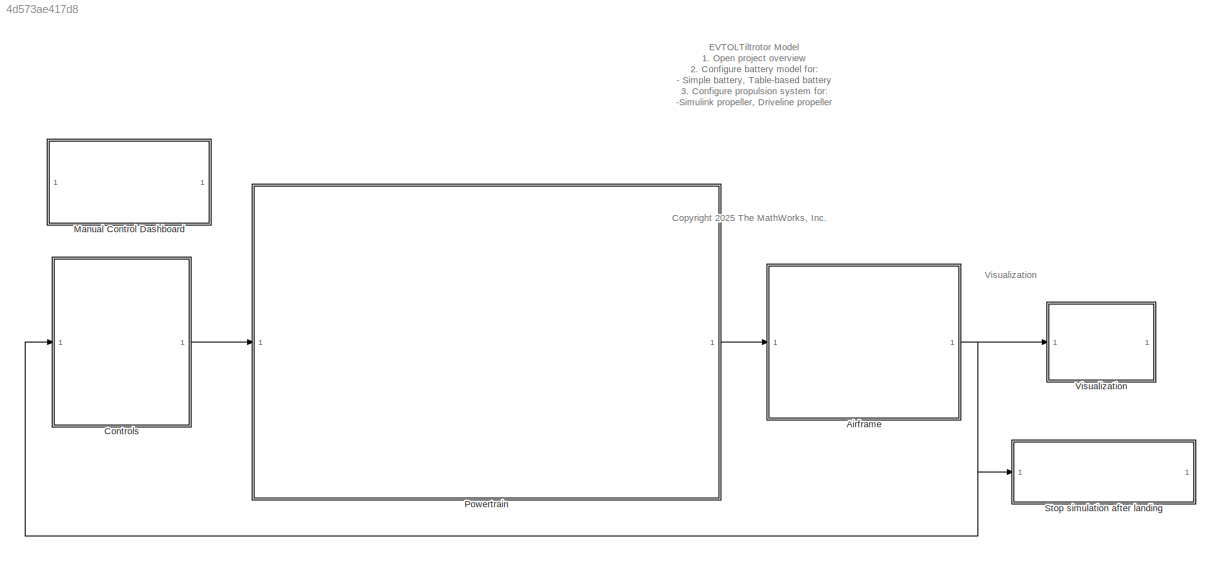
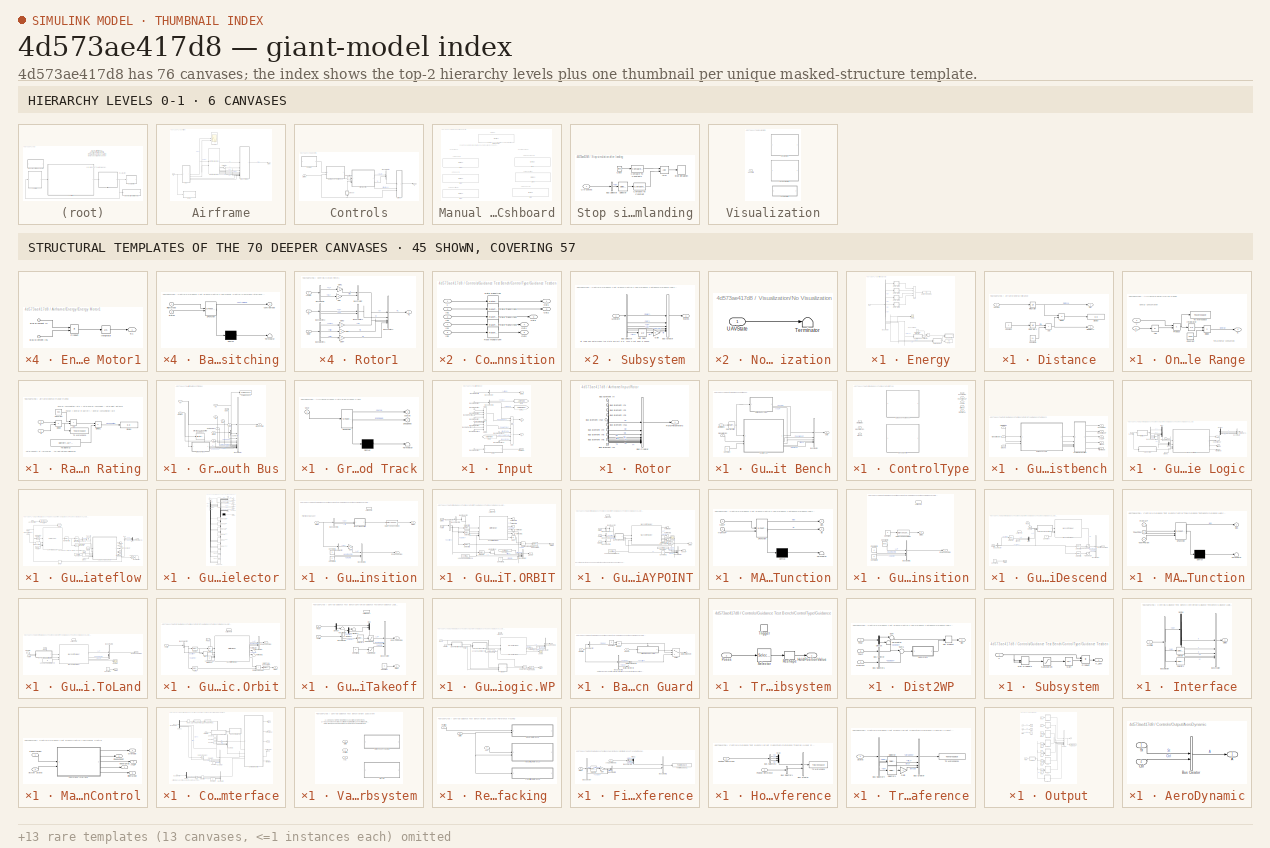
[diagram: thumbnail index - top-2 hierarchy levels (6 canvases) + 45 structural-template representatives of the remaining 70 canvases]
MODEL slx_4d573ae417d8
KIND model
CONFIG AbsTol = auto
CONFIG EnableMultiTasking = on
CONFIG FixedStep = 0.02
CONFIG MaxStep = auto
CONFIG MinStep = auto
CONFIG RelTol = 1e-3
CONFIG SampleTimeConstraint = Unconstrained
CONFIG SolverName = FixedStepAuto
CONFIG StartTime = 0.0
CONFIG StopTime = 200
BLOCK [SubSystem] Airframe
BLOCK [Reference] Airframe/6DOF (Euler Angles)  REF=shared6dof/6DOF (Euler Angles)
  LibrarySourceBlock = aerolib6dof2/6DOF (Euler Angles)
  SourceBlock = shared6dof/6DOF (Euler Angles)
  SourceType = 6DOF EoM (Body Axis)
BLOCK [SubSystem] Airframe/Energy
BLOCK [Sum] Airframe/Energy/Add
  IconShape = rectangular
  Inputs = ++++
BLOCK [Sum] Airframe/Energy/Add1
  IconShape = rectangular
BLOCK [BusSelector] Airframe/Energy/Bus Selector
  OutputSignals = R1.Info,R2.Info,R3.Info,R4.Info,A.AirData.airspeed,Batt.Current,Batt.Volt
BLOCK [SubSystem] Airframe/Energy/Distance
BLOCK [Sum] Airframe/Energy/Distance/Add
  IconShape = rectangular
BLOCK [Constant] Airframe/Energy/Distance/Constant
BLOCK [Constant] Airframe/Energy/Distance/Constant1
  Value = 0.1
BLOCK [Display] Airframe/Energy/Distance/Display
  Decimation = 1
BLOCK [Outport] Airframe/Energy/Distance/Dist
BLOCK [Product] Airframe/Energy/Distance/Divide
  Inputs = */
BLOCK [Integrator] Airframe/Energy/Distance/Integrator
BLOCK [Integrator] Airframe/Energy/Distance/Integrator1
BLOCK [Outport] Airframe/Energy/Distance/SimTime(s)
  Port = 2
BLOCK [Inport] Airframe/Energy/Distance/VehSpd
BLOCK [Display] Airframe/Energy/Energy
  Decimation = 1
BLOCK [Display] Airframe/Energy/Energy Consumed
  Decimation = 1
BLOCK [SubSystem] Airframe/Energy/Energy Motor1
BLOCK [Inport] Airframe/Energy/Energy Motor1/Bus Element In
BLOCK [Inport] Airframe/Energy/Energy Motor1/Bus Element In1
BLOCK [Outport] Airframe/Energy/Energy Motor1/E1
BLOCK [Integrator] Airframe/Energy/Energy Motor1/Integrator
BLOCK [Product] Airframe/Energy/Energy Motor1/Product
BLOCK [SubSystem] Airframe/Energy/Energy Motor2
BLOCK [Inport] Airframe/Energy/Energy Motor2/Bus Element In
BLOCK [Inport] Airframe/Energy/Energy Motor2/Bus Element In1
BLOCK [Outport] Airframe/Energy/Energy Motor2/E2
BLOCK [Integrator] Airframe/Energy/Energy Motor2/Integrator
BLOCK [Product] Airframe/Energy/Energy Motor2/Product
BLOCK [SubSystem] Airframe/Energy/Energy Motor3
BLOCK [Inport] Airframe/Energy/Energy Motor3/Bus Element In
BLOCK [Inport] Airframe/Energy/Energy Motor3/Bus Element In1
BLOCK [Outport] Airframe/Energy/Energy Motor3/E3
BLOCK [Integrator] Airframe/Energy/Energy Motor3/Integrator
BLOCK [Product] Airframe/Energy/Energy Motor3/Product
BLOCK [SubSystem] Airframe/Energy/Energy Motor4
BLOCK [Inport] Airframe/Energy/Energy Motor4/Bus Element In
BLOCK [Inport] Airframe/Energy/Energy Motor4/Bus Element In1
BLOCK [Outport] Airframe/Energy/Energy Motor4/E4
BLOCK [Integrator] Airframe/Energy/Energy Motor4/Integrator
BLOCK [Product] Airframe/Energy/Energy Motor4/Product
BLOCK [SubSystem] Airframe/Energy/Online Range
BLOCK [Abs] Airframe/Energy/Online Range/Abs
  SaturateOnIntegerOverflow = off
BLOCK [Constant] Airframe/Energy/Online Range/Constant
  Value = 3600
BLOCK [Product] Airframe/Energy/Online Range/Divide
  Inputs = */
BLOCK [Outport] Airframe/Energy/Online Range/E
BLOCK [Inport] Airframe/Energy/Online Range/I
BLOCK [Integrator] Airframe/Energy/Online Range/Integrator
BLOCK [Product] Airframe/Energy/Online Range/Product
BLOCK [ToWorkspace] Airframe/Energy/Online Range/To Workspace
  FixptAsFi = on
  MaxDataPoints = inf
  SampleTime = -1
  SaveFormat = Timeseries
  VariableName = elecPower
BLOCK [Inport] Airframe/Energy/Online Range/V
  Port = 2
BLOCK [SubSystem] Airframe/Energy/Range Rating
BLOCK [Sum] Airframe/Energy/Range Rating/Add
  IconShape = rectangular
BLOCK [Constant] Airframe/Energy/Range Rating/Constant
  Value = eps
BLOCK [Display] Airframe/Energy/Range Rating/Display
  Decimation = 1
BLOCK [Product] Airframe/Energy/Range Rating/Divide
  Inputs = */
BLOCK [Product] Airframe/Energy/Range Rating/Divide1
  Inputs = /*
BLOCK [Inport] Airframe/Energy/Range Rating/E
  Port = 2
BLOCK [ToWorkspace] Airframe/Energy/Range Rating/To Workspace
  FixptAsFi = on
  MaxDataPoints = inf
  SampleTime = -1
  SaveFormat = Timeseries
  VariableName = EnergyMileage
BLOCK [Constant] Airframe/Energy/Range Rating/TotalEnergy
  Value = battery.AH*battery.Np
BLOCK [Inport] Airframe/Energy/Range Rating/d
BLOCK [Scope] Airframe/Energy/Scope
  Floating = off
  NumInputPorts = 2
  ScopeSpecificationString = Simulink.scopes.TimeScopeBlockCfg('CurrentConfiguration', extmgr.ConfigurationSet(extmgr.Configuration('Core','General UI',true),extmgr.Configuration('Core','Source UI',true),extmgr.Configuration('Sources','WiredSimulink',true,'DataLoggingVariableName','ScopeData2'),extmgr.Configuration('Visuals','Time Domain',true,'SerializedDisplays',{struct('MinYLimReal','-388.82399','MaxYLimReal','1399.01759',...<+2279ch>
BLOCK [Terminator] Airframe/Energy/Terminator
BLOCK [Constant] Airframe/Energy/Zero division protection
  Value = 0.01
BLOCK [Inport] Airframe/Energy/s
BLOCK [SubSystem] Airframe/Ground Truth Bus
BLOCK [Inport] Airframe/Ground Truth Bus/Abb
  Port = 7
BLOCK [Inport] Airframe/Ground Truth Bus/Abe
  Port = 8
BLOCK [Inport] Airframe/Ground Truth Bus/AirData
  Port = 10
BLOCK [BusCreator] Airframe/Ground Truth Bus/Bus Creator
  DisplayOption = bar
  InheritFromInputs = on
  Inputs = 13
BLOCK [BusSelector] Airframe/Ground Truth Bus/Bus Selector
  OutputSignals = airspeed
BLOCK [Inport] Airframe/Ground Truth Bus/DCMbe
  Port = 4
BLOCK [Reference] Airframe/Ground Truth Bus/Direction Cosine Matrix to Quaternions  REF=sharedtransform/Direction Cosine Matrix 
to Quaternions
  LibrarySourceBlock = aerolibtransform2/Direction Cosine Matrix \nto Quaternions
  SourceBlock = sharedtransform/Direction Cosine Matrix \nto Quaternions
  SourceType = DCM2Quaternion
BLOCK [Inport] Airframe/Ground Truth Bus/Euler
  Port = 3
BLOCK [SubSystem] Airframe/Ground Truth Bus/Ground Track
  ErrorFcn = Stateflow.Translate.translate
  PermitHierarchicalResolution = ExplicitOnly
  SFBlockType = MATLAB Function
  TreatAsAtomicUnit = on
BLOCK [Demux] Airframe/Ground Truth Bus/Ground Track/ Demux 
  Outputs = 1
BLOCK [S-Function] Airframe/Ground Truth Bus/Ground Track/ SFunction 
  EnableBusSupport = on
  FunctionName = sf_sfun
  PortCounts = [1 3]
  SFcnIsStateOwnerBlock = off
  SFunctionDeploymentMode = off
  Tag = Stateflow S-Function 1
BLOCK [Terminator] Airframe/Ground Truth Bus/Ground Track/ Terminator 
BLOCK [Outport] Airframe/Ground Truth Bus/Ground Track/course
BLOCK [Outport] Airframe/Ground Truth Bus/Ground Track/gndSpeed
  Port = 2
BLOCK [Inport] Airframe/Ground Truth Bus/Ground Track/vxyz
BLOCK [Outport] Airframe/Ground Truth Bus/Ground Truth
BLOCK [Inport] Airframe/Ground Truth Bus/RotorParams
  Port = 9
BLOCK [ToWorkspace] Airframe/Ground Truth Bus/To Workspace
  FixptAsFi = on
  MaxDataPoints = inf
  SampleTime = -1
  SaveFormat = Timeseries
  VariableName = PositionPlotData
BLOCK [Inport] Airframe/Ground Truth Bus/Vb
  Port = 5
BLOCK [Inport] Airframe/Ground Truth Bus/Ve
BLOCK [Inport] Airframe/Ground Truth Bus/Xe
  Port = 2
BLOCK [Inport] Airframe/Ground Truth Bus/pqr
  Port = 6
BLOCK [SubSystem] Airframe/Input
BLOCK [Sum] Airframe/Input/Add
  IconShape = rectangular
  Inputs = ++++
BLOCK [Sum] Airframe/Input/Add1
  IconShape = rectangular
BLOCK [Sum] Airframe/Input/Add2
  IconShape = rectangular
  Inputs = ++++
BLOCK [Sum] Airframe/Input/Add3
  IconShape = rectangular
  Inputs = ++++
BLOCK [Outport] Airframe/Input/AirData
  Port = 4
BLOCK [Inport] Airframe/Input/Bus Element In
BLOCK [Inport] Airframe/Input/Bus Element In1
BLOCK [Inport] Airframe/Input/Bus Element In10
BLOCK [Inport] Airframe/Input/Bus Element In11
BLOCK [Inport] Airframe/Input/Bus Element In12
BLOCK [Inport] Airframe/Input/Bus Element In13
BLOCK [Inport] Airframe/Input/Bus Element In2
BLOCK [Inport] Airframe/Input/Bus Element In4
BLOCK [Inport] Airframe/Input/Bus Element In5
BLOCK [Inport] Airframe/Input/Bus Element In6
BLOCK [Inport] Airframe/Input/Bus Element In7
BLOCK [Inport] Airframe/Input/Bus Element In8
BLOCK [Inport] Airframe/Input/Bus Element In9
BLOCK [BusSelector] Airframe/Input/Bus Selector
  OutputSignals = AirData
BLOCK [BusSelector] Airframe/Input/Bus Selector1
  OutputSignals = Force,Moment
BLOCK [Outport] Airframe/Input/F
BLOCK [From] Airframe/Input/From
  GotoTag = AeroForce
BLOCK [Goto] Airframe/Input/Goto
  GotoTag = AeroForce
BLOCK [Goto] Airframe/Input/Goto1
  GotoTag = AeroMoment
BLOCK [Outport] Airframe/Input/M
  Port = 2
BLOCK [SubSystem] Airframe/Input/Rotor
BLOCK [BusCreator] Airframe/Input/Rotor/Bus Creator
  DisplayOption = bar
  InheritFromInputs = on
  Inputs = 10
BLOCK [Inport] Airframe/Input/Rotor/Bus Element In
BLOCK [Inport] Airframe/Input/Rotor/Bus Element In1
BLOCK [Inport] Airframe/Input/Rotor/Bus Element In10
BLOCK [Inport] Airframe/Input/Rotor/Bus Element In11
BLOCK [Inport] Airframe/Input/Rotor/Bus Element In2
BLOCK [Inport] Airframe/Input/Rotor/Bus Element In3
BLOCK [Inport] Airframe/Input/Rotor/Bus Element In4
BLOCK [Inport] Airframe/Input/Rotor/Bus Element In5
BLOCK [Inport] Airframe/Input/Rotor/Bus Element In6
BLOCK [Inport] Airframe/Input/Rotor/Bus Element In7
BLOCK [Outport] Airframe/Input/Rotor/RotorParameters
BLOCK [Outport] Airframe/Input/RotorPar
  Port = 3
BLOCK [Inport] Airframe/M
BLOCK [Scope] Airframe/Scope
  Floating = off
  NumInputPorts = 2
  ScopeSpecificationString = Simulink.scopes.TimeScopeBlockCfg('CurrentConfiguration', extmgr.ConfigurationSet(extmgr.Configuration('Core','General UI',true),extmgr.Configuration('Core','Source UI',true),extmgr.Configuration('Sources','WiredSimulink',true,'DataLoggingVariableName','ScopeData1'),extmgr.Configuration('Visuals','Time Domain',true,'SerializedDisplays',{struct('MinYLimReal','-93.58648','MaxYLimReal','195.62422','Y...<+2288ch>
BLOCK [Outport] Airframe/States
BLOCK [Terminator] Airframe/Terminator
BLOCK [SubSystem] Controls
BLOCK [BusCreator] Controls/Bus Creator
  DisplayOption = bar
  InheritFromInputs = on
  Inputs = 2
BLOCK [Constant] Controls/Constant1
BLOCK [SubSystem] Controls/Flight Control
  PortSchema = {"entries":[{"content":{"sides":[{"content":{"connectorIds":["In1","In3","In2"]},"type":"ConnectorPlacement.EquallySpacedRectSide","uuid":"16133643-a271-41ca-af0b-35692e75911e"},{"content":{"connectorIds":["Out1","Out3","Out2"],"side":"RIGHT"},"type":"ConnectorPlacement.EquallySpacedRectSide","uuid":"71f512ce-dc43-4a94-9ca9-7a68bb7e8691"},{"content":{"side":"TOP"},"type":"ConnectorPlacement.Equall...<+248ch>
  ReferencedSubsystem = FlightControl
BLOCK [SubSystem] Controls/Guidance Test Bench
BLOCK [Inport] Controls/Guidance Test Bench/Aircraft States
  Port = 2
BLOCK [BusCreator] Controls/Guidance Test Bench/Bus Creator
  DisplayOption = bar
  InheritFromInputs = on
  Inputs = 5
BLOCK [Outport] Controls/Guidance Test Bench/Cmd
BLOCK [Constant] Controls/Guidance Test Bench/Constant
  Value = 0
BLOCK [SubSystem] Controls/Guidance Test Bench/ControlType
  Variant = on
  VariantControl = Choice
BLOCK [Outport] Controls/Guidance Test Bench/ControlType/AACSP
  Port = 3
BLOCK [Inport] Controls/Guidance Test Bench/ControlType/Aircraft States
BLOCK [Outport] Controls/Guidance Test Bench/ControlType/FixedWingSP
  Port = 2
BLOCK [Outport] Controls/Guidance Test Bench/ControlType/FlightMode
  Port = 5
BLOCK [Inport] Controls/Guidance Test Bench/ControlType/Global Mission
  Port = 2
BLOCK [Inport] Controls/Guidance Test Bench/ControlType/Ground
  Port = 3
BLOCK [SubSystem] Controls/Guidance Test Bench/ControlType/Guidance Testbench
  TreatAsAtomicUnit = on
  VariantControl = TestMode==1
BLOCK [Outport] Controls/Guidance Test Bench/ControlType/Guidance Testbench/AACSP
  Port = 3
BLOCK [Inport] Controls/Guidance Test Bench/ControlType/Guidance Testbench/Aircraft States
  Port = 2
BLOCK [SubSystem] Controls/Guidance Test Bench/ControlType/Guidance Testbench/Control Rate Transition
BLOCK [Inport] Controls/Guidance Test Bench/ControlType/Guidance Testbench/Control Rate Transition/1 
BLOCK [Inport] Controls/Guidance Test Bench/ControlType/Guidance Testbench/Control Rate Transition/In2
  Port = 2
BLOCK [Inport] Controls/Guidance Test Bench/ControlType/Guidance Testbench/Control Rate Transition/In3
  Port = 3
BLOCK [Inport] Controls/Guidance Test Bench/ControlType/Guidance Testbench/Control Rate Transition/In4
  Port = 4
BLOCK [Inport] Controls/Guidance Test Bench/ControlType/Guidance Testbench/Control Rate Transition/In5
  Port = 5
BLOCK [Outport] Controls/Guidance Test Bench/ControlType/Guidance Testbench/Control Rate Transition/Out1
BLOCK [Outport] Controls/Guidance Test Bench/ControlType/Guidance Testbench/Control Rate Transition/Out2
  Port = 2
BLOCK [Outport] Controls/Guidance Test Bench/ControlType/Guidance Testbench/Control Rate Transition/Out3
  Port = 3
BLOCK [Outport] Controls/Guidance Test Bench/ControlType/Guidance Testbench/Control Rate Transition/Out4
  Port = 4
BLOCK [Outport] Controls/Guidance Test Bench/ControlType/Guidance Testbench/Control Rate Transition/Out5
  Port = 5
BLOCK [RateTransition] Controls/Guidance Test Bench/ControlType/Guidance Testbench/Control Rate Transition/Rate Transition
  OutPortSampleTime = ControlSampleTime
BLOCK [RateTransition] Controls/Guidance Test Bench/ControlType/Guidance Testbench/Control Rate Transition/Rate Transition1
  OutPortSampleTime = ControlSampleTime
BLOCK [RateTransition] Controls/Guidance Test Bench/ControlType/Guidance Testbench/Control Rate Transition/Rate Transition2
  OutPortSampleTime = ControlSampleTime
BLOCK [RateTransition] Controls/Guidance Test Bench/ControlType/Guidance Testbench/Control Rate Transition/Rate Transition3
  OutPortSampleTime = ControlSampleTime
BLOCK [RateTransition] Controls/Guidance Test Bench/ControlType/Guidance Testbench/Control Rate Transition/Rate Transition4
  InitialCondition = flightState.Hover
  OutPortSampleTime = ControlSampleTime
BLOCK [Outport] Controls/Guidance Test Bench/ControlType/Guidance Testbench/FixedWingSP
  Port = 2
BLOCK [Outport] Controls/Guidance Test Bench/ControlType/Guidance Testbench/FlightMode
  Port = 5
BLOCK [Inport] Controls/Guidance Test Bench/ControlType/Guidance Testbench/Global Mission
BLOCK [Inport] Controls/Guidance Test Bench/ControlType/Guidance Testbench/Ground
  Port = 3
BLOCK [SubSystem] Controls/Guidance Test Bench/ControlType/Guidance Testbench/Guidance Logic
  VariantControl = guidanceType==1
BLOCK [Outport] Controls/Guidance Test Bench/ControlType/Guidance Testbench/Guidance Logic/AACSP
  Port = 3
BLOCK [Trigonometry] Controls/Guidance Test Bench/ControlType/Guidance Testbench/Guidance Logic/Atan2
  Operator = atan2
BLOCK [BusCreator] Controls/Guidance Test Bench/ControlType/Guidance Testbench/Guidance Logic/Bus Creator
  DisplayOption = bar
  InheritFromInputs = on
  Inputs = 4
BLOCK [BusSelector] Controls/Guidance Test Bench/ControlType/Guidance Testbench/Guidance Logic/Bus Selector1
  NameLocation = top
  OutputSignals = x,y,z,vy,vx
BLOCK [Demux] Controls/Guidance Test Bench/ControlType/Guidance Testbench/Guidance Logic/Demux
BLOCK [Outport] Controls/Guidance Test Bench/ControlType/Guidance Testbench/Guidance Logic/FixedWingSP
  Port = 2
BLOCK [Outport] Controls/Guidance Test Bench/ControlType/Guidance Testbench/Guidance Logic/FlightMode
  Port = 5
BLOCK [Inport] Controls/Guidance Test Bench/ControlType/Guidance Testbench/Guidance Logic/GCSCommands
  Port = 2
BLOCK [Inport] Controls/Guidance Test Bench/ControlType/Guidance Testbench/Guidance Logic/Ground
  Port = 3
BLOCK [SubSystem] Controls/Guidance Test Bench/ControlType/Guidance Testbench/Guidance Logic/Guidance Stateflow
BLOCK [Outport] Controls/Guidance Test Bench/ControlType/Guidance Testbench/Guidance Logic/Guidance Stateflow/AACSP
  Port = 2
BLOCK [BusSelector] Controls/Guidance Test Bench/ControlType/Guidance Testbench/Guidance Logic/Guidance Stateflow/Bus 
  OutputSignals = LAP,YawCmd
BLOCK [BusSelector] Controls/Guidance Test Bench/ControlType/Guidance Testbench/Guidance Logic/Guidance Stateflow/Bus Selector
  OutputSignals = mode
BLOCK [Reference] Controls/Guidance Test Bench/ControlType/Guidance Testbench/Guidance Logic/Guidance Stateflow/Compare To Constant  REF=simulink/Logic and Bit
Operations/Compare
To Constant
  SourceBlock = simulink/Logic and Bit\nOperations/Compare\nTo Constant
  SourceType = Compare To Constant
BLOCK [Constant] Controls/Guidance Test Bench/ControlType/Guidance Testbench/Guidance Logic/Guidance Stateflow/Constant
  Value = FSState
BLOCK [Delay] Controls/Guidance Test Bench/ControlType/Guidance Testbench/Guidance Logic/Guidance Stateflow/Delay
  DelayLength = 1
  InitialCondition = 0
  InputPortMap = u0
BLOCK [Outport] Controls/Guidance Test Bench/ControlType/Guidance Testbench/Guidance Logic/Guidance Stateflow/FixedWingSP
  Port = 3
BLOCK [Outport] Controls/Guidance Test Bench/ControlType/Guidance Testbench/Guidance Logic/Guidance Stateflow/FlightMode
  Port = 5
BLOCK [From] Controls/Guidance Test Bench/ControlType/Guidance Testbench/Guidance Logic/Guidance Stateflow/From
  GotoTag = pose
BLOCK [Inport] Controls/Guidance Test Bench/ControlType/Guidance Testbench/Guidance Logic/Guidance Stateflow/GCSCommands
  Port = 2
BLOCK [Goto] Controls/Guidance Test Bench/ControlType/Guidance Testbench/Guidance Logic/Guidance Stateflow/Goto
  GotoTag = landingState
BLOCK [Goto] Controls/Guidance Test Bench/ControlType/Guidance Testbench/Guidance Logic/Guidance Stateflow/Goto5
  GotoTag = pose
BLOCK [Inport] Controls/Guidance Test Bench/ControlType/Guidance Testbench/Guidance Logic/Guidance Stateflow/Ground
  Port = 5
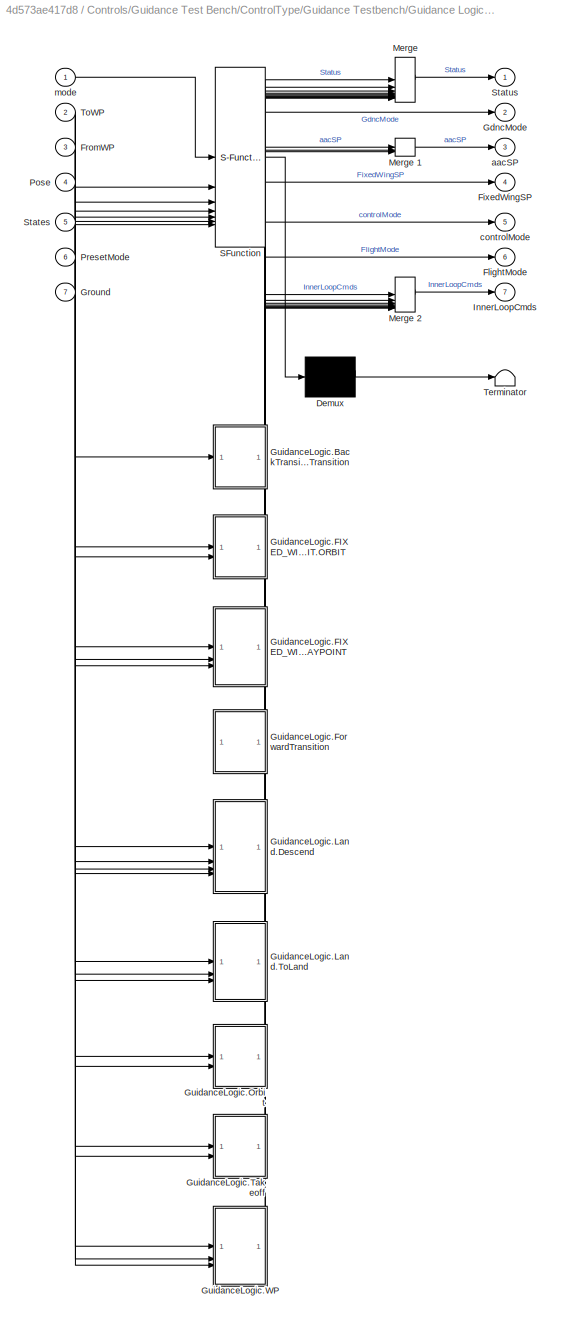
BLOCK [SubSystem] Controls/Guidance Test Bench/ControlType/Guidance Testbench/Guidance Logic/Guidance Stateflow/Guidance Mode Selector
  ErrorFcn = Stateflow.Translate.translate
  PermitHierarchicalResolution = ExplicitOnly
  PortSchema = {"entries":[{"content":{"sides":[{"content":{"connectorIds":["In1","In2","In3","In4","In5","In6","In7"]},"type":"ConnectorPlacement.EquallySpacedRectSide","uuid":"a9cfd0e2-196c-422d-b359-9161a47768c9"},{"content":{"connectorIds":["Out7","Out2","Out3","Out4","Out5","Out6","Out1"],"side":"RIGHT"},"type":"ConnectorPlacement.EquallySpacedRectSide","uuid":"4fed41ae-e7cf-4de3-8bdb-9e24e7d8b079"},{"conte...<+300ch>
  SFBlockType = Chart
  SystemSampleTime = 0.02
  TreatAsAtomicUnit = on
BLOCK [Demux] Controls/Guidance Test Bench/ControlType/Guidance Testbench/Guidance Logic/Guidance Stateflow/Guidance Mode Selector/ Demux 
  Outputs = 1
BLOCK [Merge] Controls/Guidance Test Bench/ControlType/Guidance Testbench/Guidance Logic/Guidance Stateflow/Guidance Mode Selector/ Merge 
  Inputs = 10
BLOCK [Merge] Controls/Guidance Test Bench/ControlType/Guidance Testbench/Guidance Logic/Guidance Stateflow/Guidance Mode Selector/ Merge 1
  Inputs = 3
BLOCK [Merge] Controls/Guidance Test Bench/ControlType/Guidance Testbench/Guidance Logic/Guidance Stateflow/Guidance Mode Selector/ Merge 2
  Inputs = 8
BLOCK [S-Function] Controls/Guidance Test Bench/ControlType/Guidance Testbench/Guidance Logic/Guidance Stateflow/Guidance Mode Selector/ SFunction 
  EnableBusSupport = on
  FunctionName = sf_sfun
  Parameters = Vt,zGround
  PortCounts = [7 8]
  SFcnIsStateOwnerBlock = off
  SFunctionDeploymentMode = off
  Tag = Stateflow S-Function 5
BLOCK [Terminator] Controls/Guidance Test Bench/ControlType/Guidance Testbench/Guidance Logic/Guidance Stateflow/Guidance Mode Selector/ Terminator 
BLOCK [Outport] Controls/Guidance Test Bench/ControlType/Guidance Testbench/Guidance Logic/Guidance Stateflow/Guidance Mode Selector/FixedWingSP
  Port = 4
BLOCK [Outport] Controls/Guidance Test Bench/ControlType/Guidance Testbench/Guidance Logic/Guidance Stateflow/Guidance Mode Selector/FlightMode
  Port = 6
BLOCK [Inport] Controls/Guidance Test Bench/ControlType/Guidance Testbench/Guidance Logic/Guidance Stateflow/Guidance Mode Selector/FromWP
  Port = 3
BLOCK [Outport] Controls/Guidance Test Bench/ControlType/Guidance Testbench/Guidance Logic/Guidance Stateflow/Guidance Mode Selector/GdncMode
  Port = 2
BLOCK [Inport] Controls/Guidance Test Bench/ControlType/Guidance Testbench/Guidance Logic/Guidance Stateflow/Guidance Mode Selector/Ground
  Port = 7
BLOCK [SubSystem] Controls/Guidance Test Bench/ControlType/Guidance Testbench/Guidance Logic/Guidance Stateflow/Guidance Mode Selector/GuidanceLogic.BackTransition.BackTransition
  PreDeleteFcn = Stateflow.SLINSF.SimulinkMan.removePreDeleteFcn
  UndoDeleteFcn = Stateflow.SLINSF.SimulinkMan.restorePreDeleteFcn
BLOCK [ActionPort] Controls/Guidance Test Bench/ControlType/Guidance Testbench/Guidance Logic/Guidance Stateflow/Guidance Mode Selector/GuidanceLogic.BackTransition.BackTransition/Action Port
  CopyFcn = Stateflow.SLINSF.SimulinkMan.removeBlockPreDeleteFcn
  PreDeleteFcn = Stateflow.SLINSF.SimulinkMan.unsafePredeleteFcn
BLOCK [BusCreator] Controls/Guidance Test Bench/ControlType/Guidance Testbench/Guidance Logic/Guidance Stateflow/Guidance Mode Selector/GuidanceLogic.BackTransition.BackTransition/Bus Creator1
  DisplayOption = bar
  InheritFromInputs = on
  Inputs = 3
  NonVirtualBus = on
  OutDataTypeStr = Bus: innerLoopCmdsBus
BLOCK [BusSelector] Controls/Guidance Test Bench/ControlType/Guidance Testbench/Guidance Logic/Guidance Stateflow/Guidance Mode Selector/GuidanceLogic.BackTransition.BackTransition/Bus Selector
  OutputSignals = Xe
BLOCK [BusSelector] Controls/Guidance Test Bench/ControlType/Guidance Testbench/Guidance Logic/Guidance Stateflow/Guidance Mode Selector/GuidanceLogic.BackTransition.BackTransition/Bus Selector1
  OutputSignals = Ve,Tilt
BLOCK [Constant] Controls/Guidance Test Bench/ControlType/Guidance Testbench/Guidance Logic/Guidance Stateflow/Guidance Mode Selector/GuidanceLogic.BackTransition.BackTransition/Constant1
  Value = 0
BLOCK [Constant] Controls/Guidance Test Bench/ControlType/Guidance Testbench/Guidance Logic/Guidance Stateflow/Guidance Mode Selector/GuidanceLogic.BackTransition.BackTransition/Constant2
  Value = 0
BLOCK [DataTypeConversion] Controls/Guidance Test Bench/ControlType/Guidance Testbench/Guidance Logic/Guidance Stateflow/Guidance Mode Selector/GuidanceLogic.BackTransition.BackTransition/Data Type Conversion
  OutDataTypeStr = uint8
  RndMeth = Floor
  SaturateOnIntegerOverflow = off
BLOCK [Gain] Controls/Guidance Test Bench/ControlType/Guidance Testbench/Guidance Logic/Guidance Stateflow/Guidance Mode Selector/GuidanceLogic.BackTransition.BackTransition/Gain
BLOCK [Outport] Controls/Guidance Test Bench/ControlType/Guidance Testbench/Guidance Logic/Guidance Stateflow/Guidance Mode Selector/GuidanceLogic.BackTransition.BackTransition/InnerLoopCmds
  OutDataTypeStr = Bus: innerLoopCmdsBus
  Port = 2
BLOCK [SubSystem] Controls/Guidance Test Bench/ControlType/Guidance Testbench/Guidance Logic/Guidance Stateflow/Guidance Mode Selector/GuidanceLogic.BackTransition.BackTransition/MATLAB Function
  ErrorFcn = Stateflow.Translate.translate
  LibrarySourceBlock = simulink/User-Defined\nFunctions/MATLAB Function
  PermitHierarchicalResolution = ExplicitOnly
  SFBlockType = MATLAB Function
  TreatAsAtomicUnit = on
BLOCK [Demux] Controls/Guidance Test Bench/ControlType/Guidance Testbench/Guidance Logic/Guidance Stateflow/Guidance Mode Selector/GuidanceLogic.BackTransition.BackTransition/MATLAB Function/ Demux 
  Outputs = 1
BLOCK [S-Function] Controls/Guidance Test Bench/ControlType/Guidance Testbench/Guidance Logic/Guidance Stateflow/Guidance Mode Selector/GuidanceLogic.BackTransition.BackTransition/MATLAB Function/ SFunction 
  EnableBusSupport = on
  FunctionName = sf_sfun
  PortCounts = [2 2]
  SFcnIsStateOwnerBlock = off
  SFunctionDeploymentMode = off
  Tag = Stateflow S-Function 7
BLOCK [Terminator] Controls/Guidance Test Bench/ControlType/Guidance Testbench/Guidance Logic/Guidance Stateflow/Guidance Mode Selector/GuidanceLogic.BackTransition.BackTransition/MATLAB Function/ Terminator 
BLOCK [Inport] Controls/Guidance Test Bench/ControlType/Guidance Testbench/Guidance Logic/Guidance Stateflow/Guidance Mode Selector/GuidanceLogic.BackTransition.BackTransition/MATLAB Function/Vb
BLOCK [Outport] Controls/Guidance Test Bench/ControlType/Guidance Testbench/Guidance Logic/Guidance Stateflow/Guidance Mode Selector/GuidanceLogic.BackTransition.BackTransition/MATLAB Function/flag
BLOCK [Inport] Controls/Guidance Test Bench/ControlType/Guidance Testbench/Guidance Logic/Guidance Stateflow/Guidance Mode Selector/GuidanceLogic.BackTransition.BackTransition/MATLAB Function/tilt
  Port = 2
BLOCK [Inport] Controls/Guidance Test Bench/ControlType/Guidance Testbench/Guidance Logic/Guidance Stateflow/Guidance Mode Selector/GuidanceLogic.BackTransition.BackTransition/States
BLOCK [Outport] Controls/Guidance Test Bench/ControlType/Guidance Testbench/Guidance Logic/Guidance Stateflow/Guidance Mode Selector/GuidanceLogic.BackTransition.BackTransition/Status
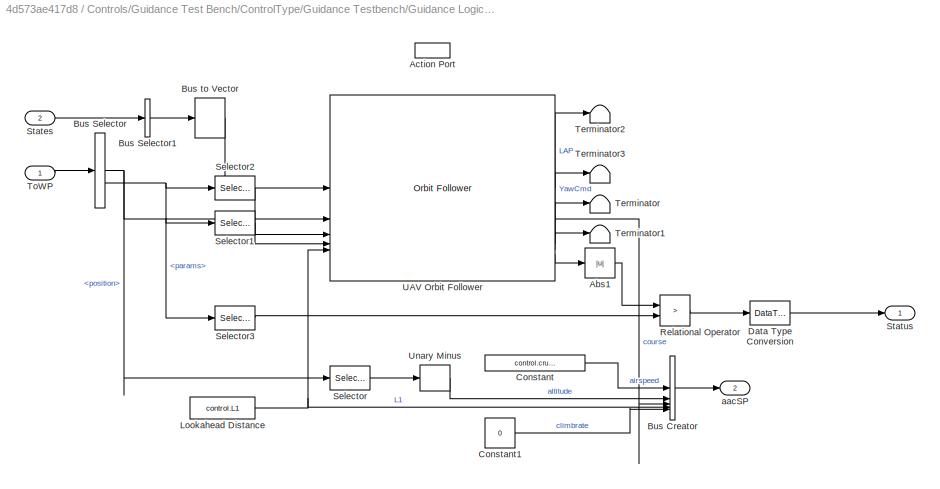
BLOCK [SubSystem] Controls/Guidance Test Bench/ControlType/Guidance Testbench/Guidance Logic/Guidance Stateflow/Guidance Mode Selector/GuidanceLogic.FIXED_WING_ORBIT.ORBIT
  PreDeleteFcn = Stateflow.SLINSF.SimulinkMan.removePreDeleteFcn
  UndoDeleteFcn = Stateflow.SLINSF.SimulinkMan.restorePreDeleteFcn
BLOCK [Abs] Controls/Guidance Test Bench/ControlType/Guidance Testbench/Guidance Logic/Guidance Stateflow/Guidance Mode Selector/GuidanceLogic.FIXED_WING_ORBIT.ORBIT/Abs1
  SaturateOnIntegerOverflow = off
BLOCK [ActionPort] Controls/Guidance Test Bench/ControlType/Guidance Testbench/Guidance Logic/Guidance Stateflow/Guidance Mode Selector/GuidanceLogic.FIXED_WING_ORBIT.ORBIT/Action Port
  CopyFcn = Stateflow.SLINSF.SimulinkMan.removeBlockPreDeleteFcn
  PreDeleteFcn = Stateflow.SLINSF.SimulinkMan.unsafePredeleteFcn
BLOCK [BusCreator] Controls/Guidance Test Bench/ControlType/Guidance Testbench/Guidance Logic/Guidance Stateflow/Guidance Mode Selector/GuidanceLogic.FIXED_WING_ORBIT.ORBIT/Bus Creator
  DisplayOption = bar
  InheritFromInputs = off
  Inputs = 5
  NonVirtualBus = on
  OutDataTypeStr = Bus: AAC
BLOCK [BusSelector] Controls/Guidance Test Bench/ControlType/Guidance Testbench/Guidance Logic/Guidance Stateflow/Guidance Mode Selector/GuidanceLogic.FIXED_WING_ORBIT.ORBIT/Bus Selector
  OutputSignals = position,params
BLOCK [BusSelector] Controls/Guidance Test Bench/ControlType/Guidance Testbench/Guidance Logic/Guidance Stateflow/Guidance Mode Selector/GuidanceLogic.FIXED_WING_ORBIT.ORBIT/Bus Selector1
  OutputAsBus = on
  OutputSignals = Xe,course
BLOCK [BusToVector] Controls/Guidance Test Bench/ControlType/Guidance Testbench/Guidance Logic/Guidance Stateflow/Guidance Mode Selector/GuidanceLogic.FIXED_WING_ORBIT.ORBIT/Bus to Vector
BLOCK [Constant] Controls/Guidance Test Bench/ControlType/Guidance Testbench/Guidance Logic/Guidance Stateflow/Guidance Mode Selector/GuidanceLogic.FIXED_WING_ORBIT.ORBIT/Constant
  Value = control.cruiseSpeed
BLOCK [Constant] Controls/Guidance Test Bench/ControlType/Guidance Testbench/Guidance Logic/Guidance Stateflow/Guidance Mode Selector/GuidanceLogic.FIXED_WING_ORBIT.ORBIT/Constant1
  Value = 0
BLOCK [DataTypeConversion] Controls/Guidance Test Bench/ControlType/Guidance Testbench/Guidance Logic/Guidance Stateflow/Guidance Mode Selector/GuidanceLogic.FIXED_WING_ORBIT.ORBIT/Data Type Conversion
  OutDataTypeStr = uint8
  RndMeth = Floor
  SaturateOnIntegerOverflow = off
BLOCK [Constant] Controls/Guidance Test Bench/ControlType/Guidance Testbench/Guidance Logic/Guidance Stateflow/Guidance Mode Selector/GuidanceLogic.FIXED_WING_ORBIT.ORBIT/Lookahead Distance
  OutDataTypeStr = double
  Value = control.L1
BLOCK [RelationalOperator] Controls/Guidance Test Bench/ControlType/Guidance Testbench/Guidance Logic/Guidance Stateflow/Guidance Mode Selector/GuidanceLogic.FIXED_WING_ORBIT.ORBIT/Relational Operator
  InputSameDT = off
  Operator = >
  OutDataTypeStr = boolean
  RndMeth = Simplest
BLOCK [Selector] Controls/Guidance Test Bench/ControlType/Guidance Testbench/Guidance Logic/Guidance Stateflow/Guidance Mode Selector/GuidanceLogic.FIXED_WING_ORBIT.ORBIT/Selector
  IndexOptions = Index vector (dialog)
  Indices = 3
  InputPortWidth = 3
  OutputSizes = 1
BLOCK [Selector] Controls/Guidance Test Bench/ControlType/Guidance Testbench/Guidance Logic/Guidance Stateflow/Guidance Mode Selector/GuidanceLogic.FIXED_WING_ORBIT.ORBIT/Selector1
  IndexOptions = Index vector (dialog)
  Indices = 2
  InputPortWidth = 4
  OutputSizes = 1
BLOCK [Selector] Controls/Guidance Test Bench/ControlType/Guidance Testbench/Guidance Logic/Guidance Stateflow/Guidance Mode Selector/GuidanceLogic.FIXED_WING_ORBIT.ORBIT/Selector2
  IndexOptions = Index vector (dialog)
  Indices = 1
  InputPortWidth = 4
  OutputSizes = 1
BLOCK [Selector] Controls/Guidance Test Bench/ControlType/Guidance Testbench/Guidance Logic/Guidance Stateflow/Guidance Mode Selector/GuidanceLogic.FIXED_WING_ORBIT.ORBIT/Selector3
  IndexOptions = Index vector (dialog)
  Indices = 3
  InputPortWidth = 4
  OutputSizes = 1
BLOCK [Inport] Controls/Guidance Test Bench/ControlType/Guidance Testbench/Guidance Logic/Guidance Stateflow/Guidance Mode Selector/GuidanceLogic.FIXED_WING_ORBIT.ORBIT/States
  Port = 2
BLOCK [Outport] Controls/Guidance Test Bench/ControlType/Guidance Testbench/Guidance Logic/Guidance Stateflow/Guidance Mode Selector/GuidanceLogic.FIXED_WING_ORBIT.ORBIT/Status
BLOCK [Terminator] Controls/Guidance Test Bench/ControlType/Guidance Testbench/Guidance Logic/Guidance Stateflow/Guidance Mode Selector/GuidanceLogic.FIXED_WING_ORBIT.ORBIT/Terminator
BLOCK [Terminator] Controls/Guidance Test Bench/ControlType/Guidance Testbench/Guidance Logic/Guidance Stateflow/Guidance Mode Selector/GuidanceLogic.FIXED_WING_ORBIT.ORBIT/Terminator1
BLOCK [Terminator] Controls/Guidance Test Bench/ControlType/Guidance Testbench/Guidance Logic/Guidance Stateflow/Guidance Mode Selector/GuidanceLogic.FIXED_WING_ORBIT.ORBIT/Terminator2
BLOCK [Terminator] Controls/Guidance Test Bench/ControlType/Guidance Testbench/Guidance Logic/Guidance Stateflow/Guidance Mode Selector/GuidanceLogic.FIXED_WING_ORBIT.ORBIT/Terminator3
BLOCK [Inport] Controls/Guidance Test Bench/ControlType/Guidance Testbench/Guidance Logic/Guidance Stateflow/Guidance Mode Selector/GuidanceLogic.FIXED_WING_ORBIT.ORBIT/ToWP
BLOCK [Reference] Controls/Guidance Test Bench/ControlType/Guidance Testbench/Guidance Logic/Guidance Stateflow/Guidance Mode Selector/GuidanceLogic.FIXED_WING_ORBIT.ORBIT/UAV Orbit Follower  REF=uavalgslib/Orbit Follower
  SourceBlock = uavalgslib/Orbit Follower
  SourceType = uav.sluav.internal.system.OrbitFollower
BLOCK [UnaryMinus] Controls/Guidance Test Bench/ControlType/Guidance Testbench/Guidance Logic/Guidance Stateflow/Guidance Mode Selector/GuidanceLogic.FIXED_WING_ORBIT.ORBIT/Unary Minus
BLOCK [Outport] Controls/Guidance Test Bench/ControlType/Guidance Testbench/Guidance Logic/Guidance Stateflow/Guidance Mode Selector/GuidanceLogic.FIXED_WING_ORBIT.ORBIT/aacSP
  Port = 2
BLOCK [SubSystem] Controls/Guidance Test Bench/ControlType/Guidance Testbench/Guidance Logic/Guidance Stateflow/Guidance Mode Selector/GuidanceLogic.FIXED_WING_WAYPOINT.WAYPOINT
  PreDeleteFcn = Stateflow.SLINSF.SimulinkMan.removePreDeleteFcn
  UndoDeleteFcn = Stateflow.SLINSF.SimulinkMan.restorePreDeleteFcn
BLOCK [ActionPort] Controls/Guidance Test Bench/ControlType/Guidance Testbench/Guidance Logic/Guidance Stateflow/Guidance Mode Selector/GuidanceLogic.FIXED_WING_WAYPOINT.WAYPOINT/Action Port
  CopyFcn = Stateflow.SLINSF.SimulinkMan.removeBlockPreDeleteFcn
  PreDeleteFcn = Stateflow.SLINSF.SimulinkMan.unsafePredeleteFcn
BLOCK [BusCreator] Controls/Guidance Test Bench/ControlType/Guidance Testbench/Guidance Logic/Guidance Stateflow/Guidance Mode Selector/GuidanceLogic.FIXED_WING_WAYPOINT.WAYPOINT/Bus Creator
  DisplayOption = bar
  InheritFromInputs = off
  Inputs = 5
  NonVirtualBus = on
  OutDataTypeStr = Bus: AAC
BLOCK [BusSelector] Controls/Guidance Test Bench/ControlType/Guidance Testbench/Guidance Logic/Guidance Stateflow/Guidance Mode Selector/GuidanceLogic.FIXED_WING_WAYPOINT.WAYPOINT/Bus Selector
  OutputAsBus = on
  OutputSignals = Xe,course
BLOCK [BusSelector] Controls/Guidance Test Bench/ControlType/Guidance Testbench/Guidance Logic/Guidance Stateflow/Guidance Mode Selector/GuidanceLogic.FIXED_WING_WAYPOINT.WAYPOINT/Bus Selector1
  OutputSignals = position
BLOCK [BusSelector] Controls/Guidance Test Bench/ControlType/Guidance Testbench/Guidance Logic/Guidance Stateflow/Guidance Mode Selector/GuidanceLogic.FIXED_WING_WAYPOINT.WAYPOINT/Bus Selector2
  OutputSignals = position
BLOCK [BusToVector] Controls/Guidance Test Bench/ControlType/Guidance Testbench/Guidance Logic/Guidance Stateflow/Guidance Mode Selector/GuidanceLogic.FIXED_WING_WAYPOINT.WAYPOINT/Bus to Vector
BLOCK [Constant] Controls/Guidance Test Bench/ControlType/Guidance Testbench/Guidance Logic/Guidance Stateflow/Guidance Mode Selector/GuidanceLogic.FIXED_WING_WAYPOINT.WAYPOINT/Constant
  Value = control.cruiseSpeed
BLOCK [Constant] Controls/Guidance Test Bench/ControlType/Guidance Testbench/Guidance Logic/Guidance Stateflow/Guidance Mode Selector/GuidanceLogic.FIXED_WING_WAYPOINT.WAYPOINT/Constant1
  Value = 0
BLOCK [DataTypeConversion] Controls/Guidance Test Bench/ControlType/Guidance Testbench/Guidance Logic/Guidance Stateflow/Guidance Mode Selector/GuidanceLogic.FIXED_WING_WAYPOINT.WAYPOINT/Data Type Conversion
  RndMeth = Floor
  SaturateOnIntegerOverflow = off
BLOCK [Inport] Controls/Guidance Test Bench/ControlType/Guidance Testbench/Guidance Logic/Guidance Stateflow/Guidance Mode Selector/GuidanceLogic.FIXED_WING_WAYPOINT.WAYPOINT/FromWP
  Port = 3
BLOCK [Constant] Controls/Guidance Test Bench/ControlType/Guidance Testbench/Guidance Logic/Guidance Stateflow/Guidance Mode Selector/GuidanceLogic.FIXED_WING_WAYPOINT.WAYPOINT/Lookahead Distance
  OutDataTypeStr = double
  Value = control.L1
BLOCK [SubSystem] Controls/Guidance Test Bench/ControlType/Guidance Testbench/Guidance Logic/Guidance Stateflow/Guidance Mode Selector/GuidanceLogic.FIXED_WING_WAYPOINT.WAYPOINT/MATLAB Function
  ErrorFcn = Stateflow.Translate.translate
  PermitHierarchicalResolution = ExplicitOnly
  SFBlockType = MATLAB Function
  TreatAsAtomicUnit = on
BLOCK [Demux] Controls/Guidance Test Bench/ControlType/Guidance Testbench/Guidance Logic/Guidance Stateflow/Guidance Mode Selector/GuidanceLogic.FIXED_WING_WAYPOINT.WAYPOINT/MATLAB Function/ Demux 
  Outputs = 1
BLOCK [S-Function] Controls/Guidance Test Bench/ControlType/Guidance Testbench/Guidance Logic/Guidance Stateflow/Guidance Mode Selector/GuidanceLogic.FIXED_WING_WAYPOINT.WAYPOINT/MATLAB Function/ SFunction 
  EnableBusSupport = on
  FunctionName = sf_sfun
  PortCounts = [2 3]
  SFcnIsStateOwnerBlock = off
  SFunctionDeploymentMode = off
  Tag = Stateflow S-Function 11
BLOCK [Terminator] Controls/Guidance Test Bench/ControlType/Guidance Testbench/Guidance Logic/Guidance Stateflow/Guidance Mode Selector/GuidanceLogic.FIXED_WING_WAYPOINT.WAYPOINT/MATLAB Function/ Terminator 
BLOCK [Outport] Controls/Guidance Test Bench/ControlType/Guidance Testbench/Guidance Logic/Guidance Stateflow/Guidance Mode Selector/GuidanceLogic.FIXED_WING_WAYPOINT.WAYPOINT/MATLAB Function/alt
  Port = 2
BLOCK [Inport] Controls/Guidance Test Bench/ControlType/Guidance Testbench/Guidance Logic/Guidance Stateflow/Guidance Mode Selector/GuidanceLogic.FIXED_WING_WAYPOINT.WAYPOINT/MATLAB Function/fromWP
  Port = 2
BLOCK [Inport] Controls/Guidance Test Bench/ControlType/Guidance Testbench/Guidance Logic/Guidance Stateflow/Guidance Mode Selector/GuidanceLogic.FIXED_WING_WAYPOINT.WAYPOINT/MATLAB Function/toWP
BLOCK [Outport] Controls/Guidance Test Bench/ControlType/Guidance Testbench/Guidance Logic/Guidance Stateflow/Guidance Mode Selector/GuidanceLogic.FIXED_WING_WAYPOINT.WAYPOINT/MATLAB Function/wps
BLOCK [Scope] Controls/Guidance Test Bench/ControlType/Guidance Testbench/Guidance Logic/Guidance Stateflow/Guidance Mode Selector/GuidanceLogic.FIXED_WING_WAYPOINT.WAYPOINT/Scope
  Floating = off
  NumInputPorts = 1
  ScopeSpecificationString = Simulink.scopes.TimeScopeBlockCfg('CurrentConfiguration', extmgr.ConfigurationSet(extmgr.Configuration('Core','General UI',true),extmgr.Configuration('Core','Source UI',true),extmgr.Configuration('Sources','WiredSimulink',true,'DataLoggingVariableName','ScopeData5'),extmgr.Configuration('Visuals','Time Domain',true,'SerializedDisplays',{struct('MinYLimReal','0.9','MaxYLimReal','1.1','YLabelReal','...<+1398ch>
BLOCK [Inport] Controls/Guidance Test Bench/ControlType/Guidance Testbench/Guidance Logic/Guidance Stateflow/Guidance Mode Selector/GuidanceLogic.FIXED_WING_WAYPOINT.WAYPOINT/States
BLOCK [Outport] Controls/Guidance Test Bench/ControlType/Guidance Testbench/Guidance Logic/Guidance Stateflow/Guidance Mode Selector/GuidanceLogic.FIXED_WING_WAYPOINT.WAYPOINT/Status
BLOCK [Terminator] Controls/Guidance Test Bench/ControlType/Guidance Testbench/Guidance Logic/Guidance Stateflow/Guidance Mode Selector/GuidanceLogic.FIXED_WING_WAYPOINT.WAYPOINT/Terminator
BLOCK [Terminator] Controls/Guidance Test Bench/ControlType/Guidance Testbench/Guidance Logic/Guidance Stateflow/Guidance Mode Selector/GuidanceLogic.FIXED_WING_WAYPOINT.WAYPOINT/Terminator1
BLOCK [Terminator] Controls/Guidance Test Bench/ControlType/Guidance Testbench/Guidance Logic/Guidance Stateflow/Guidance Mode Selector/GuidanceLogic.FIXED_WING_WAYPOINT.WAYPOINT/Terminator2
BLOCK [Inport] Controls/Guidance Test Bench/ControlType/Guidance Testbench/Guidance Logic/Guidance Stateflow/Guidance Mode Selector/GuidanceLogic.FIXED_WING_WAYPOINT.WAYPOINT/ToWP
  Port = 2
BLOCK [Reference] Controls/Guidance Test Bench/ControlType/Guidance Testbench/Guidance Logic/Guidance Stateflow/Guidance Mode Selector/GuidanceLogic.FIXED_WING_WAYPOINT.WAYPOINT/Waypoint Follower  REF=uavalgslib/Waypoint Follower
  SourceBlock = uavalgslib/Waypoint Follower
  SourceType = uav.sluav.internal.system.WaypointFollower
BLOCK [Outport] Controls/Guidance Test Bench/ControlType/Guidance Testbench/Guidance Logic/Guidance Stateflow/Guidance Mode Selector/GuidanceLogic.FIXED_WING_WAYPOINT.WAYPOINT/aacSP
  Port = 2
BLOCK [SubSystem] Controls/Guidance Test Bench/ControlType/Guidance Testbench/Guidance Logic/Guidance Stateflow/Guidance Mode Selector/GuidanceLogic.ForwardTransition
  PreDeleteFcn = Stateflow.SLINSF.SimulinkMan.removePreDeleteFcn
  UndoDeleteFcn = Stateflow.SLINSF.SimulinkMan.restorePreDeleteFcn
BLOCK [ActionPort] Controls/Guidance Test Bench/ControlType/Guidance Testbench/Guidance Logic/Guidance Stateflow/Guidance Mode Selector/GuidanceLogic.ForwardTransition/Action Port
  CopyFcn = Stateflow.SLINSF.SimulinkMan.removeBlockPreDeleteFcn
  PreDeleteFcn = Stateflow.SLINSF.SimulinkMan.unsafePredeleteFcn
BLOCK [BusCreator] Controls/Guidance Test Bench/ControlType/Guidance Testbench/Guidance Logic/Guidance Stateflow/Guidance Mode Selector/GuidanceLogic.ForwardTransition/Bus Creator1
  DisplayOption = bar
  InheritFromInputs = on
  Inputs = 3
  NonVirtualBus = on
  OutDataTypeStr = Bus: innerLoopCmdsBus
BLOCK [Constant] Controls/Guidance Test Bench/ControlType/Guidance Testbench/Guidance Logic/Guidance Stateflow/Guidance Mode Selector/GuidanceLogic.ForwardTransition/Constant
  Value = 0
BLOCK [Constant] Controls/Guidance Test Bench/ControlType/Guidance Testbench/Guidance Logic/Guidance Stateflow/Guidance Mode Selector/GuidanceLogic.ForwardTransition/Constant1
  Value = 0
BLOCK [Constant] Controls/Guidance Test Bench/ControlType/Guidance Testbench/Guidance Logic/Guidance Stateflow/Guidance Mode Selector/GuidanceLogic.ForwardTransition/Constant2
  Value = 0
BLOCK [Constant] Controls/Guidance Test Bench/ControlType/Guidance Testbench/Guidance Logic/Guidance Stateflow/Guidance Mode Selector/GuidanceLogic.ForwardTransition/Constant3
  Value = [0 0 0]
BLOCK [DataTypeConversion] Controls/Guidance Test Bench/ControlType/Guidance Testbench/Guidance Logic/Guidance Stateflow/Guidance Mode Selector/GuidanceLogic.ForwardTransition/Data Type Conversion
  OutDataTypeStr = uint8
  RndMeth = Floor
  SaturateOnIntegerOverflow = off
BLOCK [Outport] Controls/Guidance Test Bench/ControlType/Guidance Testbench/Guidance Logic/Guidance Stateflow/Guidance Mode Selector/GuidanceLogic.ForwardTransition/InnerLoopCmds
  OutDataTypeStr = Bus: innerLoopCmdsBus
  Port = 2
BLOCK [Outport] Controls/Guidance Test Bench/ControlType/Guidance Testbench/Guidance Logic/Guidance Stateflow/Guidance Mode Selector/GuidanceLogic.ForwardTransition/Status
BLOCK [SubSystem] Controls/Guidance Test Bench/ControlType/Guidance Testbench/Guidance Logic/Guidance Stateflow/Guidance Mode Selector/GuidanceLogic.Land.Descend
  PreDeleteFcn = Stateflow.SLINSF.SimulinkMan.removePreDeleteFcn
  UndoDeleteFcn = Stateflow.SLINSF.SimulinkMan.restorePreDeleteFcn
BLOCK [ActionPort] Controls/Guidance Test Bench/ControlType/Guidance Testbench/Guidance Logic/Guidance Stateflow/Guidance Mode Selector/GuidanceLogic.Land.Descend/Action Port
  CopyFcn = Stateflow.SLINSF.SimulinkMan.removeBlockPreDeleteFcn
  PreDeleteFcn = Stateflow.SLINSF.SimulinkMan.unsafePredeleteFcn
BLOCK [BusCreator] Controls/Guidance Test Bench/ControlType/Guidance Testbench/Guidance Logic/Guidance Stateflow/Guidance Mode Selector/GuidanceLogic.Land.Descend/Bus Creator
  DisplayOption = bar
  InheritFromInputs = off
  Inputs = 3
  NonVirtualBus = on
  OutDataTypeStr = Bus: innerLoopCmdsBus
BLOCK [BusSelector] Controls/Guidance Test Bench/ControlType/Guidance Testbench/Guidance Logic/Guidance Stateflow/Guidance Mode Selector/GuidanceLogic.Land.Descend/Bus Selector
  OutputSignals = position,params
BLOCK [Constant] Controls/Guidance Test Bench/ControlType/Guidance Testbench/Guidance Logic/Guidance Stateflow/Guidance Mode Selector/GuidanceLogic.Land.Descend/Constant
  Value = 3
BLOCK [Constant] Controls/Guidance Test Bench/ControlType/Guidance Testbench/Guidance Logic/Guidance Stateflow/Guidance Mode Selector/GuidanceLogic.Land.Descend/Constant3
  OutDataTypeStr = uint8
  Value = 0
BLOCK [Inport] Controls/Guidance Test Bench/ControlType/Guidance Testbench/Guidance Logic/Guidance Stateflow/Guidance Mode Selector/GuidanceLogic.Land.Descend/FromWP
  Port = 4
BLOCK [Inport] Controls/Guidance Test Bench/ControlType/Guidance Testbench/Guidance Logic/Guidance Stateflow/Guidance Mode Selector/GuidanceLogic.Land.Descend/Ground
  Port = 2
BLOCK [Saturate] Controls/Guidance Test Bench/ControlType/Guidance Testbench/Guidance Logic/Guidance Stateflow/Guidance Mode Selector/GuidanceLogic.Land.Descend/Hdg Cmd Sat
  AttributesFormatString = [%<UpperLimit> %<LowerLimit>]
  LowerLimit = -pi
  UpperLimit = pi
BLOCK [Outport] Controls/Guidance Test Bench/ControlType/Guidance Testbench/Guidance Logic/Guidance Stateflow/Guidance Mode Selector/GuidanceLogic.Land.Descend/InnerLoopCmds
  OutDataTypeStr = Bus: innerLoopCmdsBus
BLOCK [SubSystem] Controls/Guidance Test Bench/ControlType/Guidance Testbench/Guidance Logic/Guidance Stateflow/Guidance Mode Selector/GuidanceLogic.Land.Descend/MATLAB Function
  ErrorFcn = Stateflow.Translate.translate
  PermitHierarchicalResolution = ExplicitOnly
  SFBlockType = MATLAB Function
  TreatAsAtomicUnit = on
BLOCK [Demux] Controls/Guidance Test Bench/ControlType/Guidance Testbench/Guidance Logic/Guidance Stateflow/Guidance Mode Selector/GuidanceLogic.Land.Descend/MATLAB Function/ Demux 
  Outputs = 1
BLOCK [S-Function] Controls/Guidance Test Bench/ControlType/Guidance Testbench/Guidance Logic/Guidance Stateflow/Guidance Mode Selector/GuidanceLogic.Land.Descend/MATLAB Function/ SFunction 
  EnableBusSupport = on
  FunctionName = sf_sfun
  PortCounts = [3 2]
  SFcnIsStateOwnerBlock = off
  SFunctionDeploymentMode = off
  Tag = Stateflow S-Function 12
BLOCK [Terminator] Controls/Guidance Test Bench/ControlType/Guidance Testbench/Guidance Logic/Guidance Stateflow/Guidance Mode Selector/GuidanceLogic.Land.Descend/MATLAB Function/ Terminator 
BLOCK [Inport] Controls/Guidance Test Bench/ControlType/Guidance Testbench/Guidance Logic/Guidance Stateflow/Guidance Mode Selector/GuidanceLogic.Land.Descend/MATLAB Function/FromWP
BLOCK [Inport] Controls/Guidance Test Bench/ControlType/Guidance Testbench/Guidance Logic/Guidance Stateflow/Guidance Mode Selector/GuidanceLogic.Land.Descend/MATLAB Function/ToWPParam
  Port = 3
BLOCK [Inport] Controls/Guidance Test Bench/ControlType/Guidance Testbench/Guidance Logic/Guidance Stateflow/Guidance Mode Selector/GuidanceLogic.Land.Descend/MATLAB Function/ToWPPos
  Port = 2
BLOCK [Outport] Controls/Guidance Test Bench/ControlType/Guidance Testbench/Guidance Logic/Guidance Stateflow/Guidance Mode Selector/GuidanceLogic.Land.Descend/MATLAB Function/wps
BLOCK [Mux] Controls/Guidance Test Bench/ControlType/Guidance Testbench/Guidance Logic/Guidance Stateflow/Guidance Mode Selector/GuidanceLogic.Land.Descend/Mux
  DisplayOption = bar
  Inputs = 2
BLOCK [Inport] Controls/Guidance Test Bench/ControlType/Guidance Testbench/Guidance Logic/Guidance Stateflow/Guidance Mode Selector/GuidanceLogic.Land.Descend/Pose
  Port = 3
BLOCK [Selector] Controls/Guidance Test Bench/ControlType/Guidance Testbench/Guidance Logic/Guidance Stateflow/Guidance Mode Selector/GuidanceLogic.Land.Descend/Selector
  IndexOptions = Index vector (dialog)
  Indices = [1 2]
  InputPortWidth = 3
  OutputSizes = 1
BLOCK [Selector] Controls/Guidance Test Bench/ControlType/Guidance Testbench/Guidance Logic/Guidance Stateflow/Guidance Mode Selector/GuidanceLogic.Land.Descend/Selector1
  IndexOptions = Index vector (dialog)
  Indices = 4
  InputPortWidth = 4
  OutputSizes = 1
BLOCK [Selector] Controls/Guidance Test Bench/ControlType/Guidance Testbench/Guidance Logic/Guidance Stateflow/Guidance Mode Selector/GuidanceLogic.Land.Descend/Selector3
  IndexOptions = Index vector (dialog)
  Indices = 4
  InputPortWidth = 4
  OutputSizes = 1
BLOCK [Outport] Controls/Guidance Test Bench/ControlType/Guidance Testbench/Guidance Logic/Guidance Stateflow/Guidance Mode Selector/GuidanceLogic.Land.Descend/Status
  Port = 2
BLOCK [Inport] Controls/Guidance Test Bench/ControlType/Guidance Testbench/Guidance Logic/Guidance Stateflow/Guidance Mode Selector/GuidanceLogic.Land.Descend/ToWP
BLOCK [Reference] Controls/Guidance Test Bench/ControlType/Guidance Testbench/Guidance Logic/Guidance Stateflow/Guidance Mode Selector/GuidanceLogic.Land.Descend/Waypoint Follower  REF=uavalgslib/Waypoint Follower
  SourceBlock = uavalgslib/Waypoint Follower
  SourceType = uav.sluav.internal.system.WaypointFollower
BLOCK [Saturate] Controls/Guidance Test Bench/ControlType/Guidance Testbench/Guidance Logic/Guidance Stateflow/Guidance Mode Selector/GuidanceLogic.Land.Descend/Yaw Cmd Sat
  AttributesFormatString = [%<UpperLimit> %<LowerLimit>]
  LowerLimit = -pi
  UpperLimit = pi
BLOCK [SubSystem] Controls/Guidance Test Bench/ControlType/Guidance Testbench/Guidance Logic/Guidance Stateflow/Guidance Mode Selector/GuidanceLogic.Land.ToLand
  PreDeleteFcn = Stateflow.SLINSF.SimulinkMan.removePreDeleteFcn
  UndoDeleteFcn = Stateflow.SLINSF.SimulinkMan.restorePreDeleteFcn
BLOCK [ActionPort] Controls/Guidance Test Bench/ControlType/Guidance Testbench/Guidance Logic/Guidance Stateflow/Guidance Mode Selector/GuidanceLogic.Land.ToLand/Action Port
  CopyFcn = Stateflow.SLINSF.SimulinkMan.removeBlockPreDeleteFcn
  PreDeleteFcn = Stateflow.SLINSF.SimulinkMan.unsafePredeleteFcn
BLOCK [BusCreator] Controls/Guidance Test Bench/ControlType/Guidance Testbench/Guidance Logic/Guidance Stateflow/Guidance Mode Selector/GuidanceLogic.Land.ToLand/Bus Creator1
  DisplayOption = bar
  InheritFromInputs = on
  Inputs = 3
  NonVirtualBus = on
  OutDataTypeStr = Bus: innerLoopCmdsBus
BLOCK [Constant] Controls/Guidance Test Bench/ControlType/Guidance Testbench/Guidance Logic/Guidance Stateflow/Guidance Mode Selector/GuidanceLogic.Land.ToLand/Constant
  OutDataTypeStr = uint8
  Value = 0
BLOCK [Inport] Controls/Guidance Test Bench/ControlType/Guidance Testbench/Guidance Logic/Guidance Stateflow/Guidance Mode Selector/GuidanceLogic.Land.ToLand/FromWP
  Port = 3
BLOCK [Outport] Controls/Guidance Test Bench/ControlType/Guidance Testbench/Guidance Logic/Guidance Stateflow/Guidance Mode Selector/GuidanceLogic.Land.ToLand/InnerLoopCmds
  OutDataTypeStr = Bus: innerLoopCmdsBus
  Port = 2
BLOCK [Constant] Controls/Guidance Test Bench/ControlType/Guidance Testbench/Guidance Logic/Guidance Stateflow/Guidance Mode Selector/GuidanceLogic.Land.ToLand/Lookahead Distance
  OutDataTypeStr = double
  Value = 3
BLOCK [SubSystem] Controls/Guidance Test Bench/ControlType/Guidance Testbench/Guidance Logic/Guidance Stateflow/Guidance Mode Selector/GuidanceLogic.Land.ToLand/MATLAB Function
  ErrorFcn = Stateflow.Translate.translate
  PermitHierarchicalResolution = ExplicitOnly
  SFBlockType = MATLAB Function
  TreatAsAtomicUnit = on
BLOCK [Demux] Controls/Guidance Test Bench/ControlType/Guidance Testbench/Guidance Logic/Guidance Stateflow/Guidance Mode Selector/GuidanceLogic.Land.ToLand/MATLAB Function/ Demux 
  Outputs = 1
BLOCK [S-Function] Controls/Guidance Test Bench/ControlType/Guidance Testbench/Guidance Logic/Guidance Stateflow/Guidance Mode Selector/GuidanceLogic.Land.ToLand/MATLAB Function/ SFunction 
  EnableBusSupport = on
  FunctionName = sf_sfun
  PortCounts = [2 2]
  SFcnIsStateOwnerBlock = off
  SFunctionDeploymentMode = off
  Tag = Stateflow S-Function 14
BLOCK [Terminator] Controls/Guidance Test Bench/ControlType/Guidance Testbench/Guidance Logic/Guidance Stateflow/Guidance Mode Selector/GuidanceLogic.Land.ToLand/MATLAB Function/ Terminator 
BLOCK [Inport] Controls/Guidance Test Bench/ControlType/Guidance Testbench/Guidance Logic/Guidance Stateflow/Guidance Mode Selector/GuidanceLogic.Land.ToLand/MATLAB Function/FromWP
BLOCK [Inport] Controls/Guidance Test Bench/ControlType/Guidance Testbench/Guidance Logic/Guidance Stateflow/Guidance Mode Selector/GuidanceLogic.Land.ToLand/MATLAB Function/ToWP
  Port = 2
BLOCK [Outport] Controls/Guidance Test Bench/ControlType/Guidance Testbench/Guidance Logic/Guidance Stateflow/Guidance Mode Selector/GuidanceLogic.Land.ToLand/MATLAB Function/wps
BLOCK [Inport] Controls/Guidance Test Bench/ControlType/Guidance Testbench/Guidance Logic/Guidance Stateflow/Guidance Mode Selector/GuidanceLogic.Land.ToLand/Pose
BLOCK [Scope] Controls/Guidance Test Bench/ControlType/Guidance Testbench/Guidance Logic/Guidance Stateflow/Guidance Mode Selector/GuidanceLogic.Land.ToLand/Scope
  Floating = off
  NumInputPorts = 1
  ScopeSpecificationString = Simulink.scopes.TimeScopeBlockCfg('CurrentConfiguration', extmgr.ConfigurationSet(extmgr.Configuration('Core','General UI',true),extmgr.Configuration('Core','Source UI',true),extmgr.Configuration('Sources','WiredSimulink',true,'DataLoggingVariableName','ScopeData1'),extmgr.Configuration('Visuals','Time Domain',true,'SerializedDisplays',{struct('MinYLimReal','1.38558','MaxYLimReal','12.44428','YLab...<+1479ch>
BLOCK [Outport] Controls/Guidance Test Bench/ControlType/Guidance Testbench/Guidance Logic/Guidance Stateflow/Guidance Mode Selector/GuidanceLogic.Land.ToLand/Status
BLOCK [Inport] Controls/Guidance Test Bench/ControlType/Guidance Testbench/Guidance Logic/Guidance Stateflow/Guidance Mode Selector/GuidanceLogic.Land.ToLand/ToWP
  Port = 2
BLOCK [Reference] Controls/Guidance Test Bench/ControlType/Guidance Testbench/Guidance Logic/Guidance Stateflow/Guidance Mode Selector/GuidanceLogic.Land.ToLand/Waypoint Follower  REF=uavalgslib/Waypoint Follower
  SourceBlock = uavalgslib/Waypoint Follower
  SourceType = uav.sluav.internal.system.WaypointFollower
BLOCK [SubSystem] Controls/Guidance Test Bench/ControlType/Guidance Testbench/Guidance Logic/Guidance Stateflow/Guidance Mode Selector/GuidanceLogic.Orbit
  PreDeleteFcn = Stateflow.SLINSF.SimulinkMan.removePreDeleteFcn
  UndoDeleteFcn = Stateflow.SLINSF.SimulinkMan.restorePreDeleteFcn
BLOCK [Abs] Controls/Guidance Test Bench/ControlType/Guidance Testbench/Guidance Logic/Guidance Stateflow/Guidance Mode Selector/GuidanceLogic.Orbit/Abs
  SaturateOnIntegerOverflow = off
BLOCK [ActionPort] Controls/Guidance Test Bench/ControlType/Guidance Testbench/Guidance Logic/Guidance Stateflow/Guidance Mode Selector/GuidanceLogic.Orbit/Action Port
  CopyFcn = Stateflow.SLINSF.SimulinkMan.removeBlockPreDeleteFcn
  PreDeleteFcn = Stateflow.SLINSF.SimulinkMan.unsafePredeleteFcn
BLOCK [BusCreator] Controls/Guidance Test Bench/ControlType/Guidance Testbench/Guidance Logic/Guidance Stateflow/Guidance Mode Selector/GuidanceLogic.Orbit/Bus Creator
  DisplayOption = bar
  InheritFromInputs = on
  Inputs = 3
  NonVirtualBus = on
  OutDataTypeStr = Bus: innerLoopCmdsBus
BLOCK [BusSelector] Controls/Guidance Test Bench/ControlType/Guidance Testbench/Guidance Logic/Guidance Stateflow/Guidance Mode Selector/GuidanceLogic.Orbit/Bus Selector
  OutputSignals = position,params
BLOCK [DataTypeConversion] Controls/Guidance Test Bench/ControlType/Guidance Testbench/Guidance Logic/Guidance Stateflow/Guidance Mode Selector/GuidanceLogic.Orbit/Data Type Conversion
  OutDataTypeStr = uint8
  RndMeth = Floor
  SaturateOnIntegerOverflow = off
BLOCK [Outport] Controls/Guidance Test Bench/ControlType/Guidance Testbench/Guidance Logic/Guidance Stateflow/Guidance Mode Selector/GuidanceLogic.Orbit/InnerLoopCmds
  OutDataTypeStr = Bus: innerLoopCmdsBus
BLOCK [Constant] Controls/Guidance Test Bench/ControlType/Guidance Testbench/Guidance Logic/Guidance Stateflow/Guidance Mode Selector/GuidanceLogic.Orbit/Lookahead Distance
  OutDataTypeStr = double
  Value = 5
BLOCK [Inport] Controls/Guidance Test Bench/ControlType/Guidance Testbench/Guidance Logic/Guidance Stateflow/Guidance Mode Selector/GuidanceLogic.Orbit/Pose
  Port = 2
BLOCK [Selector] Controls/Guidance Test Bench/ControlType/Guidance Testbench/Guidance Logic/Guidance Stateflow/Guidance Mode Selector/GuidanceLogic.Orbit/Radius
  IndexOptions = Index vector (dialog)
  Indices = [3]
  InputPortWidth = 4
  OutputSizes = 1
BLOCK [RelationalOperator] Controls/Guidance Test Bench/ControlType/Guidance Testbench/Guidance Logic/Guidance Stateflow/Guidance Mode Selector/GuidanceLogic.Orbit/Relational Operator
  InputSameDT = off
  Operator = >
  OutDataTypeStr = boolean
  RndMeth = Simplest
BLOCK [Signum] Controls/Guidance Test Bench/ControlType/Guidance Testbench/Guidance Logic/Guidance Stateflow/Guidance Mode Selector/GuidanceLogic.Orbit/Sign
  ZeroCross = off
BLOCK [Outport] Controls/Guidance Test Bench/ControlType/Guidance Testbench/Guidance Logic/Guidance Stateflow/Guidance Mode Selector/GuidanceLogic.Orbit/Status
  Port = 2
BLOCK [Terminator] Controls/Guidance Test Bench/ControlType/Guidance Testbench/Guidance Logic/Guidance Stateflow/Guidance Mode Selector/GuidanceLogic.Orbit/Terminator
BLOCK [Terminator] Controls/Guidance Test Bench/ControlType/Guidance Testbench/Guidance Logic/Guidance Stateflow/Guidance Mode Selector/GuidanceLogic.Orbit/Terminator1
BLOCK [Inport] Controls/Guidance Test Bench/ControlType/Guidance Testbench/Guidance Logic/Guidance Stateflow/Guidance Mode Selector/GuidanceLogic.Orbit/ToWP
BLOCK [Selector] Controls/Guidance Test Bench/ControlType/Guidance Testbench/Guidance Logic/Guidance Stateflow/Guidance Mode Selector/GuidanceLogic.Orbit/Turns
  IndexOptions = Index vector (dialog)
  Indices = [1]
  InputPortWidth = 4
  OutputSizes = 1
BLOCK [Reference] Controls/Guidance Test Bench/ControlType/Guidance Testbench/Guidance Logic/Guidance Stateflow/Guidance Mode Selector/GuidanceLogic.Orbit/UAV Orbit Follower  REF=uavalgslib/Orbit Follower
  SourceBlock = uavalgslib/Orbit Follower
  SourceType = uav.sluav.internal.system.OrbitFollower
BLOCK [SubSystem] Controls/Guidance Test Bench/ControlType/Guidance Testbench/Guidance Logic/Guidance Stateflow/Guidance Mode Selector/GuidanceLogic.Takeoff
  PreDeleteFcn = Stateflow.SLINSF.SimulinkMan.removePreDeleteFcn
  UndoDeleteFcn = Stateflow.SLINSF.SimulinkMan.restorePreDeleteFcn
BLOCK [ActionPort] Controls/Guidance Test Bench/ControlType/Guidance Testbench/Guidance Logic/Guidance Stateflow/Guidance Mode Selector/GuidanceLogic.Takeoff/Action Port
  CopyFcn = Stateflow.SLINSF.SimulinkMan.removeBlockPreDeleteFcn
  PreDeleteFcn = Stateflow.SLINSF.SimulinkMan.unsafePredeleteFcn
BLOCK [BusCreator] Controls/Guidance Test Bench/ControlType/Guidance Testbench/Guidance Logic/Guidance Stateflow/Guidance Mode Selector/GuidanceLogic.Takeoff/Bus Creator
  DisplayOption = bar
  InheritFromInputs = off
  Inputs = 3
  NonVirtualBus = on
  OutDataTypeStr = Bus: innerLoopCmdsBus
BLOCK [BusSelector] Controls/Guidance Test Bench/ControlType/Guidance Testbench/Guidance Logic/Guidance Stateflow/Guidance Mode Selector/GuidanceLogic.Takeoff/Bus Selector
  OutputSignals = position,params
BLOCK [Constant] Controls/Guidance Test Bench/ControlType/Guidance Testbench/Guidance Logic/Guidance Stateflow/Guidance Mode Selector/GuidanceLogic.Takeoff/Constant
  OutDataTypeStr = uint8
  Value = 0
BLOCK [Constant] Controls/Guidance Test Bench/ControlType/Guidance Testbench/Guidance Logic/Guidance Stateflow/Guidance Mode Selector/GuidanceLogic.Takeoff/Constant1
  Value = 0
BLOCK [Demux] Controls/Guidance Test Bench/ControlType/Guidance Testbench/Guidance Logic/Guidance Stateflow/Guidance Mode Selector/GuidanceLogic.Takeoff/Demux
  Outputs = [2 2]
BLOCK [Demux] Controls/Guidance Test Bench/ControlType/Guidance Testbench/Guidance Logic/Guidance Stateflow/Guidance Mode Selector/GuidanceLogic.Takeoff/Demux1
  Outputs = [2 1]
BLOCK [Saturate] Controls/Guidance Test Bench/ControlType/Guidance Testbench/Guidance Logic/Guidance Stateflow/Guidance Mode Selector/GuidanceLogic.Takeoff/Hdg. Cmd Sat
  AttributesFormatString = [%<UpperLimit> %<LowerLimit>]
  LowerLimit = -pi
  UpperLimit = pi
BLOCK [Outport] Controls/Guidance Test Bench/ControlType/Guidance Testbench/Guidance Logic/Guidance Stateflow/Guidance Mode Selector/GuidanceLogic.Takeoff/InnerLoopCmds
  OutDataTypeStr = Bus: innerLoopCmdsBus
BLOCK [Mux] Controls/Guidance Test Bench/ControlType/Guidance Testbench/Guidance Logic/Guidance Stateflow/Guidance Mode Selector/GuidanceLogic.Takeoff/Mux
  DisplayOption = bar
  Inputs = 2
BLOCK [Inport] Controls/Guidance Test Bench/ControlType/Guidance Testbench/Guidance Logic/Guidance Stateflow/Guidance Mode Selector/GuidanceLogic.Takeoff/Pose
  Port = 2
BLOCK [Selector] Controls/Guidance Test Bench/ControlType/Guidance Testbench/Guidance Logic/Guidance Stateflow/Guidance Mode Selector/GuidanceLogic.Takeoff/Selector3
  IndexOptions = Index vector (dialog)
  Indices = 4
  InputPortWidth = 4
  OutputSizes = 1
BLOCK [Outport] Controls/Guidance Test Bench/ControlType/Guidance Testbench/Guidance Logic/Guidance Stateflow/Guidance Mode Selector/GuidanceLogic.Takeoff/Status
  Port = 2
BLOCK [Terminator] Controls/Guidance Test Bench/ControlType/Guidance Testbench/Guidance Logic/Guidance Stateflow/Guidance Mode Selector/GuidanceLogic.Takeoff/Terminator
BLOCK [Terminator] Controls/Guidance Test Bench/ControlType/Guidance Testbench/Guidance Logic/Guidance Stateflow/Guidance Mode Selector/GuidanceLogic.Takeoff/Terminator1
BLOCK [Inport] Controls/Guidance Test Bench/ControlType/Guidance Testbench/Guidance Logic/Guidance Stateflow/Guidance Mode Selector/GuidanceLogic.Takeoff/ToWP
BLOCK [Saturate] Controls/Guidance Test Bench/ControlType/Guidance Testbench/Guidance Logic/Guidance Stateflow/Guidance Mode Selector/GuidanceLogic.Takeoff/Yaw Cmd Sat
  AttributesFormatString = [%<UpperLimit> %<LowerLimit>]
  LowerLimit = -pi
  UpperLimit = pi
BLOCK [SubSystem] Controls/Guidance Test Bench/ControlType/Guidance Testbench/Guidance Logic/Guidance Stateflow/Guidance Mode Selector/GuidanceLogic.WP
  PreDeleteFcn = Stateflow.SLINSF.SimulinkMan.removePreDeleteFcn
  UndoDeleteFcn = Stateflow.SLINSF.SimulinkMan.restorePreDeleteFcn
BLOCK [ActionPort] Controls/Guidance Test Bench/ControlType/Guidance Testbench/Guidance Logic/Guidance Stateflow/Guidance Mode Selector/GuidanceLogic.WP/Action Port
  CopyFcn = Stateflow.SLINSF.SimulinkMan.removeBlockPreDeleteFcn
  PreDeleteFcn = Stateflow.SLINSF.SimulinkMan.unsafePredeleteFcn
BLOCK [SubSystem] Controls/Guidance Test Bench/ControlType/Guidance Testbench/Guidance Logic/Guidance Stateflow/Guidance Mode Selector/GuidanceLogic.WP/Back Transition Guard
BLOCK [BusSelector] Controls/Guidance Test Bench/ControlType/Guidance Testbench/Guidance Logic/Guidance Stateflow/Guidance Mode Selector/GuidanceLogic.WP/Back Transition Guard/Bus Selector
  OutputSignals = mode
BLOCK [BusSelector] Controls/Guidance Test Bench/ControlType/Guidance Testbench/Guidance Logic/Guidance Stateflow/Guidance Mode Selector/GuidanceLogic.WP/Back Transition Guard/Bus Selector1
  OutputSignals = position,params,mode
BLOCK [Constant] Controls/Guidance Test Bench/ControlType/Guidance Testbench/Guidance Logic/Guidance Stateflow/Guidance Mode Selector/GuidanceLogic.WP/Back Transition Guard/Constant
  Value = 6
BLOCK [RelationalOperator] Controls/Guidance Test Bench/ControlType/Guidance Testbench/Guidance Logic/Guidance Stateflow/Guidance Mode Selector/GuidanceLogic.WP/Back Transition Guard/Equal
  InputSameDT = off
  Operator = ==
  OutDataTypeStr = boolean
  RndMeth = Simplest
BLOCK [Inport] Controls/Guidance Test Bench/ControlType/Guidance Testbench/Guidance Logic/Guidance Stateflow/Guidance Mode Selector/GuidanceLogic.WP/Back Transition Guard/FromWP
  Port = 2
BLOCK [Outport] Controls/Guidance Test Bench/ControlType/Guidance Testbench/Guidance Logic/Guidance Stateflow/Guidance Mode Selector/GuidanceLogic.WP/Back Transition Guard/Out Bus Element
BLOCK [Outport] Controls/Guidance Test Bench/ControlType/Guidance Testbench/Guidance Logic/Guidance Stateflow/Guidance Mode Selector/GuidanceLogic.WP/Back Transition Guard/Out Bus Element1
BLOCK [Outport] Controls/Guidance Test Bench/ControlType/Guidance Testbench/Guidance Logic/Guidance Stateflow/Guidance Mode Selector/GuidanceLogic.WP/Back Transition Guard/Out Bus Element2
BLOCK [Inport] Controls/Guidance Test Bench/ControlType/Guidance Testbench/Guidance Logic/Guidance Stateflow/Guidance Mode Selector/GuidanceLogic.WP/Back Transition Guard/Poses
BLOCK [Switch] Controls/Guidance Test Bench/ControlType/Guidance Testbench/Guidance Logic/Guidance Stateflow/Guidance Mode Selector/GuidanceLogic.WP/Back Transition Guard/Switch
  Criteria = u2 > Threshold
  InputSameDT = off
  SaturateOnIntegerOverflow = off
BLOCK [SubSystem] Controls/Guidance Test Bench/ControlType/Guidance Testbench/Guidance Logic/Guidance Stateflow/Guidance Mode Selector/GuidanceLogic.WP/Back Transition Guard/Triggered Subsystem
  TreatAsAtomicUnit = on
BLOCK [Outport] Controls/Guidance Test Bench/ControlType/Guidance Testbench/Guidance Logic/Guidance Stateflow/Guidance Mode Selector/GuidanceLogic.WP/Back Transition Guard/Triggered Subsystem/HoldPositionValue
BLOCK [Inport] Controls/Guidance Test Bench/ControlType/Guidance Testbench/Guidance Logic/Guidance Stateflow/Guidance Mode Selector/GuidanceLogic.WP/Back Transition Guard/Triggered Subsystem/Poses
BLOCK [Reshape] Controls/Guidance Test Bench/ControlType/Guidance Testbench/Guidance Logic/Guidance Stateflow/Guidance Mode Selector/GuidanceLogic.WP/Back Transition Guard/Triggered Subsystem/Reshape
  OutputDimensionality = Customize
  OutputDimensions = [3,1]
BLOCK [Selector] Controls/Guidance Test Bench/ControlType/Guidance Testbench/Guidance Logic/Guidance Stateflow/Guidance Mode Selector/GuidanceLogic.WP/Back Transition Guard/Triggered Subsystem/Selector
  IndexOptions = Index vector (dialog)
  Indices = [1 2 3]
  InputPortWidth = 4
  OutputSizes = 1
BLOCK [TriggerPort] Controls/Guidance Test Bench/ControlType/Guidance Testbench/Guidance Logic/Guidance Stateflow/Guidance Mode Selector/GuidanceLogic.WP/Back Transition Guard/Triggered Subsystem/Trigger
  StatesWhenEnabling = held
  VariantControl = (inherit)
BLOCK [BusCreator] Controls/Guidance Test Bench/ControlType/Guidance Testbench/Guidance Logic/Guidance Stateflow/Guidance Mode Selector/GuidanceLogic.WP/Bus Creator
  DisplayOption = bar
  InheritFromInputs = on
  Inputs = 3
  NonVirtualBus = on
  OutDataTypeStr = Bus: innerLoopCmdsBus
BLOCK [Constant] Controls/Guidance Test Bench/ControlType/Guidance Testbench/Guidance Logic/Guidance Stateflow/Guidance Mode Selector/GuidanceLogic.WP/Constant
  Value = 0
BLOCK [DataTypeConversion] Controls/Guidance Test Bench/ControlType/Guidance Testbench/Guidance Logic/Guidance Stateflow/Guidance Mode Selector/GuidanceLogic.WP/Data Type Conversion
  OutDataTypeStr = uint8
  RndMeth = Floor
  SaturateOnIntegerOverflow = off
BLOCK [SubSystem] Controls/Guidance Test Bench/ControlType/Guidance Testbench/Guidance Logic/Guidance Stateflow/Guidance Mode Selector/GuidanceLogic.WP/Dist2WP
BLOCK [BusSelector] Controls/Guidance Test Bench/ControlType/Guidance Testbench/Guidance Logic/Guidance Stateflow/Guidance Mode Selector/GuidanceLogic.WP/Dist2WP/Bus Selector
  OutputSignals = position
BLOCK [BusSelector] Controls/Guidance Test Bench/ControlType/Guidance Testbench/Guidance Logic/Guidance Stateflow/Guidance Mode Selector/GuidanceLogic.WP/Dist2WP/Bus Selector1
  OutputSignals = position
BLOCK [Demux] Controls/Guidance Test Bench/ControlType/Guidance Testbench/Guidance Logic/Guidance Stateflow/Guidance Mode Selector/GuidanceLogic.WP/Dist2WP/Demux
  Outputs = [3 1]
BLOCK [Outport] Controls/Guidance Test Bench/ControlType/Guidance Testbench/Guidance Logic/Guidance Stateflow/Guidance Mode Selector/GuidanceLogic.WP/Dist2WP/Dist
BLOCK [DotProduct] Controls/Guidance Test Bench/ControlType/Guidance Testbench/Guidance Logic/Guidance Stateflow/Guidance Mode Selector/GuidanceLogic.WP/Dist2WP/Dot Product
  OutDataTypeStr = Inherit: Inherit via internal rule
BLOCK [Inport] Controls/Guidance Test Bench/ControlType/Guidance Testbench/Guidance Logic/Guidance Stateflow/Guidance Mode Selector/GuidanceLogic.WP/Dist2WP/FromWP
  Port = 2
BLOCK [Inport] Controls/Guidance Test Bench/ControlType/Guidance Testbench/Guidance Logic/Guidance Stateflow/Guidance Mode Selector/GuidanceLogic.WP/Dist2WP/Pose
BLOCK [SubSystem] Controls/Guidance Test Bench/ControlType/Guidance Testbench/Guidance Logic/Guidance Stateflow/Guidance Mode Selector/GuidanceLogic.WP/Dist2WP/Subsystem
BLOCK [DotProduct] Controls/Guidance Test Bench/ControlType/Guidance Testbench/Guidance Logic/Guidance Stateflow/Guidance Mode Selector/GuidanceLogic.WP/Dist2WP/Subsystem/Dot Product1
  OutDataTypeStr = Inherit: Inherit via internal rule
BLOCK [Product] Controls/Guidance Test Bench/ControlType/Guidance Testbench/Guidance Logic/Guidance Stateflow/Guidance Mode Selector/GuidanceLogic.WP/Dist2WP/Subsystem/Product
  Inputs = */
BLOCK [Saturate] Controls/Guidance Test Bench/ControlType/Guidance Testbench/Guidance Logic/Guidance Stateflow/Guidance Mode Selector/GuidanceLogic.WP/Dist2WP/Subsystem/Saturation
  LowerLimit = 0.00001
  UpperLimit = inf
BLOCK [Sqrt] Controls/Guidance Test Bench/ControlType/Guidance Testbench/Guidance Logic/Guidance Stateflow/Guidance Mode Selector/GuidanceLogic.WP/Dist2WP/Subsystem/Sqrt
BLOCK [Inport] Controls/Guidance Test Bench/ControlType/Guidance Testbench/Guidance Logic/Guidance Stateflow/Guidance Mode Selector/GuidanceLogic.WP/Dist2WP/Subsystem/V
BLOCK [Outport] Controls/Guidance Test Bench/ControlType/Guidance Testbench/Guidance Logic/Guidance Stateflow/Guidance Mode Selector/GuidanceLogic.WP/Dist2WP/Subsystem/V_unit
BLOCK [Sum] Controls/Guidance Test Bench/ControlType/Guidance Testbench/Guidance Logic/Guidance Stateflow/Guidance Mode Selector/GuidanceLogic.WP/Dist2WP/Sum
  Inputs = |-+
BLOCK [Sum] Controls/Guidance Test Bench/ControlType/Guidance Testbench/Guidance Logic/Guidance Stateflow/Guidance Mode Selector/GuidanceLogic.WP/Dist2WP/Sum1
  Inputs = |+-
BLOCK [Terminator] Controls/Guidance Test Bench/ControlType/Guidance Testbench/Guidance Logic/Guidance Stateflow/Guidance Mode Selector/GuidanceLogic.WP/Dist2WP/Terminator
BLOCK [Inport] Controls/Guidance Test Bench/ControlType/Guidance Testbench/Guidance Logic/Guidance Stateflow/Guidance Mode Selector/GuidanceLogic.WP/Dist2WP/ToWP
  Port = 3
BLOCK [Inport] Controls/Guidance Test Bench/ControlType/Guidance Testbench/Guidance Logic/Guidance Stateflow/Guidance Mode Selector/GuidanceLogic.WP/FromWP
BLOCK [Outport] Controls/Guidance Test Bench/ControlType/Guidance Testbench/Guidance Logic/Guidance Stateflow/Guidance Mode Selector/GuidanceLogic.WP/InnerLoopCmds
  OutDataTypeStr = Bus: innerLoopCmdsBus
BLOCK [Constant] Controls/Guidance Test Bench/ControlType/Guidance Testbench/Guidance Logic/Guidance Stateflow/Guidance Mode Selector/GuidanceLogic.WP/Lookahead Distance
  OutDataTypeStr = double
  Value = R_LOOKAHEAD
BLOCK [SubSystem] Controls/Guidance Test Bench/ControlType/Guidance Testbench/Guidance Logic/Guidance Stateflow/Guidance Mode Selector/GuidanceLogic.WP/MATLAB Function
  ErrorFcn = Stateflow.Translate.translate
  PermitHierarchicalResolution = ExplicitOnly
  SFBlockType = MATLAB Function
  TreatAsAtomicUnit = on
BLOCK [Demux] Controls/Guidance Test Bench/ControlType/Guidance Testbench/Guidance Logic/Guidance Stateflow/Guidance Mode Selector/GuidanceLogic.WP/MATLAB Function/ Demux 
  Outputs = 1
BLOCK [S-Function] Controls/Guidance Test Bench/ControlType/Guidance Testbench/Guidance Logic/Guidance Stateflow/Guidance Mode Selector/GuidanceLogic.WP/MATLAB Function/ SFunction 
  EnableBusSupport = on
  FunctionName = sf_sfun
  PortCounts = [2 2]
  SFcnIsStateOwnerBlock = off
  SFunctionDeploymentMode = off
  Tag = Stateflow S-Function 15
BLOCK [Terminator] Controls/Guidance Test Bench/ControlType/Guidance Testbench/Guidance Logic/Guidance Stateflow/Guidance Mode Selector/GuidanceLogic.WP/MATLAB Function/ Terminator 
BLOCK [Inport] Controls/Guidance Test Bench/ControlType/Guidance Testbench/Guidance Logic/Guidance Stateflow/Guidance Mode Selector/GuidanceLogic.WP/MATLAB Function/FromWP
BLOCK [Inport] Controls/Guidance Test Bench/ControlType/Guidance Testbench/Guidance Logic/Guidance Stateflow/Guidance Mode Selector/GuidanceLogic.WP/MATLAB Function/ToWP
  Port = 2
BLOCK [Outport] Controls/Guidance Test Bench/ControlType/Guidance Testbench/Guidance Logic/Guidance Stateflow/Guidance Mode Selector/GuidanceLogic.WP/MATLAB Function/wps
BLOCK [Inport] Controls/Guidance Test Bench/ControlType/Guidance Testbench/Guidance Logic/Guidance Stateflow/Guidance Mode Selector/GuidanceLogic.WP/Pose
  Port = 2
BLOCK [RelationalOperator] Controls/Guidance Test Bench/ControlType/Guidance Testbench/Guidance Logic/Guidance Stateflow/Guidance Mode Selector/GuidanceLogic.WP/Relational Operator
  InputSameDT = off
  OutDataTypeStr = boolean
  RndMeth = Simplest
BLOCK [Scope] Controls/Guidance Test Bench/ControlType/Guidance Testbench/Guidance Logic/Guidance Stateflow/Guidance Mode Selector/GuidanceLogic.WP/Scope
  Floating = off
  NumInputPorts = 1
  ScopeSpecificationString = Simulink.scopes.TimeScopeBlockCfg('CurrentConfiguration', extmgr.ConfigurationSet(extmgr.Configuration('Core','General UI',true),extmgr.Configuration('Core','Source UI',true),extmgr.Configuration('Sources','WiredSimulink',true,'DataLoggingVariableName','ScopeData1'),extmgr.Configuration('Visuals','Time Domain',true,'SerializedDisplays',{struct('MinYLimReal','-1.00000','MaxYLimReal','1.00000','YLab...<+1477ch>
BLOCK [Outport] Controls/Guidance Test Bench/ControlType/Guidance Testbench/Guidance Logic/Guidance Stateflow/Guidance Mode Selector/GuidanceLogic.WP/Status
  Port = 2
BLOCK [Terminator] Controls/Guidance Test Bench/ControlType/Guidance Testbench/Guidance Logic/Guidance Stateflow/Guidance Mode Selector/GuidanceLogic.WP/Terminator
BLOCK [Inport] Controls/Guidance Test Bench/ControlType/Guidance Testbench/Guidance Logic/Guidance Stateflow/Guidance Mode Selector/GuidanceLogic.WP/ToWP
  Port = 3
BLOCK [Reference] Controls/Guidance Test Bench/ControlType/Guidance Testbench/Guidance Logic/Guidance Stateflow/Guidance Mode Selector/GuidanceLogic.WP/Waypoint Follower  REF=uavalgslib/Waypoint Follower
  SourceBlock = uavalgslib/Waypoint Follower
  SourceType = uav.sluav.internal.system.WaypointFollower
BLOCK [Outport] Controls/Guidance Test Bench/ControlType/Guidance Testbench/Guidance Logic/Guidance Stateflow/Guidance Mode Selector/InnerLoopCmds
  Port = 7
BLOCK [Inport] Controls/Guidance Test Bench/ControlType/Guidance Testbench/Guidance Logic/Guidance Stateflow/Guidance Mode Selector/Pose
  Port = 4
BLOCK [Inport] Controls/Guidance Test Bench/ControlType/Guidance Testbench/Guidance Logic/Guidance Stateflow/Guidance Mode Selector/PresetMode
  Port = 6
BLOCK [Inport] Controls/Guidance Test Bench/ControlType/Guidance Testbench/Guidance Logic/Guidance Stateflow/Guidance Mode Selector/States
  Port = 5
BLOCK [Outport] Controls/Guidance Test Bench/ControlType/Guidance Testbench/Guidance Logic/Guidance Stateflow/Guidance Mode Selector/Status
BLOCK [Inport] Controls/Guidance Test Bench/ControlType/Guidance Testbench/Guidance Logic/Guidance Stateflow/Guidance Mode Selector/ToWP
  Port = 2
BLOCK [Outport] Controls/Guidance Test Bench/ControlType/Guidance Testbench/Guidance Logic/Guidance Stateflow/Guidance Mode Selector/aacSP
  Port = 3
BLOCK [Outport] Controls/Guidance Test Bench/ControlType/Guidance Testbench/Guidance Logic/Guidance Stateflow/Guidance Mode Selector/controlMode
  Port = 5
BLOCK [Inport] Controls/Guidance Test Bench/ControlType/Guidance Testbench/Guidance Logic/Guidance Stateflow/Guidance Mode Selector/mode
BLOCK [Constant] Controls/Guidance Test Bench/ControlType/Guidance Testbench/Guidance Logic/Guidance Stateflow/Home
  OutDataTypeStr = double
  Value = [0 0 0]
BLOCK [Outport] Controls/Guidance Test Bench/ControlType/Guidance Testbench/Guidance Logic/Guidance Stateflow/HoverCommands
BLOCK [Reference] Controls/Guidance Test Bench/ControlType/Guidance Testbench/Guidance Logic/Guidance Stateflow/Landed?  REF=simulink/Logic and Bit
Operations/Compare
To Constant
  SourceBlock = simulink/Logic and Bit\nOperations/Compare\nTo Constant
  SourceType = Compare To Constant
BLOCK [Inport] Controls/Guidance Test Bench/ControlType/Guidance Testbench/Guidance Logic/Guidance Stateflow/LandingStates
  Port = 3
BLOCK [Constant] Controls/Guidance Test Bench/ControlType/Guidance Testbench/Guidance Logic/Guidance Stateflow/MissionAction
  OutDataTypeStr = uint8
  Value = 0
BLOCK [Mux] Controls/Guidance Test Bench/ControlType/Guidance Testbench/Guidance Logic/Guidance Stateflow/Mux
  DisplayOption = bar
  Inputs = 2
BLOCK [Inport] Controls/Guidance Test Bench/ControlType/Guidance Testbench/Guidance Logic/Guidance Stateflow/Pose
BLOCK [RateTransition] Controls/Guidance Test Bench/ControlType/Guidance Testbench/Guidance Logic/Guidance Stateflow/Rate Transition
BLOCK [Selector] Controls/Guidance Test Bench/ControlType/Guidance Testbench/Guidance Logic/Guidance Stateflow/Select "From" Waypoint
  IndexOptions = Index vector (dialog)
  Indices = 2
  InputPortWidth = 2
  OutputSizes = 1
BLOCK [Selector] Controls/Guidance Test Bench/ControlType/Guidance Testbench/Guidance Logic/Guidance Stateflow/Select "To" Waypoint
  IndexOptions = Index vector (dialog)
  Indices = 1
  InputPortWidth = 2
  OutputSizes = 1
BLOCK [Inport] Controls/Guidance Test Bench/ControlType/Guidance Testbench/Guidance Logic/Guidance Stateflow/States
  Port = 4
BLOCK [Stop] Controls/Guidance Test Bench/ControlType/Guidance Testbench/Guidance Logic/Guidance Stateflow/Stop Simulation
BLOCK [InitialCondition] Controls/Guidance Test Bench/ControlType/Guidance Testbench/Guidance Logic/Guidance Stateflow/Takeoff IC
BLOCK [Terminator] Controls/Guidance Test Bench/ControlType/Guidance Testbench/Guidance Logic/Guidance Stateflow/Terminator
  NameLocation = right
BLOCK [Reference] Controls/Guidance Test Bench/ControlType/Guidance Testbench/Guidance Logic/Guidance Stateflow/UAV Path Manager  REF=uavalgslib/Path Manager
  SourceBlock = uavalgslib/Path Manager
  SourceType = Path Manager
BLOCK [Outport] Controls/Guidance Test Bench/ControlType/Guidance Testbench/Guidance Logic/Guidance Stateflow/ctrlMode
  Port = 4
BLOCK [Outport] Controls/Guidance Test Bench/ControlType/Guidance Testbench/Guidance Logic/HoverGuidance
BLOCK [SubSystem] Controls/Guidance Test Bench/ControlType/Guidance Testbench/Guidance Logic/Interface
BLOCK [BusCreator] Controls/Guidance Test Bench/ControlType/Guidance Testbench/Guidance Logic/Interface/Bus Creator
  DisplayOption = bar
  InheritFromInputs = on
  Inputs = 5
BLOCK [BusSelector] Controls/Guidance Test Bench/ControlType/Guidance Testbench/Guidance Logic/Interface/Bus Selector
  OutputSignals = Xe,Ve
BLOCK [Demux] Controls/Guidance Test Bench/ControlType/Guidance Testbench/Guidance Logic/Interface/Demux
  Outputs = 3
BLOCK [Selector] Controls/Guidance Test Bench/ControlType/Guidance Testbench/Guidance Logic/Interface/Selector
  IndexOptions = Index vector (dialog)
  Indices = [1]
  InputPortWidth = 3
  OutputSizes = 1
BLOCK [Selector] Controls/Guidance Test Bench/ControlType/Guidance Testbench/Guidance Logic/Interface/Selector1
  IndexOptions = Index vector (dialog)
  Indices = [2]
  InputPortWidth = 3
  OutputSizes = 1
BLOCK [Outport] Controls/Guidance Test Bench/ControlType/Guidance Testbench/Guidance Logic/Interface/States
BLOCK [Inport] Controls/Guidance Test Bench/ControlType/Guidance Testbench/Guidance Logic/Interface/UAVState
BLOCK [Mux] Controls/Guidance Test Bench/ControlType/Guidance Testbench/Guidance Logic/Mux
  DisplayOption = bar
BLOCK [Mux] Controls/Guidance Test Bench/ControlType/Guidance Testbench/Guidance Logic/Mux2
  DisplayOption = bar
  Inputs = 2
BLOCK [SubSystem] Controls/Guidance Test Bench/ControlType/Guidance Testbench/Guidance Logic/Subsystem
BLOCK [BusCreator] Controls/Guidance Test Bench/ControlType/Guidance Testbench/Guidance Logic/Subsystem/Bus Creator
  DisplayOption = bar
  InheritFromInputs = on
  Inputs = 6
  OutDataTypeStr = Bus: GuidanceStates
BLOCK [BusSelector] Controls/Guidance Test Bench/ControlType/Guidance Testbench/Guidance Logic/Subsystem/Bus Selector
  OutputSignals = Euler,pqr,Ve,Xe,course,RotorParameters.Tilt1
BLOCK [Gain] Controls/Guidance Test Bench/ControlType/Guidance Testbench/Guidance Logic/Subsystem/Gain
BLOCK [Outport] Controls/Guidance Test Bench/ControlType/Guidance Testbench/Guidance Logic/Subsystem/States
BLOCK [Inport] Controls/Guidance Test Bench/ControlType/Guidance Testbench/Guidance Logic/Subsystem/UAVState
BLOCK [UnitDelay] Controls/Guidance Test Bench/ControlType/Guidance Testbench/Guidance Logic/Subsystem/Unit Delay
  HasFrameUpgradeWarning = on
  InitialCondition = tiltIni
  SampleTime = -1
BLOCK [Inport] Controls/Guidance Test Bench/ControlType/Guidance Testbench/Guidance Logic/UAVState
BLOCK [Outport] Controls/Guidance Test Bench/ControlType/Guidance Testbench/Guidance Logic/ctrlMode
  Port = 4
BLOCK [Outport] Controls/Guidance Test Bench/ControlType/Guidance Testbench/HoverCmds
BLOCK [Outport] Controls/Guidance Test Bench/ControlType/Guidance Testbench/ctrlMode
  Port = 4
BLOCK [Outport] Controls/Guidance Test Bench/ControlType/HoverCmds
BLOCK [SubSystem] Controls/Guidance Test Bench/ControlType/Manual Control
  TreatAsAtomicUnit = on
  VariantControl = TestMode==0
BLOCK [Outport] Controls/Guidance Test Bench/ControlType/Manual Control/AACSP
  Port = 3
BLOCK [Inport] Controls/Guidance Test Bench/ControlType/Manual Control/Aircraft States
  Port = 2
BLOCK [SubSystem] Controls/Guidance Test Bench/ControlType/Manual Control/Command Interface
BLOCK [Outport] Controls/Guidance Test Bench/ControlType/Manual Control/Command Interface/AACSP
  Port = 3
BLOCK [Inport] Controls/Guidance Test Bench/ControlType/Manual Control/Command Interface/Aircraft States
  Port = 2
BLOCK [SubSystem] Controls/Guidance Test Bench/ControlType/Manual Control/Command Interface/Basic Control  Switching
  ErrorFcn = Stateflow.Translate.translate
  PermitHierarchicalResolution = ExplicitOnly
  SFBlockType = Chart
  TreatAsAtomicUnit = on
BLOCK [Demux] Controls/Guidance Test Bench/ControlType/Manual Control/Command Interface/Basic Control  Switching/ Demux 
  Outputs = 1
BLOCK [S-Function] Controls/Guidance Test Bench/ControlType/Manual Control/Command Interface/Basic Control  Switching/ SFunction 
  EnableBusSupport = on
  FunctionName = sf_sfun
  Parameters = Vt
  PortCounts = [2 2]
  SFcnIsStateOwnerBlock = off
  SFunctionDeploymentMode = off
  Tag = Stateflow S-Function 22
BLOCK [Terminator] Controls/Guidance Test Bench/ControlType/Manual Control/Command Interface/Basic Control  Switching/ Terminator 
BLOCK [Inport] Controls/Guidance Test Bench/ControlType/Manual Control/Command Interface/Basic Control  Switching/FlightMode
BLOCK [Inport] Controls/Guidance Test Bench/ControlType/Manual Control/Command Interface/Basic Control  Switching/States
  Port = 2
BLOCK [Outport] Controls/Guidance Test Bench/ControlType/Manual Control/Command Interface/Basic Control  Switching/controlMode
BLOCK [BusCreator] Controls/Guidance Test Bench/ControlType/Manual Control/Command Interface/Bus Creator
  DisplayOption = bar
  InheritFromInputs = on
  Inputs = 5
  OutDataTypeStr = Bus: AAC
BLOCK [BusCreator] Controls/Guidance Test Bench/ControlType/Manual Control/Command Interface/Bus Creator1
  DisplayOption = bar
  InheritFromInputs = on
  Inputs = 4
  OutDataTypeStr = Bus: FixedWingCommandBus
BLOCK [BusCreator] Controls/Guidance Test Bench/ControlType/Manual Control/Command Interface/Bus Creator2
  DisplayOption = bar
  InheritFromInputs = on
  Inputs = 4
BLOCK [Inport] Controls/Guidance Test Bench/ControlType/Manual Control/Command Interface/BusElementIn
BLOCK [Inport] Controls/Guidance Test Bench/ControlType/Manual Control/Command Interface/BusElementIn1
BLOCK [Constant] Controls/Guidance Test Bench/ControlType/Manual Control/Command Interface/Constant
  Value = 0
BLOCK [Constant] Controls/Guidance Test Bench/ControlType/Manual Control/Command Interface/Constant1
  Value = 0
BLOCK [Constant] Controls/Guidance Test Bench/ControlType/Manual Control/Command Interface/Constant2
  Value = 0
BLOCK [Constant] Controls/Guidance Test Bench/ControlType/Manual Control/Command Interface/Constant4
  Value = 25
BLOCK [Constant] Controls/Guidance Test Bench/ControlType/Manual Control/Command Interface/Constant5
  Value = 0
BLOCK [Constant] Controls/Guidance Test Bench/ControlType/Manual Control/Command Interface/Constant6
  Value = 0
BLOCK [SubSystem] Controls/Guidance Test Bench/ControlType/Manual Control/Command Interface/Control Rate Transition
BLOCK [Outport] Controls/Guidance Test Bench/ControlType/Manual Control/Command Interface/Control Rate Transition/AACSP
  Port = 3
BLOCK [Inport] Controls/Guidance Test Bench/ControlType/Manual Control/Command Interface/Control Rate Transition/AACSetpoint
  Port = 4
BLOCK [Inport] Controls/Guidance Test Bench/ControlType/Manual Control/Command Interface/Control Rate Transition/ControlMode 
  Port = 2
BLOCK [Inport] Controls/Guidance Test Bench/ControlType/Manual Control/Command Interface/Control Rate Transition/FM
BLOCK [Outport] Controls/Guidance Test Bench/ControlType/Manual Control/Command Interface/Control Rate Transition/FixedWingSP
  Port = 2
BLOCK [Inport] Controls/Guidance Test Bench/ControlType/Manual Control/Command Interface/Control Rate Transition/FixedWingSetpoint
  Port = 3
BLOCK [Outport] Controls/Guidance Test Bench/ControlType/Manual Control/Command Interface/Control Rate Transition/FlightMode
  Port = 5
BLOCK [Inport] Controls/Guidance Test Bench/ControlType/Manual Control/Command Interface/Control Rate Transition/Position
  Port = 5
BLOCK [Outport] Controls/Guidance Test Bench/ControlType/Manual Control/Command Interface/Control Rate Transition/PositionCmds
  Port = 4
BLOCK [RateTransition] Controls/Guidance Test Bench/ControlType/Manual Control/Command Interface/Control Rate Transition/Rate Transition
  OutPortSampleTime = ControlSampleTime
BLOCK [RateTransition] Controls/Guidance Test Bench/ControlType/Manual Control/Command Interface/Control Rate Transition/Rate Transition1
  OutPortSampleTime = ControlSampleTime
BLOCK [RateTransition] Controls/Guidance Test Bench/ControlType/Manual Control/Command Interface/Control Rate Transition/Rate Transition2
  OutPortSampleTime = ControlSampleTime
BLOCK [RateTransition] Controls/Guidance Test Bench/ControlType/Manual Control/Command Interface/Control Rate Transition/Rate Transition3
  OutPortSampleTime = ControlSampleTime
BLOCK [RateTransition] Controls/Guidance Test Bench/ControlType/Manual Control/Command Interface/Control Rate Transition/Rate Transition4
  InitialCondition = flightState.Hover
  OutPortSampleTime = ControlSampleTime
BLOCK [Outport] Controls/Guidance Test Bench/ControlType/Manual Control/Command Interface/Control Rate Transition/ctrlMode
BLOCK [DataTypeConversion] Controls/Guidance Test Bench/ControlType/Manual Control/Command Interface/Data Type Conversion
  OutDataTypeStr = Enum: flightState
  RndMeth = Floor
  SaturateOnIntegerOverflow = off
BLOCK [DataTypeConversion] Controls/Guidance Test Bench/ControlType/Manual Control/Command Interface/Data Type Conversion1
  OutDataTypeStr = uint8
  RndMeth = Floor
  SaturateOnIntegerOverflow = off
BLOCK [Reference] Controls/Guidance Test Bench/ControlType/Manual Control/Command Interface/Degrees to Radians  REF=simulink_extras/Transformations/Degrees to
Radians
  SourceBlock = simulink_extras/Transformations/Degrees to\nRadians
  SourceType = DegreesToRadians
BLOCK [Demux] Controls/Guidance Test Bench/ControlType/Manual Control/Command Interface/Demux
  Outputs = 3
BLOCK [Demux] Controls/Guidance Test Bench/ControlType/Manual Control/Command Interface/Demux1
BLOCK [Outport] Controls/Guidance Test Bench/ControlType/Manual Control/Command Interface/FixedWingSP
  Port = 2
BLOCK [Outport] Controls/Guidance Test Bench/ControlType/Manual Control/Command Interface/FlightMode
  Port = 5
BLOCK [Gain] Controls/Guidance Test Bench/ControlType/Manual Control/Command Interface/Gain
  Gain = -1
BLOCK [Outport] Controls/Guidance Test Bench/ControlType/Manual Control/Command Interface/PositionCmds
  Port = 4
BLOCK [RateLimiter] Controls/Guidance Test Bench/ControlType/Manual Control/Command Interface/Rate Limiter
  FallingSlewLimit = -3
  RisingSlewLimit = 3
  SampleTimeMode = inherited
BLOCK [Rounding] Controls/Guidance Test Bench/ControlType/Manual Control/Command Interface/Round
  Operator = round
BLOCK [SubSystem] Controls/Guidance Test Bench/ControlType/Manual Control/Command Interface/Subsystem
BLOCK [BusCreator] Controls/Guidance Test Bench/ControlType/Manual Control/Command Interface/Subsystem/Bus Creator
  DisplayOption = bar
  InheritFromInputs = on
  Inputs = 6
  OutDataTypeStr = Bus: GuidanceStates
BLOCK [BusSelector] Controls/Guidance Test Bench/ControlType/Manual Control/Command Interface/Subsystem/Bus Selector
  OutputSignals = Euler,pqr,Ve,Xe,course,RotorParameters.Tilt1
BLOCK [Gain] Controls/Guidance Test Bench/ControlType/Manual Control/Command Interface/Subsystem/Gain
BLOCK [Outport] Controls/Guidance Test Bench/ControlType/Manual Control/Command Interface/Subsystem/States
BLOCK [Inport] Controls/Guidance Test Bench/ControlType/Manual Control/Command Interface/Subsystem/UAVState
BLOCK [UnitDelay] Controls/Guidance Test Bench/ControlType/Manual Control/Command Interface/Subsystem/Unit Delay
  HasFrameUpgradeWarning = on
  InitialCondition = tiltIni
  SampleTime = -1
BLOCK [Outport] Controls/Guidance Test Bench/ControlType/Manual Control/Command Interface/ctrlMode
BLOCK [Outport] Controls/Guidance Test Bench/ControlType/Manual Control/FixedWingSP
  Port = 2
BLOCK [Outport] Controls/Guidance Test Bench/ControlType/Manual Control/FlightMode
  Port = 5
BLOCK [Inport] Controls/Guidance Test Bench/ControlType/Manual Control/Global Mission
BLOCK [Outport] Controls/Guidance Test Bench/ControlType/Manual Control/HoverCmds
  NameLocation = left
BLOCK [Outport] Controls/Guidance Test Bench/ControlType/Manual Control/ctrlMode
  Port = 4
BLOCK [Outport] Controls/Guidance Test Bench/ControlType/ctrlMode
  Port = 4
BLOCK [Inport] Controls/Guidance Test Bench/Global Mission
BLOCK [RateTransition] Controls/Guidance Test Bench/Rate Transition
  OutPortSampleTime = 0.005
BLOCK [SubSystem] Controls/Guidance Test Bench/Variant Subsystem
  PortSchema = {"entries":[{"content":{"sides":[{"content":{"connectorIds":["In1"]},"type":"ConnectorPlacement.EquallySpacedRectSide","uuid":"9fdb7eb7-bc98-4ae8-8dfe-5c3a3cbe5bd4"},{"content":{"connectorIds":["In2","In3"],"side":"RIGHT"},"type":"ConnectorPlacement.EquallySpacedRectSide","uuid":"6c20d813-5cc1-435b-898c-bc09e61a7ed0"},{"content":{"side":"TOP"},"type":"ConnectorPlacement.EquallySpacedRectSide","uui...<+227ch>
  Variant = on
BLOCK [Inport] Controls/Guidance Test Bench/Variant Subsystem/AAC
  Port = 3
BLOCK [SubSystem] Controls/Guidance Test Bench/Variant Subsystem/No-op
  VariantControl = Deployment == true
BLOCK [Inport] Controls/Guidance Test Bench/Variant Subsystem/No-op/State
BLOCK [Terminator] Controls/Guidance Test Bench/Variant Subsystem/No-op/Terminator
BLOCK [Inport] Controls/Guidance Test Bench/Variant Subsystem/Position
  Port = 2
BLOCK [SubSystem] Controls/Guidance Test Bench/Variant Subsystem/Reference Tracking 
  VariantControl = Deployment == false
BLOCK [Inport] Controls/Guidance Test Bench/Variant Subsystem/Reference Tracking /AAC
  Port = 3
BLOCK [SubSystem] Controls/Guidance Test Bench/Variant Subsystem/Reference Tracking /Fixed Wing Reference
BLOCK [Inport] Controls/Guidance Test Bench/Variant Subsystem/Reference Tracking /Fixed Wing Reference/AAC Commands
BLOCK [BusCreator] Controls/Guidance Test Bench/Variant Subsystem/Reference Tracking /Fixed Wing Reference/Bus Creator1
  DisplayOption = bar
  InheritFromInputs = on
  Inputs = 2
BLOCK [BusCreator] Controls/Guidance Test Bench/Variant Subsystem/Reference Tracking /Fixed Wing Reference/Bus Creator2
  DisplayOption = bar
  InheritFromInputs = on
  Inputs = 3
BLOCK [BusSelector] Controls/Guidance Test Bench/Variant Subsystem/Reference Tracking /Fixed Wing Reference/Bus Selector
  OutputSignals = airspeed,Xe,course
BLOCK [BusSelector] Controls/Guidance Test Bench/Variant Subsystem/Reference Tracking /Fixed Wing Reference/Bus Selector3
  OutputSignals = airspeed,altitude,course
BLOCK [Gain] Controls/Guidance Test Bench/Variant Subsystem/Reference Tracking /Fixed Wing Reference/Gain
  Gain = -1
BLOCK [Mux] Controls/Guidance Test Bench/Variant Subsystem/Reference Tracking /Fixed Wing Reference/Mux1
  DisplayOption = bar
  Inputs = 3
BLOCK [Selector] Controls/Guidance Test Bench/Variant Subsystem/Reference Tracking /Fixed Wing Reference/Selector
  IndexOptions = Index vector (dialog)
  Indices = 3
  InputPortWidth = 3
  OutputSizes = 1
BLOCK [Inport] Controls/Guidance Test Bench/Variant Subsystem/Reference Tracking /Fixed Wing Reference/States
  Port = 2
BLOCK [ToWorkspace] Controls/Guidance Test Bench/Variant Subsystem/Reference Tracking /Fixed Wing Reference/To Workspace1
  FixptAsFi = on
  MaxDataPoints = inf
  SampleTime = -1
  SaveFormat = Structure With Time
  VariableName = FixedWingCmdFdbk
BLOCK [SubSystem] Controls/Guidance Test Bench/Variant Subsystem/Reference Tracking /Hover Reference
BLOCK [BusCreator] Controls/Guidance Test Bench/Variant Subsystem/Reference Tracking /Hover Reference/Bus Creator
  DisplayOption = bar
  InheritFromInputs = on
  Inputs = 2
BLOCK [BusSelector] Controls/Guidance Test Bench/Variant Subsystem/Reference Tracking /Hover Reference/Bus Selector1
  OutputAsBus = on
  OutputSignals = Xe
BLOCK [BusSelector] Controls/Guidance Test Bench/Variant Subsystem/Reference Tracking /Hover Reference/Bus Selector2
  OutputSignals = X,Y,Z
BLOCK [Mux] Controls/Guidance Test Bench/Variant Subsystem/Reference Tracking /Hover Reference/Mux
  DisplayOption = bar
  Inputs = 3
BLOCK [Inport] Controls/Guidance Test Bench/Variant Subsystem/Reference Tracking /Hover Reference/Position Command
BLOCK [Inport] Controls/Guidance Test Bench/Variant Subsystem/Reference Tracking /Hover Reference/Position Reference
  Port = 2
BLOCK [ToWorkspace] Controls/Guidance Test Bench/Variant Subsystem/Reference Tracking /Hover Reference/To Workspace
  FixptAsFi = on
  MaxDataPoints = inf
  SampleTime = -1
  SaveFormat = Structure With Time
  VariableName = PositionCmdFdbk
BLOCK [Inport] Controls/Guidance Test Bench/Variant Subsystem/Reference Tracking /Position
  Port = 2
BLOCK [Inport] Controls/Guidance Test Bench/Variant Subsystem/Reference Tracking /State
BLOCK [SubSystem] Controls/Guidance Test Bench/Variant Subsystem/Reference Tracking /Transition Reference
BLOCK [BusCreator] Controls/Guidance Test Bench/Variant Subsystem/Reference Tracking /Transition Reference/Bus Creator
  DisplayOption = bar
  InheritFromInputs = on
  Inputs = 4
BLOCK [BusSelector] Controls/Guidance Test Bench/Variant Subsystem/Reference Tracking /Transition Reference/Bus Selector4
  OutputSignals = airspeed,RotorParameters.Tilt1,Euler,Xe
BLOCK [Gain] Controls/Guidance Test Bench/Variant Subsystem/Reference Tracking /Transition Reference/Gain
  Gain = -1
BLOCK [Selector] Controls/Guidance Test Bench/Variant Subsystem/Reference Tracking /Transition Reference/Selector
  IndexOptions = Index vector (dialog)
  Indices = [2]
  InputPortWidth = 3
  OutputSizes = 1
BLOCK [Selector] Controls/Guidance Test Bench/Variant Subsystem/Reference Tracking /Transition Reference/Selector1
  IndexOptions = Index vector (dialog)
  Indices = [3]
  InputPortWidth = 3
  OutputSizes = 1
BLOCK [Inport] Controls/Guidance Test Bench/Variant Subsystem/Reference Tracking /Transition Reference/States
BLOCK [ToWorkspace] Controls/Guidance Test Bench/Variant Subsystem/Reference Tracking /Transition Reference/To Workspace1
  FixptAsFi = on
  MaxDataPoints = inf
  SampleTime = -1
  SaveFormat = Structure With Time
  VariableName = TransitionFeedback
BLOCK [Inport] Controls/Guidance Test Bench/Variant Subsystem/State
BLOCK [SubSystem] Controls/Output
BLOCK [Inport] Controls/Output/Act
BLOCK [SubSystem] Controls/Output/AeroDynamic
BLOCK [Outport] Controls/Output/AeroDynamic/A
BLOCK [BusCreator] Controls/Output/AeroDynamic/Bus Creator
  DisplayOption = bar
  InheritFromInputs = on
  Inputs = 2
BLOCK [Inport] Controls/Output/AeroDynamic/Ctrl
  Port = 2
BLOCK [Inport] Controls/Output/AeroDynamic/St
BLOCK [BusCreator] Controls/Output/Bus Creator
  DisplayOption = bar
  InheritFromInputs = on
  Inputs = 8
BLOCK [Inport] Controls/Output/Ctrl
  Port = 2
BLOCK [From] Controls/Output/From
  GotoTag = Act
BLOCK [From] Controls/Output/From1
  GotoTag = Act
BLOCK [From] Controls/Output/From10
  GotoTag = Ctrl
BLOCK [From] Controls/Output/From11
  GotoTag = St
BLOCK [From] Controls/Output/From12
  GotoTag = St
BLOCK [From] Controls/Output/From2
  GotoTag = St
BLOCK [From] Controls/Output/From3
  GotoTag = Act
BLOCK [From] Controls/Output/From4
  GotoTag = St
BLOCK [From] Controls/Output/From5
  GotoTag = Act
BLOCK [From] Controls/Output/From6
  GotoTag = St
BLOCK [From] Controls/Output/From7
  GotoTag = Act
BLOCK [From] Controls/Output/From8
  GotoTag = St
BLOCK [From] Controls/Output/From9
  GotoTag = St
BLOCK [Goto] Controls/Output/Goto
  GotoTag = Act
BLOCK [Goto] Controls/Output/Goto1
  GotoTag = Ctrl
BLOCK [Goto] Controls/Output/Goto2
  GotoTag = St
BLOCK [SubSystem] Controls/Output/Gravity
BLOCK [BusCreator] Controls/Output/Gravity/Bus Creator
  DisplayOption = bar
  InheritFromInputs = on
  Inputs = 1
BLOCK [BusSelector] Controls/Output/Gravity/Bus Selector
  OutputSignals = DCMbe
BLOCK [Outport] Controls/Output/Gravity/G
BLOCK [Inport] Controls/Output/Gravity/St
BLOCK [SubSystem] Controls/Output/Ground
BLOCK [Outport] Controls/Output/Ground/AD
BLOCK [BusCreator] Controls/Output/Ground/Bus Creator
  DisplayOption = bar
  InheritFromInputs = on
  Inputs = 3
BLOCK [BusSelector] Controls/Output/Ground/Bus Selector
  OutputSignals = DCMbe,Ve,Xe
BLOCK [Inport] Controls/Output/Ground/St
BLOCK [SubSystem] Controls/Output/Rotor Tilt
BLOCK [Inport] Controls/Output/Rotor Tilt/Bus Element In1
BLOCK [Inport] Controls/Output/Rotor Tilt/Bus Element In2
BLOCK [Outport] Controls/Output/Rotor Tilt/Bus Element Out
BLOCK [Outport] Controls/Output/Rotor Tilt/Bus Element Out1
BLOCK [Outport] Controls/Output/Rotor Tilt/Bus Element Out10
BLOCK [Outport] Controls/Output/Rotor Tilt/Bus Element Out11
BLOCK [Outport] Controls/Output/Rotor Tilt/Bus Element Out2
BLOCK [Outport] Controls/Output/Rotor Tilt/Bus Element Out3
BLOCK [Outport] Controls/Output/Rotor Tilt/Bus Element Out4
BLOCK [Outport] Controls/Output/Rotor Tilt/Bus Element Out5
BLOCK [Outport] Controls/Output/Rotor Tilt/Bus Element Out6
BLOCK [Outport] Controls/Output/Rotor Tilt/Bus Element Out7
BLOCK [Outport] Controls/Output/Rotor Tilt/Bus Element Out8
BLOCK [Outport] Controls/Output/Rotor Tilt/Bus Element Out9
BLOCK [Constant] Controls/Output/Rotor Tilt/Constant
  Value = 0
BLOCK [Constant] Controls/Output/Rotor Tilt/Constant1
  Value = 0
BLOCK [Constant] Controls/Output/Rotor Tilt/Constant11
  Value = [0 0 -1]
BLOCK [Constant] Controls/Output/Rotor Tilt/Constant2
  Value = 0
BLOCK [Constant] Controls/Output/Rotor Tilt/Constant3
  Value = 0
BLOCK [Constant] Controls/Output/Rotor Tilt/Constant4
  Value = [ 0; 0; 1]
BLOCK [Constant] Controls/Output/Rotor Tilt/Constant5
  Value = [ 0; 0; -1]
BLOCK [Constant] Controls/Output/Rotor Tilt/Constant6
  Value = [ 0; 0; 1]
BLOCK [Constant] Controls/Output/Rotor Tilt/Constant8
  Value = [ 0; 0; -1]
BLOCK [Constant] Controls/Output/Rotor Tilt/Constant9
  Value = [ 0; 0; -1]
BLOCK [Trigonometry] Controls/Output/Rotor Tilt/Cos1
  Operator = cos
BLOCK [Trigonometry] Controls/Output/Rotor Tilt/Cos2
  Operator = cos
BLOCK [Gain] Controls/Output/Rotor Tilt/Gain
  Gain = -1
BLOCK [Gain] Controls/Output/Rotor Tilt/Gain1
  Gain = -1
BLOCK [Mux] Controls/Output/Rotor Tilt/Mux
  DisplayOption = bar
  Inputs = 3
BLOCK [Mux] Controls/Output/Rotor Tilt/Mux1
  DisplayOption = bar
  Inputs = 3
BLOCK [Trigonometry] Controls/Output/Rotor Tilt/Sin1
BLOCK [Trigonometry] Controls/Output/Rotor Tilt/Sin2
BLOCK [SubSystem] Controls/Output/Rotor Tilt/Tilt Servo Dynamics
BLOCK [Gain] Controls/Output/Rotor Tilt/Tilt Servo Dynamics/Gain2
  Gain = pi/2
BLOCK [Gain] Controls/Output/Rotor Tilt/Tilt Servo Dynamics/Gain3
  Gain = pi/2
BLOCK [InitialCondition] Controls/Output/Rotor Tilt/Tilt Servo Dynamics/IC
  Value = tiltIni
BLOCK [InitialCondition] Controls/Output/Rotor Tilt/Tilt Servo Dynamics/IC1
  Value = tiltIni
BLOCK [Inport] Controls/Output/Rotor Tilt/Tilt Servo Dynamics/Rotor
BLOCK [TransferFcn] Controls/Output/Rotor Tilt/Tilt Servo Dynamics/Servo Dynamics
  Denominator = [0.1 1]
BLOCK [TransferFcn] Controls/Output/Rotor Tilt/Tilt Servo Dynamics/Servo Dynamics1
  Denominator = [0.1 1]
BLOCK [Outport] Controls/Output/Rotor Tilt/Tilt Servo Dynamics/Tilt1
BLOCK [Outport] Controls/Output/Rotor Tilt/Tilt Servo Dynamics/Tilt2
  Port = 2
BLOCK [Inport] Controls/Output/Rotor Tilt/Tilt Servo Dynamics/TiltB
  Port = 2
BLOCK [SubSystem] Controls/Output/Rotor1
BLOCK [Inport] Controls/Output/Rotor1/Actuator
  Port = 2
BLOCK [BusCreator] Controls/Output/Rotor1/Bus Creator
  DisplayOption = bar
  InheritFromInputs = on
  Inputs = 2
BLOCK [BusCreator] Controls/Output/Rotor1/Bus Creator1
  DisplayOption = bar
  InheritFromInputs = on
  Inputs = 2
BLOCK [BusCreator] Controls/Output/Rotor1/Bus Creator2
  DisplayOption = bar
  InheritFromInputs = on
  Inputs = 5
BLOCK [BusSelector] Controls/Output/Rotor1/Bus Selector
  OutputSignals = Tq.T1,Actuator.w1
BLOCK [BusSelector] Controls/Output/Rotor1/Bus Selector1
  OutputSignals = Turn1,Tilt1,Dir1
BLOCK [BusSelector] Controls/Output/Rotor1/Bus Selector2
  OutputSignals = Vb,pqr
BLOCK [Gain] Controls/Output/Rotor1/Gain
BLOCK [Gain] Controls/Output/Rotor1/Gain1
BLOCK [Gain] Controls/Output/Rotor1/Gain2
BLOCK [Gain] Controls/Output/Rotor1/Gain3
BLOCK [Gain] Controls/Output/Rotor1/Gain4
BLOCK [Outport] Controls/Output/Rotor1/R1
BLOCK [Inport] Controls/Output/Rotor1/Rotor
BLOCK [Inport] Controls/Output/Rotor1/St
  Port = 3
BLOCK [SubSystem] Controls/Output/Rotor2
BLOCK [Inport] Controls/Output/Rotor2/Actuator
  Port = 2
BLOCK [BusCreator] Controls/Output/Rotor2/Bus Creator
  DisplayOption = bar
  InheritFromInputs = on
  Inputs = 2
BLOCK [BusCreator] Controls/Output/Rotor2/Bus Creator1
  DisplayOption = bar
  InheritFromInputs = on
  Inputs = 2
BLOCK [BusCreator] Controls/Output/Rotor2/Bus Creator2
  DisplayOption = bar
  InheritFromInputs = on
  Inputs = 5
BLOCK [BusSelector] Controls/Output/Rotor2/Bus Selector
  OutputSignals = Actuator.w2,Tq.T2
BLOCK [BusSelector] Controls/Output/Rotor2/Bus Selector1
  OutputSignals = Turn2,Tilt2,Dir2
BLOCK [BusSelector] Controls/Output/Rotor2/Bus Selector2
  OutputSignals = Vb,pqr
BLOCK [Gain] Controls/Output/Rotor2/Gain
BLOCK [Gain] Controls/Output/Rotor2/Gain1
BLOCK [Gain] Controls/Output/Rotor2/Gain2
BLOCK [Gain] Controls/Output/Rotor2/Gain3
BLOCK [Gain] Controls/Output/Rotor2/Gain4
BLOCK [Outport] Controls/Output/Rotor2/R2
BLOCK [Inport] Controls/Output/Rotor2/Rotor
BLOCK [Inport] Controls/Output/Rotor2/St
  Port = 3
BLOCK [SubSystem] Controls/Output/Rotor3
BLOCK [Inport] Controls/Output/Rotor3/Actuator
  Port = 2
BLOCK [BusCreator] Controls/Output/Rotor3/Bus Creator
  DisplayOption = bar
  InheritFromInputs = on
  Inputs = 2
BLOCK [BusCreator] Controls/Output/Rotor3/Bus Creator1
  DisplayOption = bar
  InheritFromInputs = on
  Inputs = 2
BLOCK [BusCreator] Controls/Output/Rotor3/Bus Creator2
  DisplayOption = bar
  InheritFromInputs = on
  Inputs = 5
BLOCK [BusSelector] Controls/Output/Rotor3/Bus Selector
  OutputSignals = Actuator.w3,Tq.T3
BLOCK [BusSelector] Controls/Output/Rotor3/Bus Selector1
  OutputSignals = Turn3,Tilt3,Dir3
BLOCK [BusSelector] Controls/Output/Rotor3/Bus Selector2
  OutputSignals = Vb,pqr
BLOCK [Gain] Controls/Output/Rotor3/Gain
BLOCK [Gain] Controls/Output/Rotor3/Gain1
BLOCK [Gain] Controls/Output/Rotor3/Gain2
BLOCK [Gain] Controls/Output/Rotor3/Gain3
BLOCK [Gain] Controls/Output/Rotor3/Gain4
BLOCK [Outport] Controls/Output/Rotor3/R3
BLOCK [Inport] Controls/Output/Rotor3/Rotor
BLOCK [Inport] Controls/Output/Rotor3/St
  Port = 3
BLOCK [SubSystem] Controls/Output/Rotor4
BLOCK [Inport] Controls/Output/Rotor4/Actuator
  Port = 2
BLOCK [BusCreator] Controls/Output/Rotor4/Bus Creator
  DisplayOption = bar
  InheritFromInputs = on
  Inputs = 2
BLOCK [BusCreator] Controls/Output/Rotor4/Bus Creator1
  DisplayOption = bar
  InheritFromInputs = on
  Inputs = 2
BLOCK [BusCreator] Controls/Output/Rotor4/Bus Creator2
  DisplayOption = bar
  InheritFromInputs = on
  Inputs = 5
BLOCK [BusSelector] Controls/Output/Rotor4/Bus Selector
  OutputSignals = Actuator.w4,Tq.T4
BLOCK [BusSelector] Controls/Output/Rotor4/Bus Selector1
  OutputSignals = Turn4,Tilt4,Dir4
BLOCK [BusSelector] Controls/Output/Rotor4/Bus Selector2
  OutputSignals = Vb,pqr
BLOCK [Gain] Controls/Output/Rotor4/Gain
BLOCK [Gain] Controls/Output/Rotor4/Gain1
BLOCK [Gain] Controls/Output/Rotor4/Gain2
BLOCK [Gain] Controls/Output/Rotor4/Gain3
BLOCK [Gain] Controls/Output/Rotor4/Gain4
BLOCK [Outport] Controls/Output/Rotor4/R4
BLOCK [Inport] Controls/Output/Rotor4/Rotor
BLOCK [Inport] Controls/Output/Rotor4/St
  Port = 3
BLOCK [Outport] Controls/Output/S
BLOCK [Inport] Controls/Output/States
  Port = 3
BLOCK [SubSystem] Controls/Output/Tilt
BLOCK [BusCreator] Controls/Output/Tilt/Bus Creator2
  DisplayOption = bar
  InheritFromInputs = on
  Inputs = 2
BLOCK [BusSelector] Controls/Output/Tilt/Bus Selector1
  OutputSignals = Tilt1,Tilt2
BLOCK [Inport] Controls/Output/Tilt/Rotor
BLOCK [Outport] Controls/Output/Tilt/T
BLOCK [ToWorkspace] Controls/Output/To Workspace
  FixptAsFi = on
  MaxDataPoints = inf
  SampleTime = -1
  SaveFormat = Timeseries
  VariableName = ControlSignal
BLOCK [Outport] Controls/S
BLOCK [SubSystem] Controls/Sensor
  NameLocation = left
BLOCK [Outport] Controls/Sensor/ 
BLOCK [Inport] Controls/Sensor/  
BLOCK [SubSystem] Controls/Sensor/No Sensors Dynamics
  VariantControl = SensorType==0
BLOCK [BusCreator] Controls/Sensor/No Sensors Dynamics/Bus Creator
  DisplayOption = bar
  InheritFromInputs = on
  Inputs = 14
BLOCK [Inport] Controls/Sensor/No Sensors Dynamics/Bus Element In
BLOCK [Inport] Controls/Sensor/No Sensors Dynamics/Bus Element In1
BLOCK [Inport] Controls/Sensor/No Sensors Dynamics/Bus Element In10
BLOCK [Inport] Controls/Sensor/No Sensors Dynamics/Bus Element In11
BLOCK [Inport] Controls/Sensor/No Sensors Dynamics/Bus Element In12
BLOCK [Inport] Controls/Sensor/No Sensors Dynamics/Bus Element In2
BLOCK [Inport] Controls/Sensor/No Sensors Dynamics/Bus Element In3
BLOCK [Inport] Controls/Sensor/No Sensors Dynamics/Bus Element In4
BLOCK [Inport] Controls/Sensor/No Sensors Dynamics/Bus Element In5
BLOCK [Inport] Controls/Sensor/No Sensors Dynamics/Bus Element In6
BLOCK [Inport] Controls/Sensor/No Sensors Dynamics/Bus Element In7
BLOCK [Inport] Controls/Sensor/No Sensors Dynamics/Bus Element In8
BLOCK [Inport] Controls/Sensor/No Sensors Dynamics/Bus Element In9
BLOCK [Reference] Controls/Sensor/No Sensors Dynamics/Direction Cosine Matrix to Quaternions1  REF=sharedtransform/Direction Cosine Matrix 
to Quaternions
  LibrarySourceBlock = aerolibtransform2/Direction Cosine Matrix \nto Quaternions
  SourceBlock = sharedtransform/Direction Cosine Matrix \nto Quaternions
  SourceType = DCM2Quaternion
BLOCK [SubSystem] Controls/Sensor/No Sensors Dynamics/MATLAB Function
  ErrorFcn = Stateflow.Translate.translate
  LibrarySourceBlock = simulink/User-Defined\nFunctions/MATLAB Function
  PermitHierarchicalResolution = ExplicitOnly
  SFBlockType = MATLAB Function
  TreatAsAtomicUnit = on
BLOCK [Demux] Controls/Sensor/No Sensors Dynamics/MATLAB Function/ Demux 
  Outputs = 1
BLOCK [S-Function] Controls/Sensor/No Sensors Dynamics/MATLAB Function/ SFunction 
  EnableBusSupport = on
  FunctionName = sf_sfun
  PortCounts = [1 2]
  SFcnIsStateOwnerBlock = off
  SFunctionDeploymentMode = off
  Tag = Stateflow S-Function 4
BLOCK [Terminator] Controls/Sensor/No Sensors Dynamics/MATLAB Function/ Terminator 
BLOCK [Inport] Controls/Sensor/No Sensors Dynamics/MATLAB Function/euler
BLOCK [Outport] Controls/Sensor/No Sensors Dynamics/MATLAB Function/ypr
BLOCK [Outport] Controls/Sensor/No Sensors Dynamics/SensorData
BLOCK [RateTransition] Controls/Sensor/Rate Transition
  NameLocation = top
  OutPortSampleTime = 0.005
BLOCK [Inport] Controls/States
BLOCK [SubSystem] Controls/noQGC
  SystemSampleTime = UAVSampleTime*4
  TreatAsAtomicUnit = on
  VariantControl = useQGC==0
BLOCK [Constant] Controls/noQGC/Airspeed
  Value = 19.97681010048957
BLOCK [Constant] Controls/noQGC/Altitude
  Value = 0
BLOCK [BusAssignment] Controls/noQGC/Bus Assignment
  AssignedSignals = position,params
BLOCK [Constant] Controls/noQGC/Course
  Value = 0
BLOCK [Constant] Controls/noQGC/Flight Mode
  Value = 0
BLOCK [Outport] Controls/noQGC/Mission
BLOCK [Mux] Controls/noQGC/Mux
  DisplayOption = bar
  Inputs = 3
BLOCK [Mux] Controls/noQGC/Mux1
  DisplayOption = bar
BLOCK [Constant] Controls/noQGC/No Mission
  OutDataTypeStr = Bus: doubleUavPathManager
  Value = struct('mode',0,'position',[0 0 0]','params',[0;0;0;0]);
BLOCK [VariantSource] Controls/noQGC/Variant Source
BLOCK [Constant] Controls/noQGC/Waypoints
  OutDataTypeStr = Bus: doubleUavPathManager
  SampleTime = -1
  Value = FixedWingMission
BLOCK [Constant] Controls/noQGC/Waypoints1
  OutDataTypeStr = Bus: doubleUavPathManager
  SampleTime = -1
  Value = HoverMission
BLOCK [Constant] Controls/noQGC/Waypoints2
  OutDataTypeStr = Bus: doubleUavPathManager
  SampleTime = -1
  Value = TransitionMission
BLOCK [Constant] Controls/noQGC/Waypoints3
  OutDataTypeStr = Bus: doubleUavPathManager
  SampleTime = -1
  Value = CityMission
BLOCK [Constant] Controls/noQGC/X
  Value = 0
BLOCK [Constant] Controls/noQGC/Y
  Value = 100
BLOCK [Constant] Controls/noQGC/Z
  Value = 5
BLOCK [SubSystem] Manual Control Dashboard
BLOCK [SliderBlock] Manual Control Dashboard/FlightModeSlider
  LabelPosition = Hide
  ScaleMax = 3
  TickInterval = 1
BLOCK [SliderBlock] Manual Control Dashboard/Slider1
  LabelPosition = Hide
  ScaleMax = 50
  TickInterval = 5
BLOCK [SliderBlock] Manual Control Dashboard/Slider2
  LabelPosition = Hide
  ScaleMax = 30
  ScaleMin = -30
  TickInterval = 5
BLOCK [SliderBlock] Manual Control Dashboard/Slider3
  LabelPosition = Hide
  ScaleMax = 30
  ScaleMin = -30
  TickInterval = 5
BLOCK [SliderBlock] Manual Control Dashboard/Slider5
  LabelPosition = Hide
  ScaleMax = 30
  ScaleMin = -30
  TickInterval = 5
BLOCK [SliderBlock] Manual Control Dashboard/Slider6
  LabelPosition = Hide
  ScaleMin = -100
  TickInterval = 10
BLOCK [SliderBlock] Manual Control Dashboard/Slider7
  LabelPosition = Hide
  ScaleMax = 30
  ScaleMin = 10
  TickInterval = 5
BLOCK [SubSystem] Powertrain
  ReferencedSubsystem = AirframePowertrainMotorSDL
BLOCK [SubSystem] Stop simulation after landing
BLOCK [Logic] Stop simulation after landing/AND
  AllPortsSameDT = off
  IconShape = distinctive
  OutDataTypeStr = boolean
BLOCK [BusSelector] Stop simulation after landing/Bus Selector
  OutputSignals = Xe
BLOCK [Clock] Stop simulation after landing/Clock
BLOCK [Reference] Stop simulation after landing/Compare To Constant  REF=simulink/Logic and Bit
Operations/Compare
To Constant
  SourceBlock = simulink/Logic and Bit\nOperations/Compare\nTo Constant
  SourceType = Compare To Constant
BLOCK [Reference] Stop simulation after landing/Compare To Constant1  REF=simulink/Logic and Bit
Operations/Compare
To Constant
  SourceBlock = simulink/Logic and Bit\nOperations/Compare\nTo Constant
  SourceType = Compare To Constant
BLOCK [Selector] Stop simulation after landing/Selector
  IndexOptions = Index vector (dialog)
  Indices = 3
  InputPortWidth = 3
  OutputSizes = 1
BLOCK [Stop] Stop simulation after landing/Stop Simulation
BLOCK [Inport] Stop simulation after landing/UAV States
BLOCK [SubSystem] Visualization
  Variant = on
  VariantControl = Visualization
BLOCK [SubSystem] Visualization/No Visualization
  VariantControl = Visualization==0
BLOCK [Terminator] Visualization/No Visualization/Terminator
BLOCK [Inport] Visualization/No Visualization/UAVState
BLOCK [SubSystem] Visualization/Photorealistic
  VariantControl = Visualization==2
BLOCK [BusCreator] Visualization/Photorealistic/Bus Creator
  DisplayOption = bar
  InheritFromInputs = on
  Inputs = 6
BLOCK [BusSelector] Visualization/Photorealistic/Bus Selector
  OutputSignals = Euler,Xe
BLOCK [Demux] Visualization/Photorealistic/Demux
  Outputs = 3
BLOCK [Demux] Visualization/Photorealistic/Demux1
  Outputs = 3
BLOCK [SubSystem] Visualization/Photorealistic/Prepare UAV Data
BLOCK [BusSelector] Visualization/Photorealistic/Prepare UAV Data/Bus Selector1
  NameLocation = top
  OutputSignals = x,y,z,yaw,pitch,roll
BLOCK [Gain] Visualization/Photorealistic/Prepare UAV Data/Gain
  Gain = -1
BLOCK [Gain] Visualization/Photorealistic/Prepare UAV Data/Gain1
  Gain = -1
BLOCK [Gain] Visualization/Photorealistic/Prepare UAV Data/Gain2
  Gain = -1
BLOCK [Gain] Visualization/Photorealistic/Prepare UAV Data/Gain3
  Gain = -1
BLOCK [Mux] Visualization/Photorealistic/Prepare UAV Data/Mux
  DisplayOption = bar
  Inputs = 3
BLOCK [Mux] Visualization/Photorealistic/Prepare UAV Data/Mux1
  DisplayOption = bar
  Inputs = 3
BLOCK [Outport] Visualization/Photorealistic/Prepare UAV Data/Rotation
  Port = 2
BLOCK [Outport] Visualization/Photorealistic/Prepare UAV Data/Translation
BLOCK [Inport] Visualization/Photorealistic/Prepare UAV Data/UAVState
BLOCK [Reference] Visualization/Photorealistic/Simulation 3D Scene Configuration  REF=sim3dlib/Simulation 3D Scene Configuration
  LibrarySourceBlock = uavsim3dlib/Simulation 3D Scene Configuration
  Priority = 0
  SourceBlock = sim3dlib/Simulation 3D Scene Configuration
  SourceType = Simulation 3D Scene Configuration
BLOCK [Reference] Visualization/Photorealistic/Simulation 3D UAV Vehicle  REF=uavsim3dlib/Simulation 3D UAV Vehicle
  Priority = -1
  SourceBlock = uavsim3dlib/Simulation 3D UAV Vehicle
  SourceType = Simulation 3D UAV Vehicle
BLOCK [Inport] Visualization/Photorealistic/UAVState
BLOCK [Inport] Visualization/UAVState
BLOCK [SubSystem] Visualization/Visualization
  VariantControl = Visualization==1
BLOCK [BusSelector] Visualization/Visualization/Bus Selector
  OutputSignals = Xe,q,RotorParameters.Tilt1,RotorParameters.Tilt2
BLOCK [Gain] Visualization/Visualization/Gain
  Gain = 0
  NameLocation = left
BLOCK [SubSystem] Visualization/Visualization/Subsystem
BLOCK [Inport] Visualization/Visualization/Subsystem/<Xe>
BLOCK [Inport] Visualization/Visualization/Subsystem/<q>
  Port = 2
BLOCK [Constant] Visualization/Visualization/Subsystem/Constant
  Value = 0
BLOCK [Constant] Visualization/Visualization/Subsystem/Constant1
  Value = 0
BLOCK [Gain] Visualization/Visualization/Subsystem/Gain
  Gain = 0
BLOCK [Gain] Visualization/Visualization/Subsystem/Gain1
  Gain = -1
BLOCK [Gain] Visualization/Visualization/Subsystem/Gain2
  Gain = -1
BLOCK [MATLABSystem] Visualization/Visualization/Subsystem/MATLAB System
  MaskDisplay = disp('exampleHelperTiltRotorAnimator');\nport_label('input',1,'position');\nport_label('input',2,'orientation');\nport_label('input',3,'rotorAngles');
  MaskType = exampleHelperTiltRotorAnimator
  SampleTime = 0.05
  System = exampleHelperTiltRotorAnimator
BLOCK [Mux] Visualization/Visualization/Subsystem/Mux
  DisplayOption = bar
BLOCK [Reshape] Visualization/Visualization/Subsystem/Reshape
  OutputDimensionality = Customize
  OutputDimensions = [1,4]
BLOCK [Reshape] Visualization/Visualization/Subsystem/Reshape1
  OutputDimensionality = Customize
  OutputDimensions = [1,4]
BLOCK [Reshape] Visualization/Visualization/Subsystem/Reshape2
  OutputDimensionality = Customize
  OutputDimensions = [1,3]
BLOCK [Inport] Visualization/Visualization/Subsystem/RotorA
  Port = 3
BLOCK [Inport] Visualization/Visualization/Subsystem/RotorB
  Port = 4
BLOCK [Reference] Visualization/Visualization/Trajectory  REF=uavutilslib/UAV Animation
  SourceBlock = uavutilslib/UAV Animation
  SourceType = uav.sluav.internal.system.UAVAnimation
BLOCK [Inport] Visualization/Visualization/UAVState
ANNOTATION (root): <copyright redacted>
ANNOTATION (root): EVTOLTiltrotor Model 1. Open project overview 2. Configure battery model for: - Simple battery , Table-based battery 3. Configure propulsion system for: - Simulink propeller , Driveline propeller 4. Manual mode : Engage , Disengage 5. Visualisation mode: On , Off 6. Setup flight modes: - Hover mode - Fixed wing mode
ANNOTATION (root): Visualization
ANNOTATION Airframe/Energy: Range Estimator
ANNOTATION Airframe/Energy/Online Range: Energy Consumption
ANNOTATION Airframe/Energy/Online Range: Total energy consumed
ANNOTATION Airframe/Energy/Range Rating: Energy consumption rate = Total energy consumed / Total flight distance Range = Energy in battery / Energy consumption rate
ANNOTATION Airframe/Energy/Range Rating: Total capacity at full charge , Ahr*BatVoltage*CellinSeries
ANNOTATION Controls/Guidance Test Bench/ControlType/Guidance Testbench/Guidance Logic/Guidance Stateflow: Can be replaced with a signal from the GCS to "Start Mission"
ANNOTATION Controls/Guidance Test Bench/ControlType/Guidance Testbench/Guidance Logic/Guidance Stateflow/Guidance Mode Selector/GuidanceLogic.BackTransition.BackTransition: Flight Mode Manager
ANNOTATION Controls/Guidance Test Bench/ControlType/Guidance Testbench/Guidance Logic/Guidance Stateflow/Guidance Mode Selector/GuidanceLogic.FIXED_WING_WAYPOINT.WAYPOINT: This subsystem selects a lookahead point on the path and provides a desired course. Desired course is later converted to desired lateral acceleration (and roll setpoint)
ANNOTATION Controls/Guidance Test Bench/ControlType/Guidance Testbench/Guidance Logic/Guidance Stateflow/Guidance Mode Selector/GuidanceLogic.WP/Back Transition Guard: Set previous waypoint to current location if the UAV has just exited back transition
ANNOTATION Controls/Guidance Test Bench/ControlType/Guidance Testbench/Guidance Logic/Subsystem: Tilt Angle also determines the state aircraft is in. Thus a unit delay is added
ANNOTATION Controls/Guidance Test Bench/ControlType/Manual Control/Command Interface: Limit rate for Manual control to keep Flight in operational envelope
ANNOTATION Controls/Guidance Test Bench/ControlType/Manual Control/Command Interface/Subsystem: Tilt Angle also determines the state aircraft is in. Thus a unit delay is added
ANNOTATION Controls/Guidance Test Bench/Variant Subsystem: 1) Add Subsystem or Model blocks as valid variant choices. 2) You cannot connect blocks at this level. At simulation, connectivity is automatically determined, based on the active variant and port name matching.
ANNOTATION Controls/noQGC: uavPathManagerBus type
ANNOTATION Manual Control Dashboard: Back Transition
ANNOTATION Manual Control Dashboard: Commanded Altitude
ANNOTATION Manual Control Dashboard: Commanded Airspeed (m)
ANNOTATION Manual Control Dashboard: Commanded Altitude (m)
ANNOTATION Manual Control Dashboard: Commanded Course
ANNOTATION Manual Control Dashboard: Commanded X (m)
ANNOTATION Manual Control Dashboard: Commanded Y (m)
ANNOTATION Manual Control Dashboard: Fixed Wing
ANNOTATION Manual Control Dashboard: Flight Mode
ANNOTATION Manual Control Dashboard: Hover
ANNOTATION Manual Control Dashboard: Transition
ANNOTATION Manual Control Dashboard: Change these parameters during simulation when using manual testbench mode. To engage manual testbench mode set variable TestMode=0
ANNOTATION Manual Control Dashboard: Fixed Wing Commands
ANNOTATION Manual Control Dashboard: Hover Commands
LINE Airframe/6DOF (Euler Angles):1 -> Airframe/Ground Truth Bus:1
LINE Airframe/6DOF (Euler Angles):2 -> Airframe/Ground Truth Bus:2
LINE Airframe/6DOF (Euler Angles):3 -> Airframe/Ground Truth Bus:3
LINE Airframe/6DOF (Euler Angles):4 -> Airframe/Ground Truth Bus:4
LINE Airframe/6DOF (Euler Angles):5 -> Airframe/Ground Truth Bus:5
LINE Airframe/6DOF (Euler Angles):6 -> Airframe/Ground Truth Bus:6
LINE Airframe/6DOF (Euler Angles):7 -> Airframe/Terminator:1
LINE Airframe/6DOF (Euler Angles):8 -> Airframe/Ground Truth Bus:7
LINE Airframe/6DOF (Euler Angles):9 -> Airframe/Ground Truth Bus:8
LINE Airframe/Energy/Add1:1 -> Airframe/Energy/Range Rating:1
LINE Airframe/Energy/Add:1 -> Airframe/Energy/Energy Consumed:1
LINE Airframe/Energy/Bus Selector:1 -> Airframe/Energy/Energy Motor1:1
LINE Airframe/Energy/Bus Selector:2 -> Airframe/Energy/Energy Motor2:1
LINE Airframe/Energy/Bus Selector:3 -> Airframe/Energy/Energy Motor3:1
LINE Airframe/Energy/Bus Selector:4 -> Airframe/Energy/Energy Motor4:1
LINE Airframe/Energy/Bus Selector:5 -> Airframe/Energy/Distance:1
NET Airframe/Energy/Bus Selector:6 -> Airframe/Energy/Online Range:1, Airframe/Energy/Scope:1
NET Airframe/Energy/Bus Selector:7 -> Airframe/Energy/Online Range:2, Airframe/Energy/Scope:2
NET Airframe/Energy/Distance/Add:1 -> Airframe/Energy/Distance/Divide:2, Airframe/Energy/Distance/SimTime(s):1
LINE Airframe/Energy/Distance/Constant1:1 -> Airframe/Energy/Distance/Add:2
LINE Airframe/Energy/Distance/Constant:1 -> Airframe/Energy/Distance/Integrator1:1
LINE Airframe/Energy/Distance/Divide:1 -> Airframe/Energy/Distance/Display:1
LINE Airframe/Energy/Distance/Integrator1:1 -> Airframe/Energy/Distance/Add:1
NET Airframe/Energy/Distance/Integrator:1 -> Airframe/Energy/Distance/Dist:1, Airframe/Energy/Distance/Divide:1
LINE Airframe/Energy/Distance/VehSpd:1 -> Airframe/Energy/Distance/Integrator:1
LINE Airframe/Energy/Distance:1 -> Airframe/Energy/Add1:2
LINE Airframe/Energy/Distance:2 -> Airframe/Energy/Terminator:1
LINE Airframe/Energy/Energy Motor1/Bus Element In1:1 -> Airframe/Energy/Energy Motor1/Product:2
LINE Airframe/Energy/Energy Motor1/Bus Element In:1 -> Airframe/Energy/Energy Motor1/Product:1
LINE Airframe/Energy/Energy Motor1/Integrator:1 -> Airframe/Energy/Energy Motor1/E1:1
LINE Airframe/Energy/Energy Motor1/Product:1 -> Airframe/Energy/Energy Motor1/Integrator:1
LINE Airframe/Energy/Energy Motor1:1 -> Airframe/Energy/Add:1
LINE Airframe/Energy/Energy Motor2/Bus Element In1:1 -> Airframe/Energy/Energy Motor2/Product:2
LINE Airframe/Energy/Energy Motor2/Bus Element In:1 -> Airframe/Energy/Energy Motor2/Product:1
LINE Airframe/Energy/Energy Motor2/Integrator:1 -> Airframe/Energy/Energy Motor2/E2:1
LINE Airframe/Energy/Energy Motor2/Product:1 -> Airframe/Energy/Energy Motor2/Integrator:1
LINE Airframe/Energy/Energy Motor2:1 -> Airframe/Energy/Add:2
LINE Airframe/Energy/Energy Motor3/Bus Element In1:1 -> Airframe/Energy/Energy Motor3/Product:2
LINE Airframe/Energy/Energy Motor3/Bus Element In:1 -> Airframe/Energy/Energy Motor3/Product:1
LINE Airframe/Energy/Energy Motor3/Integrator:1 -> Airframe/Energy/Energy Motor3/E3:1
LINE Airframe/Energy/Energy Motor3/Product:1 -> Airframe/Energy/Energy Motor3/Integrator:1
LINE Airframe/Energy/Energy Motor3:1 -> Airframe/Energy/Add:3
LINE Airframe/Energy/Energy Motor4/Bus Element In1:1 -> Airframe/Energy/Energy Motor4/Product:2
LINE Airframe/Energy/Energy Motor4/Bus Element In:1 -> Airframe/Energy/Energy Motor4/Product:1
LINE Airframe/Energy/Energy Motor4/Integrator:1 -> Airframe/Energy/Energy Motor4/E4:1
LINE Airframe/Energy/Energy Motor4/Product:1 -> Airframe/Energy/Energy Motor4/Integrator:1
LINE Airframe/Energy/Energy Motor4:1 -> Airframe/Energy/Add:4
LINE Airframe/Energy/Online Range/Abs:1 -> Airframe/Energy/Online Range/Product:2
LINE Airframe/Energy/Online Range/Constant:1 -> Airframe/Energy/Online Range/Divide:2
LINE Airframe/Energy/Online Range/Divide:1 -> Airframe/Energy/Online Range/E:1
LINE Airframe/Energy/Online Range/I:1 -> Airframe/Energy/Online Range/Abs:1
LINE Airframe/Energy/Online Range/Integrator:1 -> Airframe/Energy/Online Range/Divide:1
NET Airframe/Energy/Online Range/Product:1 -> Airframe/Energy/Online Range/Integrator:1, Airframe/Energy/Online Range/To Workspace:1
LINE Airframe/Energy/Online Range/V:1 -> Airframe/Energy/Online Range/Product:1
NET Airframe/Energy/Online Range:1 -> Airframe/Energy/Energy:1, Airframe/Energy/Range Rating:2
LINE Airframe/Energy/Range Rating/Add:1 -> Airframe/Energy/Range Rating/Divide1:1
LINE Airframe/Energy/Range Rating/Constant:1 -> Airframe/Energy/Range Rating/Add:1
LINE Airframe/Energy/Range Rating/Divide1:1 -> Airframe/Energy/Range Rating/Display:1
NET Airframe/Energy/Range Rating/Divide:1 -> Airframe/Energy/Range Rating/Add:2, Airframe/Energy/Range Rating/To Workspace:1
LINE Airframe/Energy/Range Rating/E:1 -> Airframe/Energy/Range Rating/Divide:1
LINE Airframe/Energy/Range Rating/TotalEnergy:1 -> Airframe/Energy/Range Rating/Divide1:2
LINE Airframe/Energy/Range Rating/d:1 -> Airframe/Energy/Range Rating/Divide:2
LINE Airframe/Energy/Zero division protection:1 -> Airframe/Energy/Add1:1
LINE Airframe/Energy/s:1 -> Airframe/Energy/Bus Selector:1
LINE Airframe/Ground Truth Bus/Abb:1 -> Airframe/Ground Truth Bus/Bus Creator:7
LINE Airframe/Ground Truth Bus/Abe:1 -> Airframe/Ground Truth Bus/Bus Creator:11
LINE Airframe/Ground Truth Bus/AirData:1 -> Airframe/Ground Truth Bus/Bus Selector:1
LINE Airframe/Ground Truth Bus/Bus Creator:1 -> Airframe/Ground Truth Bus/Ground Truth:1
LINE Airframe/Ground Truth Bus/Bus Selector:1 -> Airframe/Ground Truth Bus/Bus Creator:9
NET Airframe/Ground Truth Bus/DCMbe:1 -> Airframe/Ground Truth Bus/Bus Creator:4, Airframe/Ground Truth Bus/Direction Cosine Matrix to Quaternions:1
LINE Airframe/Ground Truth Bus/Direction Cosine Matrix to Quaternions:1 -> Airframe/Ground Truth Bus/Bus Creator:10
LINE Airframe/Ground Truth Bus/Euler:1 -> Airframe/Ground Truth Bus/Bus Creator:3
LINE Airframe/Ground Truth Bus/Ground Track:1 -> Airframe/Ground Truth Bus/Bus Creator:12
LINE Airframe/Ground Truth Bus/Ground Track:2 -> Airframe/Ground Truth Bus/Bus Creator:13
LINE Airframe/Ground Truth Bus/RotorParams:1 -> Airframe/Ground Truth Bus/Bus Creator:8
LINE Airframe/Ground Truth Bus/Vb:1 -> Airframe/Ground Truth Bus/Bus Creator:5
NET Airframe/Ground Truth Bus/Ve:1 -> Airframe/Ground Truth Bus/Bus Creator:1, Airframe/Ground Truth Bus/Ground Track:1
NET Airframe/Ground Truth Bus/Xe:1 -> Airframe/Ground Truth Bus/Bus Creator:2, Airframe/Ground Truth Bus/To Workspace:1
LINE Airframe/Ground Truth Bus/pqr:1 -> Airframe/Ground Truth Bus/Bus Creator:6
LINE Airframe/Ground Truth Bus:1 -> Airframe/States:1
LINE Airframe/Input/Add1:1 -> Airframe/Input/M:1
LINE Airframe/Input/Add2:1 -> Airframe/Input/Add1:2
LINE Airframe/Input/Add3:1 -> Airframe/Input/Add:1
LINE Airframe/Input/Add:1 -> Airframe/Input/F:1
LINE Airframe/Input/Bus Element In10:1 -> Airframe/Input/Add3:3
LINE Airframe/Input/Bus Element In11:1 -> Airframe/Input/Add3:4
LINE Airframe/Input/Bus Element In12:1 -> Airframe/Input/Add:2
LINE Airframe/Input/Bus Element In13:1 -> Airframe/Input/Add:4
LINE Airframe/Input/Bus Element In1:1 -> Airframe/Input/Bus Selector1:1
LINE Airframe/Input/Bus Element In2:1 -> Airframe/Input/Rotor:1
LINE Airframe/Input/Bus Element In4:1 -> Airframe/Input/Add2:1
LINE Airframe/Input/Bus Element In5:1 -> Airframe/Input/Add2:2
LINE Airframe/Input/Bus Element In6:1 -> Airframe/Input/Add2:3
LINE Airframe/Input/Bus Element In7:1 -> Airframe/Input/Add2:4
LINE Airframe/Input/Bus Element In8:1 -> Airframe/Input/Add3:1
LINE Airframe/Input/Bus Element In9:1 -> Airframe/Input/Add3:2
LINE Airframe/Input/Bus Element In:1 -> Airframe/Input/Bus Selector:1
LINE Airframe/Input/Bus Selector1:1 -> Airframe/Input/Goto:1
NET Airframe/Input/Bus Selector1:2 -> Airframe/Input/Add1:1, Airframe/Input/Goto1:1
LINE Airframe/Input/Bus Selector:1 -> Airframe/Input/AirData:1
LINE Airframe/Input/From:1 -> Airframe/Input/Add:3
LINE Airframe/Input/Rotor/Bus Creator:1 -> Airframe/Input/Rotor/RotorParameters:1
LINE Airframe/Input/Rotor/Bus Element In10:1 -> Airframe/Input/Rotor/Bus Creator:5
LINE Airframe/Input/Rotor/Bus Element In11:1 -> Airframe/Input/Rotor/Bus Creator:6
LINE Airframe/Input/Rotor/Bus Element In1:1 -> Airframe/Input/Rotor/Bus Creator:2
LINE Airframe/Input/Rotor/Bus Element In2:1 -> Airframe/Input/Rotor/Bus Creator:3
LINE Airframe/Input/Rotor/Bus Element In3:1 -> Airframe/Input/Rotor/Bus Creator:4
LINE Airframe/Input/Rotor/Bus Element In4:1 -> Airframe/Input/Rotor/Bus Creator:7
LINE Airframe/Input/Rotor/Bus Element In5:1 -> Airframe/Input/Rotor/Bus Creator:8
LINE Airframe/Input/Rotor/Bus Element In6:1 -> Airframe/Input/Rotor/Bus Creator:9
LINE Airframe/Input/Rotor/Bus Element In7:1 -> Airframe/Input/Rotor/Bus Creator:10
LINE Airframe/Input/Rotor/Bus Element In:1 -> Airframe/Input/Rotor/Bus Creator:1
LINE Airframe/Input/Rotor:1 -> Airframe/Input/RotorPar:1
NET Airframe/Input:1 -> Airframe/6DOF (Euler Angles):1, Airframe/Scope:1
NET Airframe/Input:2 -> Airframe/6DOF (Euler Angles):2, Airframe/Scope:2
LINE Airframe/Input:3 -> Airframe/Ground Truth Bus:9
LINE Airframe/Input:4 -> Airframe/Ground Truth Bus:10
NET Airframe/M:1 -> Airframe/Energy:1, Airframe/Input:1
NET Airframe:1 -> Controls:1, Stop simulation after landing:1, Visualization:1
LINE Controls/Bus Creator:1 -> Controls/Output:1
LINE Controls/Constant1:1 -> Controls/Flight Control:3
LINE Controls/Flight Control:1 -> Controls/Bus Creator:1
LINE Controls/Flight Control:2 -> Controls/Output:2
LINE Controls/Flight Control:3 -> Controls/Bus Creator:2
LINE Controls/Guidance Test Bench/Aircraft States:1 -> Controls/Guidance Test Bench/Rate Transition:1
LINE Controls/Guidance Test Bench/Bus Creator:1 -> Controls/Guidance Test Bench/Cmd:1
LINE Controls/Guidance Test Bench/Constant:1 -> Controls/Guidance Test Bench/ControlType:3
LINE Controls/Guidance Test Bench/ControlType/Guidance Testbench/Aircraft States:1 -> Controls/Guidance Test Bench/ControlType/Guidance Testbench/Guidance Logic:1
LINE Controls/Guidance Test Bench/ControlType/Guidance Testbench/Control Rate Transition/1 :1 -> Controls/Guidance Test Bench/ControlType/Guidance Testbench/Control Rate Transition/Rate Transition:1
LINE Controls/Guidance Test Bench/ControlType/Guidance Testbench/Control Rate Transition/In2:1 -> Controls/Guidance Test Bench/ControlType/Guidance Testbench/Control Rate Transition/Rate Transition1:1
LINE Controls/Guidance Test Bench/ControlType/Guidance Testbench/Control Rate Transition/In3:1 -> Controls/Guidance Test Bench/ControlType/Guidance Testbench/Control Rate Transition/Rate Transition2:1
LINE Controls/Guidance Test Bench/ControlType/Guidance Testbench/Control Rate Transition/In4:1 -> Controls/Guidance Test Bench/ControlType/Guidance Testbench/Control Rate Transition/Rate Transition3:1
LINE Controls/Guidance Test Bench/ControlType/Guidance Testbench/Control Rate Transition/In5:1 -> Controls/Guidance Test Bench/ControlType/Guidance Testbench/Control Rate Transition/Rate Transition4:1
LINE Controls/Guidance Test Bench/ControlType/Guidance Testbench/Control Rate Transition/Rate Transition1:1 -> Controls/Guidance Test Bench/ControlType/Guidance Testbench/Control Rate Transition/Out2:1
LINE Controls/Guidance Test Bench/ControlType/Guidance Testbench/Control Rate Transition/Rate Transition2:1 -> Controls/Guidance Test Bench/ControlType/Guidance Testbench/Control Rate Transition/Out3:1
LINE Controls/Guidance Test Bench/ControlType/Guidance Testbench/Control Rate Transition/Rate Transition3:1 -> Controls/Guidance Test Bench/ControlType/Guidance Testbench/Control Rate Transition/Out4:1
LINE Controls/Guidance Test Bench/ControlType/Guidance Testbench/Control Rate Transition/Rate Transition4:1 -> Controls/Guidance Test Bench/ControlType/Guidance Testbench/Control Rate Transition/Out5:1
LINE Controls/Guidance Test Bench/ControlType/Guidance Testbench/Control Rate Transition/Rate Transition:1 -> Controls/Guidance Test Bench/ControlType/Guidance Testbench/Control Rate Transition/Out1:1
LINE Controls/Guidance Test Bench/ControlType/Guidance Testbench/Control Rate Transition:1 -> Controls/Guidance Test Bench/ControlType/Guidance Testbench/HoverCmds:1
LINE Controls/Guidance Test Bench/ControlType/Guidance Testbench/Control Rate Transition:2 -> Controls/Guidance Test Bench/ControlType/Guidance Testbench/FixedWingSP:1
LINE Controls/Guidance Test Bench/ControlType/Guidance Testbench/Control Rate Transition:3 -> Controls/Guidance Test Bench/ControlType/Guidance Testbench/AACSP:1
LINE Controls/Guidance Test Bench/ControlType/Guidance Testbench/Control Rate Transition:4 -> Controls/Guidance Test Bench/ControlType/Guidance Testbench/ctrlMode:1
LINE Controls/Guidance Test Bench/ControlType/Guidance Testbench/Control Rate Transition:5 -> Controls/Guidance Test Bench/ControlType/Guidance Testbench/FlightMode:1
LINE Controls/Guidance Test Bench/ControlType/Guidance Testbench/Global Mission:1 -> Controls/Guidance Test Bench/ControlType/Guidance Testbench/Guidance Logic:2
LINE Controls/Guidance Test Bench/ControlType/Guidance Testbench/Ground:1 -> Controls/Guidance Test Bench/ControlType/Guidance Testbench/Guidance Logic:3
NET Controls/Guidance Test Bench/ControlType/Guidance Testbench/Guidance Logic/Atan2:1 -> Controls/Guidance Test Bench/ControlType/Guidance Testbench/Guidance Logic/Mux2:1, Controls/Guidance Test Bench/ControlType/Guidance Testbench/Guidance Logic/Mux:4
LINE Controls/Guidance Test Bench/ControlType/Guidance Testbench/Guidance Logic/Bus Creator:1 -> Controls/Guidance Test Bench/ControlType/Guidance Testbench/Guidance Logic/HoverGuidance:1
LINE Controls/Guidance Test Bench/ControlType/Guidance Testbench/Guidance Logic/Bus Selector1:1 -> Controls/Guidance Test Bench/ControlType/Guidance Testbench/Guidance Logic/Mux:1
LINE Controls/Guidance Test Bench/ControlType/Guidance Testbench/Guidance Logic/Bus Selector1:2 -> Controls/Guidance Test Bench/ControlType/Guidance Testbench/Guidance Logic/Mux:2
NET Controls/Guidance Test Bench/ControlType/Guidance Testbench/Guidance Logic/Bus Selector1:3 -> Controls/Guidance Test Bench/ControlType/Guidance Testbench/Guidance Logic/Mux2:2, Controls/Guidance Test Bench/ControlType/Guidance Testbench/Guidance Logic/Mux:3
LINE Controls/Guidance Test Bench/ControlType/Guidance Testbench/Guidance Logic/Bus Selector1:4 -> Controls/Guidance Test Bench/ControlType/Guidance Testbench/Guidance Logic/Atan2:1
LINE Controls/Guidance Test Bench/ControlType/Guidance Testbench/Guidance Logic/Bus Selector1:5 -> Controls/Guidance Test Bench/ControlType/Guidance Testbench/Guidance Logic/Atan2:2
LINE Controls/Guidance Test Bench/ControlType/Guidance Testbench/Guidance Logic/Demux:1 -> Controls/Guidance Test Bench/ControlType/Guidance Testbench/Guidance Logic/Bus Creator:1
LINE Controls/Guidance Test Bench/ControlType/Guidance Testbench/Guidance Logic/Demux:2 -> Controls/Guidance Test Bench/ControlType/Guidance Testbench/Guidance Logic/Bus Creator:2
LINE Controls/Guidance Test Bench/ControlType/Guidance Testbench/Guidance Logic/Demux:3 -> Controls/Guidance Test Bench/ControlType/Guidance Testbench/Guidance Logic/Bus Creator:3
LINE Controls/Guidance Test Bench/ControlType/Guidance Testbench/Guidance Logic/Demux:4 -> Controls/Guidance Test Bench/ControlType/Guidance Testbench/Guidance Logic/Bus Creator:4
LINE Controls/Guidance Test Bench/ControlType/Guidance Testbench/Guidance Logic/GCSCommands:1 -> Controls/Guidance Test Bench/ControlType/Guidance Testbench/Guidance Logic/Guidance Stateflow:2
LINE Controls/Guidance Test Bench/ControlType/Guidance Testbench/Guidance Logic/Ground:1 -> Controls/Guidance Test Bench/ControlType/Guidance Testbench/Guidance Logic/Guidance Stateflow:5
LINE Controls/Guidance Test Bench/ControlType/Guidance Testbench/Guidance Logic/Guidance Stateflow/Bus :1 -> Controls/Guidance Test Bench/ControlType/Guidance Testbench/Guidance Logic/Guidance Stateflow/Mux:1
LINE Controls/Guidance Test Bench/ControlType/Guidance Testbench/Guidance Logic/Guidance Stateflow/Bus :2 -> Controls/Guidance Test Bench/ControlType/Guidance Testbench/Guidance Logic/Guidance Stateflow/Mux:2
LINE Controls/Guidance Test Bench/ControlType/Guidance Testbench/Guidance Logic/Guidance Stateflow/Bus Selector:1 -> Controls/Guidance Test Bench/ControlType/Guidance Testbench/Guidance Logic/Guidance Stateflow/Takeoff IC:1
LINE Controls/Guidance Test Bench/ControlType/Guidance Testbench/Guidance Logic/Guidance Stateflow/Compare To Constant:1 -> Controls/Guidance Test Bench/ControlType/Guidance Testbench/Guidance Logic/Guidance Stateflow/UAV Path Manager:3
LINE Controls/Guidance Test Bench/ControlType/Guidance Testbench/Guidance Logic/Guidance Stateflow/Constant:1 -> Controls/Guidance Test Bench/ControlType/Guidance Testbench/Guidance Logic/Guidance Stateflow/Guidance Mode Selector:6
LINE Controls/Guidance Test Bench/ControlType/Guidance Testbench/Guidance Logic/Guidance Stateflow/Delay:1 -> Controls/Guidance Test Bench/ControlType/Guidance Testbench/Guidance Logic/Guidance Stateflow/Compare To Constant:1
LINE Controls/Guidance Test Bench/ControlType/Guidance Testbench/Guidance Logic/Guidance Stateflow/From:1 -> Controls/Guidance Test Bench/ControlType/Guidance Testbench/Guidance Logic/Guidance Stateflow/Guidance Mode Selector:4
LINE Controls/Guidance Test Bench/ControlType/Guidance Testbench/Guidance Logic/Guidance Stateflow/GCSCommands:1 -> Controls/Guidance Test Bench/ControlType/Guidance Testbench/Guidance Logic/Guidance Stateflow/UAV Path Manager:2
LINE Controls/Guidance Test Bench/ControlType/Guidance Testbench/Guidance Logic/Guidance Stateflow/Ground:1 -> Controls/Guidance Test Bench/ControlType/Guidance Testbench/Guidance Logic/Guidance Stateflow/Guidance Mode Selector:7
NET Controls/Guidance Test Bench/ControlType/Guidance Testbench/Guidance Logic/Guidance Stateflow/Guidance Mode Selector:1 -> Controls/Guidance Test Bench/ControlType/Guidance Testbench/Guidance Logic/Guidance Stateflow/Delay:1, Controls/Guidance Test Bench/ControlType/Guidance Testbench/Guidance Logic/Guidance Stateflow/Landed?:1
LINE Controls/Guidance Test Bench/ControlType/Guidance Testbench/Guidance Logic/Guidance Stateflow/Guidance Mode Selector:2 -> Controls/Guidance Test Bench/ControlType/Guidance Testbench/Guidance Logic/Guidance Stateflow/Terminator:1
LINE Controls/Guidance Test Bench/ControlType/Guidance Testbench/Guidance Logic/Guidance Stateflow/Guidance Mode Selector:3 -> Controls/Guidance Test Bench/ControlType/Guidance Testbench/Guidance Logic/Guidance Stateflow/AACSP:1
LINE Controls/Guidance Test Bench/ControlType/Guidance Testbench/Guidance Logic/Guidance Stateflow/Guidance Mode Selector:4 -> Controls/Guidance Test Bench/ControlType/Guidance Testbench/Guidance Logic/Guidance Stateflow/FixedWingSP:1
LINE Controls/Guidance Test Bench/ControlType/Guidance Testbench/Guidance Logic/Guidance Stateflow/Guidance Mode Selector:5 -> Controls/Guidance Test Bench/ControlType/Guidance Testbench/Guidance Logic/Guidance Stateflow/ctrlMode:1
LINE Controls/Guidance Test Bench/ControlType/Guidance Testbench/Guidance Logic/Guidance Stateflow/Guidance Mode Selector:6 -> Controls/Guidance Test Bench/ControlType/Guidance Testbench/Guidance Logic/Guidance Stateflow/FlightMode:1
LINE Controls/Guidance Test Bench/ControlType/Guidance Testbench/Guidance Logic/Guidance Stateflow/Guidance Mode Selector:7 -> Controls/Guidance Test Bench/ControlType/Guidance Testbench/Guidance Logic/Guidance Stateflow/Bus :1
LINE Controls/Guidance Test Bench/ControlType/Guidance Testbench/Guidance Logic/Guidance Stateflow/Home:1 -> Controls/Guidance Test Bench/ControlType/Guidance Testbench/Guidance Logic/Guidance Stateflow/UAV Path Manager:5
LINE Controls/Guidance Test Bench/ControlType/Guidance Testbench/Guidance Logic/Guidance Stateflow/Landed?:1 -> Controls/Guidance Test Bench/ControlType/Guidance Testbench/Guidance Logic/Guidance Stateflow/Stop Simulation:1
LINE Controls/Guidance Test Bench/ControlType/Guidance Testbench/Guidance Logic/Guidance Stateflow/LandingStates:1 -> Controls/Guidance Test Bench/ControlType/Guidance Testbench/Guidance Logic/Guidance Stateflow/Goto:1
LINE Controls/Guidance Test Bench/ControlType/Guidance Testbench/Guidance Logic/Guidance Stateflow/MissionAction:1 -> Controls/Guidance Test Bench/ControlType/Guidance Testbench/Guidance Logic/Guidance Stateflow/UAV Path Manager:4
LINE Controls/Guidance Test Bench/ControlType/Guidance Testbench/Guidance Logic/Guidance Stateflow/Mux:1 -> Controls/Guidance Test Bench/ControlType/Guidance Testbench/Guidance Logic/Guidance Stateflow/HoverCommands:1
NET Controls/Guidance Test Bench/ControlType/Guidance Testbench/Guidance Logic/Guidance Stateflow/Pose:1 -> Controls/Guidance Test Bench/ControlType/Guidance Testbench/Guidance Logic/Guidance Stateflow/Goto5:1, Controls/Guidance Test Bench/ControlType/Guidance Testbench/Guidance Logic/Guidance Stateflow/UAV Path Manager:1
NET Controls/Guidance Test Bench/ControlType/Guidance Testbench/Guidance Logic/Guidance Stateflow/Rate Transition:1 -> Controls/Guidance Test Bench/ControlType/Guidance Testbench/Guidance Logic/Guidance Stateflow/Select "From" Waypoint:1, Controls/Guidance Test Bench/ControlType/Guidance Testbench/Guidance Logic/Guidance Stateflow/Select "To" Waypoint:1
LINE Controls/Guidance Test Bench/ControlType/Guidance Testbench/Guidance Logic/Guidance Stateflow/Select "From" Waypoint:1 -> Controls/Guidance Test Bench/ControlType/Guidance Testbench/Guidance Logic/Guidance Stateflow/Guidance Mode Selector:3
NET Controls/Guidance Test Bench/ControlType/Guidance Testbench/Guidance Logic/Guidance Stateflow/Select "To" Waypoint:1 -> Controls/Guidance Test Bench/ControlType/Guidance Testbench/Guidance Logic/Guidance Stateflow/Bus Selector:1, Controls/Guidance Test Bench/ControlType/Guidance Testbench/Guidance Logic/Guidance Stateflow/Guidance Mode Selector:2
LINE Controls/Guidance Test Bench/ControlType/Guidance Testbench/Guidance Logic/Guidance Stateflow/States:1 -> Controls/Guidance Test Bench/ControlType/Guidance Testbench/Guidance Logic/Guidance Stateflow/Guidance Mode Selector:5
LINE Controls/Guidance Test Bench/ControlType/Guidance Testbench/Guidance Logic/Guidance Stateflow/Takeoff IC:1 -> Controls/Guidance Test Bench/ControlType/Guidance Testbench/Guidance Logic/Guidance Stateflow/Guidance Mode Selector:1
LINE Controls/Guidance Test Bench/ControlType/Guidance Testbench/Guidance Logic/Guidance Stateflow/UAV Path Manager:1 -> Controls/Guidance Test Bench/ControlType/Guidance Testbench/Guidance Logic/Guidance Stateflow/Rate Transition:1
LINE Controls/Guidance Test Bench/ControlType/Guidance Testbench/Guidance Logic/Guidance Stateflow:1 -> Controls/Guidance Test Bench/ControlType/Guidance Testbench/Guidance Logic/Demux:1
LINE Controls/Guidance Test Bench/ControlType/Guidance Testbench/Guidance Logic/Guidance Stateflow:2 -> Controls/Guidance Test Bench/ControlType/Guidance Testbench/Guidance Logic/AACSP:1
LINE Controls/Guidance Test Bench/ControlType/Guidance Testbench/Guidance Logic/Guidance Stateflow:3 -> Controls/Guidance Test Bench/ControlType/Guidance Testbench/Guidance Logic/FixedWingSP:1
LINE Controls/Guidance Test Bench/ControlType/Guidance Testbench/Guidance Logic/Guidance Stateflow:4 -> Controls/Guidance Test Bench/ControlType/Guidance Testbench/Guidance Logic/ctrlMode:1
LINE Controls/Guidance Test Bench/ControlType/Guidance Testbench/Guidance Logic/Guidance Stateflow:5 -> Controls/Guidance Test Bench/ControlType/Guidance Testbench/Guidance Logic/FlightMode:1
LINE Controls/Guidance Test Bench/ControlType/Guidance Testbench/Guidance Logic/Interface/Bus Creator:1 -> Controls/Guidance Test Bench/ControlType/Guidance Testbench/Guidance Logic/Interface/States:1
LINE Controls/Guidance Test Bench/ControlType/Guidance Testbench/Guidance Logic/Interface/Bus Selector:1 -> Controls/Guidance Test Bench/ControlType/Guidance Testbench/Guidance Logic/Interface/Demux:1
NET Controls/Guidance Test Bench/ControlType/Guidance Testbench/Guidance Logic/Interface/Bus Selector:2 -> Controls/Guidance Test Bench/ControlType/Guidance Testbench/Guidance Logic/Interface/Selector1:1, Controls/Guidance Test Bench/ControlType/Guidance Testbench/Guidance Logic/Interface/Selector:1
LINE Controls/Guidance Test Bench/ControlType/Guidance Testbench/Guidance Logic/Interface/Demux:1 -> Controls/Guidance Test Bench/ControlType/Guidance Testbench/Guidance Logic/Interface/Bus Creator:1
LINE Controls/Guidance Test Bench/ControlType/Guidance Testbench/Guidance Logic/Interface/Demux:2 -> Controls/Guidance Test Bench/ControlType/Guidance Testbench/Guidance Logic/Interface/Bus Creator:2
LINE Controls/Guidance Test Bench/ControlType/Guidance Testbench/Guidance Logic/Interface/Demux:3 -> Controls/Guidance Test Bench/ControlType/Guidance Testbench/Guidance Logic/Interface/Bus Creator:3
LINE Controls/Guidance Test Bench/ControlType/Guidance Testbench/Guidance Logic/Interface/Selector1:1 -> Controls/Guidance Test Bench/ControlType/Guidance Testbench/Guidance Logic/Interface/Bus Creator:5
LINE Controls/Guidance Test Bench/ControlType/Guidance Testbench/Guidance Logic/Interface/Selector:1 -> Controls/Guidance Test Bench/ControlType/Guidance Testbench/Guidance Logic/Interface/Bus Creator:4
LINE Controls/Guidance Test Bench/ControlType/Guidance Testbench/Guidance Logic/Interface/UAVState:1 -> Controls/Guidance Test Bench/ControlType/Guidance Testbench/Guidance Logic/Interface/Bus Selector:1
LINE Controls/Guidance Test Bench/ControlType/Guidance Testbench/Guidance Logic/Interface:1 -> Controls/Guidance Test Bench/ControlType/Guidance Testbench/Guidance Logic/Bus Selector1:1
LINE Controls/Guidance Test Bench/ControlType/Guidance Testbench/Guidance Logic/Mux2:1 -> Controls/Guidance Test Bench/ControlType/Guidance Testbench/Guidance Logic/Guidance Stateflow:3
LINE Controls/Guidance Test Bench/ControlType/Guidance Testbench/Guidance Logic/Mux:1 -> Controls/Guidance Test Bench/ControlType/Guidance Testbench/Guidance Logic/Guidance Stateflow:1
LINE Controls/Guidance Test Bench/ControlType/Guidance Testbench/Guidance Logic/Subsystem/Bus Creator:1 -> Controls/Guidance Test Bench/ControlType/Guidance Testbench/Guidance Logic/Subsystem/States:1
LINE Controls/Guidance Test Bench/ControlType/Guidance Testbench/Guidance Logic/Subsystem/Bus Selector:1 -> Controls/Guidance Test Bench/ControlType/Guidance Testbench/Guidance Logic/Subsystem/Bus Creator:1
LINE Controls/Guidance Test Bench/ControlType/Guidance Testbench/Guidance Logic/Subsystem/Bus Selector:2 -> Controls/Guidance Test Bench/ControlType/Guidance Testbench/Guidance Logic/Subsystem/Bus Creator:2
LINE Controls/Guidance Test Bench/ControlType/Guidance Testbench/Guidance Logic/Subsystem/Bus Selector:3 -> Controls/Guidance Test Bench/ControlType/Guidance Testbench/Guidance Logic/Subsystem/Bus Creator:3
LINE Controls/Guidance Test Bench/ControlType/Guidance Testbench/Guidance Logic/Subsystem/Bus Selector:4 -> Controls/Guidance Test Bench/ControlType/Guidance Testbench/Guidance Logic/Subsystem/Bus Creator:4
LINE Controls/Guidance Test Bench/ControlType/Guidance Testbench/Guidance Logic/Subsystem/Bus Selector:5 -> Controls/Guidance Test Bench/ControlType/Guidance Testbench/Guidance Logic/Subsystem/Bus Creator:5
LINE Controls/Guidance Test Bench/ControlType/Guidance Testbench/Guidance Logic/Subsystem/Bus Selector:6 -> Controls/Guidance Test Bench/ControlType/Guidance Testbench/Guidance Logic/Subsystem/Unit Delay:1
LINE Controls/Guidance Test Bench/ControlType/Guidance Testbench/Guidance Logic/Subsystem/Gain:1 -> Controls/Guidance Test Bench/ControlType/Guidance Testbench/Guidance Logic/Subsystem/Bus Creator:6
LINE Controls/Guidance Test Bench/ControlType/Guidance Testbench/Guidance Logic/Subsystem/UAVState:1 -> Controls/Guidance Test Bench/ControlType/Guidance Testbench/Guidance Logic/Subsystem/Bus Selector:1
LINE Controls/Guidance Test Bench/ControlType/Guidance Testbench/Guidance Logic/Subsystem/Unit Delay:1 -> Controls/Guidance Test Bench/ControlType/Guidance Testbench/Guidance Logic/Subsystem/Gain:1
LINE Controls/Guidance Test Bench/ControlType/Guidance Testbench/Guidance Logic/Subsystem:1 -> Controls/Guidance Test Bench/ControlType/Guidance Testbench/Guidance Logic/Guidance Stateflow:4
NET Controls/Guidance Test Bench/ControlType/Guidance Testbench/Guidance Logic/UAVState:1 -> Controls/Guidance Test Bench/ControlType/Guidance Testbench/Guidance Logic/Interface:1, Controls/Guidance Test Bench/ControlType/Guidance Testbench/Guidance Logic/Subsystem:1
LINE Controls/Guidance Test Bench/ControlType/Guidance Testbench/Guidance Logic:1 -> Controls/Guidance Test Bench/ControlType/Guidance Testbench/Control Rate Transition:1
LINE Controls/Guidance Test Bench/ControlType/Guidance Testbench/Guidance Logic:2 -> Controls/Guidance Test Bench/ControlType/Guidance Testbench/Control Rate Transition:2
LINE Controls/Guidance Test Bench/ControlType/Guidance Testbench/Guidance Logic:3 -> Controls/Guidance Test Bench/ControlType/Guidance Testbench/Control Rate Transition:3
LINE Controls/Guidance Test Bench/ControlType/Guidance Testbench/Guidance Logic:4 -> Controls/Guidance Test Bench/ControlType/Guidance Testbench/Control Rate Transition:4
LINE Controls/Guidance Test Bench/ControlType/Guidance Testbench/Guidance Logic:5 -> Controls/Guidance Test Bench/ControlType/Guidance Testbench/Control Rate Transition:5
LINE Controls/Guidance Test Bench/ControlType/Manual Control/Aircraft States:1 -> Controls/Guidance Test Bench/ControlType/Manual Control/Command Interface:2
LINE Controls/Guidance Test Bench/ControlType/Manual Control/Command Interface/Aircraft States:1 -> Controls/Guidance Test Bench/ControlType/Manual Control/Command Interface/Subsystem:1
LINE Controls/Guidance Test Bench/ControlType/Manual Control/Command Interface/Basic Control  Switching:1 -> Controls/Guidance Test Bench/ControlType/Manual Control/Command Interface/Control Rate Transition:2
LINE Controls/Guidance Test Bench/ControlType/Manual Control/Command Interface/Bus Creator1:1 -> Controls/Guidance Test Bench/ControlType/Manual Control/Command Interface/Control Rate Transition:3
LINE Controls/Guidance Test Bench/ControlType/Manual Control/Command Interface/Bus Creator2:1 -> Controls/Guidance Test Bench/ControlType/Manual Control/Command Interface/Control Rate Transition:5
LINE Controls/Guidance Test Bench/ControlType/Manual Control/Command Interface/Bus Creator:1 -> Controls/Guidance Test Bench/ControlType/Manual Control/Command Interface/Control Rate Transition:4
LINE Controls/Guidance Test Bench/ControlType/Manual Control/Command Interface/BusElementIn1:1 -> Controls/Guidance Test Bench/ControlType/Manual Control/Command Interface/Demux1:1
LINE Controls/Guidance Test Bench/ControlType/Manual Control/Command Interface/BusElementIn:1 -> Controls/Guidance Test Bench/ControlType/Manual Control/Command Interface/Demux:1
LINE Controls/Guidance Test Bench/ControlType/Manual Control/Command Interface/Constant1:1 -> Controls/Guidance Test Bench/ControlType/Manual Control/Command Interface/Bus Creator1:2
LINE Controls/Guidance Test Bench/ControlType/Manual Control/Command Interface/Constant2:1 -> Controls/Guidance Test Bench/ControlType/Manual Control/Command Interface/Bus Creator1:3
LINE Controls/Guidance Test Bench/ControlType/Manual Control/Command Interface/Constant4:1 -> Controls/Guidance Test Bench/ControlType/Manual Control/Command Interface/Bus Creator:4
LINE Controls/Guidance Test Bench/ControlType/Manual Control/Command Interface/Constant5:1 -> Controls/Guidance Test Bench/ControlType/Manual Control/Command Interface/Bus Creator:5
LINE Controls/Guidance Test Bench/ControlType/Manual Control/Command Interface/Constant6:1 -> Controls/Guidance Test Bench/ControlType/Manual Control/Command Interface/Bus Creator2:4
LINE Controls/Guidance Test Bench/ControlType/Manual Control/Command Interface/Constant:1 -> Controls/Guidance Test Bench/ControlType/Manual Control/Command Interface/Bus Creator1:1
LINE Controls/Guidance Test Bench/ControlType/Manual Control/Command Interface/Control Rate Transition/AACSetpoint:1 -> Controls/Guidance Test Bench/ControlType/Manual Control/Command Interface/Control Rate Transition/Rate Transition2:1
LINE Controls/Guidance Test Bench/ControlType/Manual Control/Command Interface/Control Rate Transition/ControlMode :1 -> Controls/Guidance Test Bench/ControlType/Manual Control/Command Interface/Control Rate Transition/Rate Transition:1
LINE Controls/Guidance Test Bench/ControlType/Manual Control/Command Interface/Control Rate Transition/FM:1 -> Controls/Guidance Test Bench/ControlType/Manual Control/Command Interface/Control Rate Transition/Rate Transition4:1
LINE Controls/Guidance Test Bench/ControlType/Manual Control/Command Interface/Control Rate Transition/FixedWingSetpoint:1 -> Controls/Guidance Test Bench/ControlType/Manual Control/Command Interface/Control Rate Transition/Rate Transition1:1
LINE Controls/Guidance Test Bench/ControlType/Manual Control/Command Interface/Control Rate Transition/Position:1 -> Controls/Guidance Test Bench/ControlType/Manual Control/Command Interface/Control Rate Transition/Rate Transition3:1
LINE Controls/Guidance Test Bench/ControlType/Manual Control/Command Interface/Control Rate Transition/Rate Transition1:1 -> Controls/Guidance Test Bench/ControlType/Manual Control/Command Interface/Control Rate Transition/FixedWingSP:1
LINE Controls/Guidance Test Bench/ControlType/Manual Control/Command Interface/Control Rate Transition/Rate Transition2:1 -> Controls/Guidance Test Bench/ControlType/Manual Control/Command Interface/Control Rate Transition/AACSP:1
LINE Controls/Guidance Test Bench/ControlType/Manual Control/Command Interface/Control Rate Transition/Rate Transition3:1 -> Controls/Guidance Test Bench/ControlType/Manual Control/Command Interface/Control Rate Transition/PositionCmds:1
LINE Controls/Guidance Test Bench/ControlType/Manual Control/Command Interface/Control Rate Transition/Rate Transition4:1 -> Controls/Guidance Test Bench/ControlType/Manual Control/Command Interface/Control Rate Transition/FlightMode:1
LINE Controls/Guidance Test Bench/ControlType/Manual Control/Command Interface/Control Rate Transition/Rate Transition:1 -> Controls/Guidance Test Bench/ControlType/Manual Control/Command Interface/Control Rate Transition/ctrlMode:1
LINE Controls/Guidance Test Bench/ControlType/Manual Control/Command Interface/Control Rate Transition:1 -> Controls/Guidance Test Bench/ControlType/Manual Control/Command Interface/ctrlMode:1
LINE Controls/Guidance Test Bench/ControlType/Manual Control/Command Interface/Control Rate Transition:2 -> Controls/Guidance Test Bench/ControlType/Manual Control/Command Interface/FixedWingSP:1
LINE Controls/Guidance Test Bench/ControlType/Manual Control/Command Interface/Control Rate Transition:3 -> Controls/Guidance Test Bench/ControlType/Manual Control/Command Interface/AACSP:1
LINE Controls/Guidance Test Bench/ControlType/Manual Control/Command Interface/Control Rate Transition:4 -> Controls/Guidance Test Bench/ControlType/Manual Control/Command Interface/PositionCmds:1
LINE Controls/Guidance Test Bench/ControlType/Manual Control/Command Interface/Control Rate Transition:5 -> Controls/Guidance Test Bench/ControlType/Manual Control/Command Interface/FlightMode:1
LINE Controls/Guidance Test Bench/ControlType/Manual Control/Command Interface/Data Type Conversion1:1 -> Controls/Guidance Test Bench/ControlType/Manual Control/Command Interface/Data Type Conversion:1
NET Controls/Guidance Test Bench/ControlType/Manual Control/Command Interface/Data Type Conversion:1 -> Controls/Guidance Test Bench/ControlType/Manual Control/Command Interface/Basic Control  Switching:1, Controls/Guidance Test Bench/ControlType/Manual Control/Command Interface/Control Rate Transition:1
LINE Controls/Guidance Test Bench/ControlType/Manual Control/Command Interface/Degrees to Radians:1 -> Controls/Guidance Test Bench/ControlType/Manual Control/Command Interface/Bus Creator:3
LINE Controls/Guidance Test Bench/ControlType/Manual Control/Command Interface/Demux1:1 -> Controls/Guidance Test Bench/ControlType/Manual Control/Command Interface/Round:1
NET Controls/Guidance Test Bench/ControlType/Manual Control/Command Interface/Demux1:2 -> Controls/Guidance Test Bench/ControlType/Manual Control/Command Interface/Bus Creator1:4, Controls/Guidance Test Bench/ControlType/Manual Control/Command Interface/Bus Creator:1
LINE Controls/Guidance Test Bench/ControlType/Manual Control/Command Interface/Demux1:3 -> Controls/Guidance Test Bench/ControlType/Manual Control/Command Interface/Bus Creator:2
LINE Controls/Guidance Test Bench/ControlType/Manual Control/Command Interface/Demux1:4 -> Controls/Guidance Test Bench/ControlType/Manual Control/Command Interface/Degrees to Radians:1
LINE Controls/Guidance Test Bench/ControlType/Manual Control/Command Interface/Demux:1 -> Controls/Guidance Test Bench/ControlType/Manual Control/Command Interface/Bus Creator2:1
LINE Controls/Guidance Test Bench/ControlType/Manual Control/Command Interface/Demux:2 -> Controls/Guidance Test Bench/ControlType/Manual Control/Command Interface/Bus Creator2:2
LINE Controls/Guidance Test Bench/ControlType/Manual Control/Command Interface/Demux:3 -> Controls/Guidance Test Bench/ControlType/Manual Control/Command Interface/Gain:1
LINE Controls/Guidance Test Bench/ControlType/Manual Control/Command Interface/Gain:1 -> Controls/Guidance Test Bench/ControlType/Manual Control/Command Interface/Rate Limiter:1
LINE Controls/Guidance Test Bench/ControlType/Manual Control/Command Interface/Rate Limiter:1 -> Controls/Guidance Test Bench/ControlType/Manual Control/Command Interface/Bus Creator2:3
LINE Controls/Guidance Test Bench/ControlType/Manual Control/Command Interface/Round:1 -> Controls/Guidance Test Bench/ControlType/Manual Control/Command Interface/Data Type Conversion1:1
LINE Controls/Guidance Test Bench/ControlType/Manual Control/Command Interface/Subsystem/Bus Creator:1 -> Controls/Guidance Test Bench/ControlType/Manual Control/Command Interface/Subsystem/States:1
LINE Controls/Guidance Test Bench/ControlType/Manual Control/Command Interface/Subsystem/Bus Selector:1 -> Controls/Guidance Test Bench/ControlType/Manual Control/Command Interface/Subsystem/Bus Creator:1
LINE Controls/Guidance Test Bench/ControlType/Manual Control/Command Interface/Subsystem/Bus Selector:2 -> Controls/Guidance Test Bench/ControlType/Manual Control/Command Interface/Subsystem/Bus Creator:2
LINE Controls/Guidance Test Bench/ControlType/Manual Control/Command Interface/Subsystem/Bus Selector:3 -> Controls/Guidance Test Bench/ControlType/Manual Control/Command Interface/Subsystem/Bus Creator:3
LINE Controls/Guidance Test Bench/ControlType/Manual Control/Command Interface/Subsystem/Bus Selector:4 -> Controls/Guidance Test Bench/ControlType/Manual Control/Command Interface/Subsystem/Bus Creator:4
LINE Controls/Guidance Test Bench/ControlType/Manual Control/Command Interface/Subsystem/Bus Selector:5 -> Controls/Guidance Test Bench/ControlType/Manual Control/Command Interface/Subsystem/Bus Creator:5
LINE Controls/Guidance Test Bench/ControlType/Manual Control/Command Interface/Subsystem/Bus Selector:6 -> Controls/Guidance Test Bench/ControlType/Manual Control/Command Interface/Subsystem/Unit Delay:1
LINE Controls/Guidance Test Bench/ControlType/Manual Control/Command Interface/Subsystem/Gain:1 -> Controls/Guidance Test Bench/ControlType/Manual Control/Command Interface/Subsystem/Bus Creator:6
LINE Controls/Guidance Test Bench/ControlType/Manual Control/Command Interface/Subsystem/UAVState:1 -> Controls/Guidance Test Bench/ControlType/Manual Control/Command Interface/Subsystem/Bus Selector:1
LINE Controls/Guidance Test Bench/ControlType/Manual Control/Command Interface/Subsystem/Unit Delay:1 -> Controls/Guidance Test Bench/ControlType/Manual Control/Command Interface/Subsystem/Gain:1
LINE Controls/Guidance Test Bench/ControlType/Manual Control/Command Interface/Subsystem:1 -> Controls/Guidance Test Bench/ControlType/Manual Control/Command Interface/Basic Control  Switching:2
LINE Controls/Guidance Test Bench/ControlType/Manual Control/Command Interface:1 -> Controls/Guidance Test Bench/ControlType/Manual Control/ctrlMode:1
LINE Controls/Guidance Test Bench/ControlType/Manual Control/Command Interface:2 -> Controls/Guidance Test Bench/ControlType/Manual Control/FixedWingSP:1
LINE Controls/Guidance Test Bench/ControlType/Manual Control/Command Interface:3 -> Controls/Guidance Test Bench/ControlType/Manual Control/AACSP:1
LINE Controls/Guidance Test Bench/ControlType/Manual Control/Command Interface:4 -> Controls/Guidance Test Bench/ControlType/Manual Control/HoverCmds:1
LINE Controls/Guidance Test Bench/ControlType/Manual Control/Command Interface:5 -> Controls/Guidance Test Bench/ControlType/Manual Control/FlightMode:1
LINE Controls/Guidance Test Bench/ControlType/Manual Control/Global Mission:1 -> Controls/Guidance Test Bench/ControlType/Manual Control/Command Interface:1
NET Controls/Guidance Test Bench/ControlType:1 -> Controls/Guidance Test Bench/Bus Creator:1, Controls/Guidance Test Bench/Variant Subsystem:2
LINE Controls/Guidance Test Bench/ControlType:2 -> Controls/Guidance Test Bench/Bus Creator:2
NET Controls/Guidance Test Bench/ControlType:3 -> Controls/Guidance Test Bench/Bus Creator:3, Controls/Guidance Test Bench/Variant Subsystem:3
LINE Controls/Guidance Test Bench/ControlType:4 -> Controls/Guidance Test Bench/Bus Creator:4
LINE Controls/Guidance Test Bench/ControlType:5 -> Controls/Guidance Test Bench/Bus Creator:5
LINE Controls/Guidance Test Bench/Global Mission:1 -> Controls/Guidance Test Bench/ControlType:2
NET Controls/Guidance Test Bench/Rate Transition:1 -> Controls/Guidance Test Bench/ControlType:1, Controls/Guidance Test Bench/Variant Subsystem:1
LINE Controls/Guidance Test Bench/Variant Subsystem/No-op/State:1 -> Controls/Guidance Test Bench/Variant Subsystem/No-op/Terminator:1
LINE Controls/Guidance Test Bench/Variant Subsystem/Reference Tracking /AAC:1 -> Controls/Guidance Test Bench/Variant Subsystem/Reference Tracking /Fixed Wing Reference:1
LINE Controls/Guidance Test Bench/Variant Subsystem/Reference Tracking /Fixed Wing Reference/AAC Commands:1 -> Controls/Guidance Test Bench/Variant Subsystem/Reference Tracking /Fixed Wing Reference/Bus Selector3:1
LINE Controls/Guidance Test Bench/Variant Subsystem/Reference Tracking /Fixed Wing Reference/Bus Creator1:1 -> Controls/Guidance Test Bench/Variant Subsystem/Reference Tracking /Fixed Wing Reference/To Workspace1:1
LINE Controls/Guidance Test Bench/Variant Subsystem/Reference Tracking /Fixed Wing Reference/Bus Creator2:1 -> Controls/Guidance Test Bench/Variant Subsystem/Reference Tracking /Fixed Wing Reference/Bus Creator1:2
LINE Controls/Guidance Test Bench/Variant Subsystem/Reference Tracking /Fixed Wing Reference/Bus Selector3:1 -> Controls/Guidance Test Bench/Variant Subsystem/Reference Tracking /Fixed Wing Reference/Mux1:1
LINE Controls/Guidance Test Bench/Variant Subsystem/Reference Tracking /Fixed Wing Reference/Bus Selector3:2 -> Controls/Guidance Test Bench/Variant Subsystem/Reference Tracking /Fixed Wing Reference/Mux1:2
LINE Controls/Guidance Test Bench/Variant Subsystem/Reference Tracking /Fixed Wing Reference/Bus Selector3:3 -> Controls/Guidance Test Bench/Variant Subsystem/Reference Tracking /Fixed Wing Reference/Mux1:3
LINE Controls/Guidance Test Bench/Variant Subsystem/Reference Tracking /Fixed Wing Reference/Bus Selector:1 -> Controls/Guidance Test Bench/Variant Subsystem/Reference Tracking /Fixed Wing Reference/Bus Creator2:1
LINE Controls/Guidance Test Bench/Variant Subsystem/Reference Tracking /Fixed Wing Reference/Bus Selector:2 -> Controls/Guidance Test Bench/Variant Subsystem/Reference Tracking /Fixed Wing Reference/Selector:1
LINE Controls/Guidance Test Bench/Variant Subsystem/Reference Tracking /Fixed Wing Reference/Bus Selector:3 -> Controls/Guidance Test Bench/Variant Subsystem/Reference Tracking /Fixed Wing Reference/Bus Creator2:3
LINE Controls/Guidance Test Bench/Variant Subsystem/Reference Tracking /Fixed Wing Reference/Gain:1 -> Controls/Guidance Test Bench/Variant Subsystem/Reference Tracking /Fixed Wing Reference/Bus Creator2:2
LINE Controls/Guidance Test Bench/Variant Subsystem/Reference Tracking /Fixed Wing Reference/Mux1:1 -> Controls/Guidance Test Bench/Variant Subsystem/Reference Tracking /Fixed Wing Reference/Bus Creator1:1
LINE Controls/Guidance Test Bench/Variant Subsystem/Reference Tracking /Fixed Wing Reference/Selector:1 -> Controls/Guidance Test Bench/Variant Subsystem/Reference Tracking /Fixed Wing Reference/Gain:1
LINE Controls/Guidance Test Bench/Variant Subsystem/Reference Tracking /Fixed Wing Reference/States:1 -> Controls/Guidance Test Bench/Variant Subsystem/Reference Tracking /Fixed Wing Reference/Bus Selector:1
LINE Controls/Guidance Test Bench/Variant Subsystem/Reference Tracking /Hover Reference/Bus Creator:1 -> Controls/Guidance Test Bench/Variant Subsystem/Reference Tracking /Hover Reference/To Workspace:1
LINE Controls/Guidance Test Bench/Variant Subsystem/Reference Tracking /Hover Reference/Bus Selector1:1 -> Controls/Guidance Test Bench/Variant Subsystem/Reference Tracking /Hover Reference/Bus Creator:2
LINE Controls/Guidance Test Bench/Variant Subsystem/Reference Tracking /Hover Reference/Bus Selector2:1 -> Controls/Guidance Test Bench/Variant Subsystem/Reference Tracking /Hover Reference/Mux:1
LINE Controls/Guidance Test Bench/Variant Subsystem/Reference Tracking /Hover Reference/Bus Selector2:2 -> Controls/Guidance Test Bench/Variant Subsystem/Reference Tracking /Hover Reference/Mux:2
LINE Controls/Guidance Test Bench/Variant Subsystem/Reference Tracking /Hover Reference/Bus Selector2:3 -> Controls/Guidance Test Bench/Variant Subsystem/Reference Tracking /Hover Reference/Mux:3
LINE Controls/Guidance Test Bench/Variant Subsystem/Reference Tracking /Hover Reference/Mux:1 -> Controls/Guidance Test Bench/Variant Subsystem/Reference Tracking /Hover Reference/Bus Creator:1
LINE Controls/Guidance Test Bench/Variant Subsystem/Reference Tracking /Hover Reference/Position Command:1 -> Controls/Guidance Test Bench/Variant Subsystem/Reference Tracking /Hover Reference/Bus Selector2:1
LINE Controls/Guidance Test Bench/Variant Subsystem/Reference Tracking /Hover Reference/Position Reference:1 -> Controls/Guidance Test Bench/Variant Subsystem/Reference Tracking /Hover Reference/Bus Selector1:1
LINE Controls/Guidance Test Bench/Variant Subsystem/Reference Tracking /Position:1 -> Controls/Guidance Test Bench/Variant Subsystem/Reference Tracking /Hover Reference:1
NET Controls/Guidance Test Bench/Variant Subsystem/Reference Tracking /State:1 -> Controls/Guidance Test Bench/Variant Subsystem/Reference Tracking /Fixed Wing Reference:2, Controls/Guidance Test Bench/Variant Subsystem/Reference Tracking /Hover Reference:2, Controls/Guidance Test Bench/Variant Subsystem/Reference Tracking /Transition Reference:1
LINE Controls/Guidance Test Bench/Variant Subsystem/Reference Tracking /Transition Reference/Bus Creator:1 -> Controls/Guidance Test Bench/Variant Subsystem/Reference Tracking /Transition Reference/To Workspace1:1
LINE Controls/Guidance Test Bench/Variant Subsystem/Reference Tracking /Transition Reference/Bus Selector4:1 -> Controls/Guidance Test Bench/Variant Subsystem/Reference Tracking /Transition Reference/Bus Creator:1
LINE Controls/Guidance Test Bench/Variant Subsystem/Reference Tracking /Transition Reference/Bus Selector4:2 -> Controls/Guidance Test Bench/Variant Subsystem/Reference Tracking /Transition Reference/Bus Creator:2
LINE Controls/Guidance Test Bench/Variant Subsystem/Reference Tracking /Transition Reference/Bus Selector4:3 -> Controls/Guidance Test Bench/Variant Subsystem/Reference Tracking /Transition Reference/Selector:1
LINE Controls/Guidance Test Bench/Variant Subsystem/Reference Tracking /Transition Reference/Bus Selector4:4 -> Controls/Guidance Test Bench/Variant Subsystem/Reference Tracking /Transition Reference/Selector1:1
LINE Controls/Guidance Test Bench/Variant Subsystem/Reference Tracking /Transition Reference/Gain:1 -> Controls/Guidance Test Bench/Variant Subsystem/Reference Tracking /Transition Reference/Bus Creator:4
LINE Controls/Guidance Test Bench/Variant Subsystem/Reference Tracking /Transition Reference/Selector1:1 -> Controls/Guidance Test Bench/Variant Subsystem/Reference Tracking /Transition Reference/Gain:1
LINE Controls/Guidance Test Bench/Variant Subsystem/Reference Tracking /Transition Reference/Selector:1 -> Controls/Guidance Test Bench/Variant Subsystem/Reference Tracking /Transition Reference/Bus Creator:3
LINE Controls/Guidance Test Bench/Variant Subsystem/Reference Tracking /Transition Reference/States:1 -> Controls/Guidance Test Bench/Variant Subsystem/Reference Tracking /Transition Reference/Bus Selector4:1
LINE Controls/Guidance Test Bench:1 -> Controls/Flight Control:1
LINE Controls/Output/Act:1 -> Controls/Output/Goto:1
LINE Controls/Output/AeroDynamic/Bus Creator:1 -> Controls/Output/AeroDynamic/A:1
LINE Controls/Output/AeroDynamic/Ctrl:1 -> Controls/Output/AeroDynamic/Bus Creator:2
LINE Controls/Output/AeroDynamic/St:1 -> Controls/Output/AeroDynamic/Bus Creator:1
LINE Controls/Output/AeroDynamic:1 -> Controls/Output/Bus Creator:3
NET Controls/Output/Bus Creator:1 -> Controls/Output/S:1, Controls/Output/To Workspace:1
LINE Controls/Output/Ctrl:1 -> Controls/Output/Goto1:1
LINE Controls/Output/From10:1 -> Controls/Output/AeroDynamic:2
LINE Controls/Output/From11:1 -> Controls/Output/Gravity:1
LINE Controls/Output/From12:1 -> Controls/Output/Ground:1
LINE Controls/Output/From1:1 -> Controls/Output/Rotor1:2
LINE Controls/Output/From2:1 -> Controls/Output/Rotor1:3
LINE Controls/Output/From3:1 -> Controls/Output/Rotor2:2
LINE Controls/Output/From4:1 -> Controls/Output/Rotor2:3
LINE Controls/Output/From5:1 -> Controls/Output/Rotor3:2
LINE Controls/Output/From6:1 -> Controls/Output/Rotor3:3
LINE Controls/Output/From7:1 -> Controls/Output/Rotor4:2
LINE Controls/Output/From8:1 -> Controls/Output/Rotor4:3
LINE Controls/Output/From9:1 -> Controls/Output/AeroDynamic:1
LINE Controls/Output/From:1 -> Controls/Output/Rotor Tilt:1
LINE Controls/Output/Gravity/Bus Creator:1 -> Controls/Output/Gravity/G:1
LINE Controls/Output/Gravity/Bus Selector:1 -> Controls/Output/Gravity/Bus Creator:1
LINE Controls/Output/Gravity/St:1 -> Controls/Output/Gravity/Bus Selector:1
LINE Controls/Output/Gravity:1 -> Controls/Output/Bus Creator:2
LINE Controls/Output/Ground/Bus Creator:1 -> Controls/Output/Ground/AD:1
LINE Controls/Output/Ground/Bus Selector:1 -> Controls/Output/Ground/Bus Creator:1
LINE Controls/Output/Ground/Bus Selector:2 -> Controls/Output/Ground/Bus Creator:2
LINE Controls/Output/Ground/Bus Selector:3 -> Controls/Output/Ground/Bus Creator:3
LINE Controls/Output/Ground/St:1 -> Controls/Output/Ground/Bus Selector:1
LINE Controls/Output/Ground:1 -> Controls/Output/Bus Creator:1
LINE Controls/Output/Rotor Tilt/Bus Element In1:1 -> Controls/Output/Rotor Tilt/Tilt Servo Dynamics:1
LINE Controls/Output/Rotor Tilt/Bus Element In2:1 -> Controls/Output/Rotor Tilt/Tilt Servo Dynamics:2
LINE Controls/Output/Rotor Tilt/Constant11:1 -> Controls/Output/Rotor Tilt/Bus Element Out3:1
LINE Controls/Output/Rotor Tilt/Constant1:1 -> Controls/Output/Rotor Tilt/Mux:2
LINE Controls/Output/Rotor Tilt/Constant2:1 -> Controls/Output/Rotor Tilt/Mux1:2
LINE Controls/Output/Rotor Tilt/Constant3:1 -> Controls/Output/Rotor Tilt/Bus Element Out7:1
LINE Controls/Output/Rotor Tilt/Constant4:1 -> Controls/Output/Rotor Tilt/Bus Element Out9:1
LINE Controls/Output/Rotor Tilt/Constant5:1 -> Controls/Output/Rotor Tilt/Bus Element Out2:1
LINE Controls/Output/Rotor Tilt/Constant6:1 -> Controls/Output/Rotor Tilt/Bus Element Out11:1
LINE Controls/Output/Rotor Tilt/Constant8:1 -> Controls/Output/Rotor Tilt/Bus Element Out8:1
LINE Controls/Output/Rotor Tilt/Constant9:1 -> Controls/Output/Rotor Tilt/Bus Element Out10:1
LINE Controls/Output/Rotor Tilt/Constant:1 -> Controls/Output/Rotor Tilt/Bus Element Out6:1
LINE Controls/Output/Rotor Tilt/Cos1:1 -> Controls/Output/Rotor Tilt/Gain:1
LINE Controls/Output/Rotor Tilt/Cos2:1 -> Controls/Output/Rotor Tilt/Gain1:1
LINE Controls/Output/Rotor Tilt/Gain1:1 -> Controls/Output/Rotor Tilt/Mux1:3
LINE Controls/Output/Rotor Tilt/Gain:1 -> Controls/Output/Rotor Tilt/Mux:3
LINE Controls/Output/Rotor Tilt/Mux1:1 -> Controls/Output/Rotor Tilt/Bus Element Out1:1
LINE Controls/Output/Rotor Tilt/Mux:1 -> Controls/Output/Rotor Tilt/Bus Element Out:1
LINE Controls/Output/Rotor Tilt/Sin1:1 -> Controls/Output/Rotor Tilt/Mux1:1
LINE Controls/Output/Rotor Tilt/Sin2:1 -> Controls/Output/Rotor Tilt/Mux:1
LINE Controls/Output/Rotor Tilt/Tilt Servo Dynamics/Gain2:1 -> Controls/Output/Rotor Tilt/Tilt Servo Dynamics/Servo Dynamics:1
LINE Controls/Output/Rotor Tilt/Tilt Servo Dynamics/Gain3:1 -> Controls/Output/Rotor Tilt/Tilt Servo Dynamics/Servo Dynamics1:1
LINE Controls/Output/Rotor Tilt/Tilt Servo Dynamics/IC1:1 -> Controls/Output/Rotor Tilt/Tilt Servo Dynamics/Tilt1:1
LINE Controls/Output/Rotor Tilt/Tilt Servo Dynamics/IC:1 -> Controls/Output/Rotor Tilt/Tilt Servo Dynamics/Tilt2:1
LINE Controls/Output/Rotor Tilt/Tilt Servo Dynamics/Rotor:1 -> Controls/Output/Rotor Tilt/Tilt Servo Dynamics/Gain2:1
LINE Controls/Output/Rotor Tilt/Tilt Servo Dynamics/Servo Dynamics1:1 -> Controls/Output/Rotor Tilt/Tilt Servo Dynamics/IC:1
LINE Controls/Output/Rotor Tilt/Tilt Servo Dynamics/Servo Dynamics:1 -> Controls/Output/Rotor Tilt/Tilt Servo Dynamics/IC1:1
LINE Controls/Output/Rotor Tilt/Tilt Servo Dynamics/TiltB:1 -> Controls/Output/Rotor Tilt/Tilt Servo Dynamics/Gain3:1
NET Controls/Output/Rotor Tilt/Tilt Servo Dynamics:1 -> Controls/Output/Rotor Tilt/Bus Element Out4:1, Controls/Output/Rotor Tilt/Cos1:1, Controls/Output/Rotor Tilt/Sin2:1
NET Controls/Output/Rotor Tilt/Tilt Servo Dynamics:2 -> Controls/Output/Rotor Tilt/Bus Element Out5:1, Controls/Output/Rotor Tilt/Cos2:1, Controls/Output/Rotor Tilt/Sin1:1
NET Controls/Output/Rotor Tilt:1 -> Controls/Output/Rotor1:1, Controls/Output/Rotor2:1, Controls/Output/Rotor3:1, Controls/Output/Rotor4:1, Controls/Output/Tilt:1
LINE Controls/Output/Rotor1/Actuator:1 -> Controls/Output/Rotor1/Bus Selector:1
LINE Controls/Output/Rotor1/Bus Creator1:1 -> Controls/Output/Rotor1/Bus Creator2:2
LINE Controls/Output/Rotor1/Bus Creator2:1 -> Controls/Output/Rotor1/R1:1
LINE Controls/Output/Rotor1/Bus Creator:1 -> Controls/Output/Rotor1/Bus Creator2:1
LINE Controls/Output/Rotor1/Bus Selector1:1 -> Controls/Output/Rotor1/Gain3:1
LINE Controls/Output/Rotor1/Bus Selector1:2 -> Controls/Output/Rotor1/Gain2:1
LINE Controls/Output/Rotor1/Bus Selector1:3 -> Controls/Output/Rotor1/Gain4:1
LINE Controls/Output/Rotor1/Bus Selector2:1 -> Controls/Output/Rotor1/Bus Creator1:1
LINE Controls/Output/Rotor1/Bus Selector2:2 -> Controls/Output/Rotor1/Bus Creator1:2
LINE Controls/Output/Rotor1/Bus Selector:1 -> Controls/Output/Rotor1/Gain1:1
LINE Controls/Output/Rotor1/Bus Selector:2 -> Controls/Output/Rotor1/Gain:1
LINE Controls/Output/Rotor1/Gain1:1 -> Controls/Output/Rotor1/Bus Creator:1
LINE Controls/Output/Rotor1/Gain2:1 -> Controls/Output/Rotor1/Bus Creator2:4
LINE Controls/Output/Rotor1/Gain3:1 -> Controls/Output/Rotor1/Bus Creator2:3
LINE Controls/Output/Rotor1/Gain4:1 -> Controls/Output/Rotor1/Bus Creator2:5
LINE Controls/Output/Rotor1/Gain:1 -> Controls/Output/Rotor1/Bus Creator:2
LINE Controls/Output/Rotor1/Rotor:1 -> Controls/Output/Rotor1/Bus Selector1:1
LINE Controls/Output/Rotor1/St:1 -> Controls/Output/Rotor1/Bus Selector2:1
LINE Controls/Output/Rotor1:1 -> Controls/Output/Bus Creator:4
LINE Controls/Output/Rotor2/Actuator:1 -> Controls/Output/Rotor2/Bus Selector:1
LINE Controls/Output/Rotor2/Bus Creator1:1 -> Controls/Output/Rotor2/Bus Creator2:2
LINE Controls/Output/Rotor2/Bus Creator2:1 -> Controls/Output/Rotor2/R2:1
LINE Controls/Output/Rotor2/Bus Creator:1 -> Controls/Output/Rotor2/Bus Creator2:1
LINE Controls/Output/Rotor2/Bus Selector1:1 -> Controls/Output/Rotor2/Gain3:1
LINE Controls/Output/Rotor2/Bus Selector1:2 -> Controls/Output/Rotor2/Gain2:1
LINE Controls/Output/Rotor2/Bus Selector1:3 -> Controls/Output/Rotor2/Gain4:1
LINE Controls/Output/Rotor2/Bus Selector2:1 -> Controls/Output/Rotor2/Bus Creator1:1
LINE Controls/Output/Rotor2/Bus Selector2:2 -> Controls/Output/Rotor2/Bus Creator1:2
LINE Controls/Output/Rotor2/Bus Selector:1 -> Controls/Output/Rotor2/Gain1:1
LINE Controls/Output/Rotor2/Bus Selector:2 -> Controls/Output/Rotor2/Gain:1
LINE Controls/Output/Rotor2/Gain1:1 -> Controls/Output/Rotor2/Bus Creator:1
LINE Controls/Output/Rotor2/Gain2:1 -> Controls/Output/Rotor2/Bus Creator2:4
LINE Controls/Output/Rotor2/Gain3:1 -> Controls/Output/Rotor2/Bus Creator2:3
LINE Controls/Output/Rotor2/Gain4:1 -> Controls/Output/Rotor2/Bus Creator2:5
LINE Controls/Output/Rotor2/Gain:1 -> Controls/Output/Rotor2/Bus Creator:2
LINE Controls/Output/Rotor2/Rotor:1 -> Controls/Output/Rotor2/Bus Selector1:1
LINE Controls/Output/Rotor2/St:1 -> Controls/Output/Rotor2/Bus Selector2:1
LINE Controls/Output/Rotor2:1 -> Controls/Output/Bus Creator:5
LINE Controls/Output/Rotor3/Actuator:1 -> Controls/Output/Rotor3/Bus Selector:1
LINE Controls/Output/Rotor3/Bus Creator1:1 -> Controls/Output/Rotor3/Bus Creator2:2
LINE Controls/Output/Rotor3/Bus Creator2:1 -> Controls/Output/Rotor3/R3:1
LINE Controls/Output/Rotor3/Bus Creator:1 -> Controls/Output/Rotor3/Bus Creator2:1
LINE Controls/Output/Rotor3/Bus Selector1:1 -> Controls/Output/Rotor3/Gain3:1
LINE Controls/Output/Rotor3/Bus Selector1:2 -> Controls/Output/Rotor3/Gain2:1
LINE Controls/Output/Rotor3/Bus Selector1:3 -> Controls/Output/Rotor3/Gain4:1
LINE Controls/Output/Rotor3/Bus Selector2:1 -> Controls/Output/Rotor3/Bus Creator1:1
LINE Controls/Output/Rotor3/Bus Selector2:2 -> Controls/Output/Rotor3/Bus Creator1:2
LINE Controls/Output/Rotor3/Bus Selector:1 -> Controls/Output/Rotor3/Gain1:1
LINE Controls/Output/Rotor3/Bus Selector:2 -> Controls/Output/Rotor3/Gain:1
LINE Controls/Output/Rotor3/Gain1:1 -> Controls/Output/Rotor3/Bus Creator:1
LINE Controls/Output/Rotor3/Gain2:1 -> Controls/Output/Rotor3/Bus Creator2:4
LINE Controls/Output/Rotor3/Gain3:1 -> Controls/Output/Rotor3/Bus Creator2:3
LINE Controls/Output/Rotor3/Gain4:1 -> Controls/Output/Rotor3/Bus Creator2:5
LINE Controls/Output/Rotor3/Gain:1 -> Controls/Output/Rotor3/Bus Creator:2
LINE Controls/Output/Rotor3/Rotor:1 -> Controls/Output/Rotor3/Bus Selector1:1
LINE Controls/Output/Rotor3/St:1 -> Controls/Output/Rotor3/Bus Selector2:1
LINE Controls/Output/Rotor3:1 -> Controls/Output/Bus Creator:6
LINE Controls/Output/Rotor4/Actuator:1 -> Controls/Output/Rotor4/Bus Selector:1
LINE Controls/Output/Rotor4/Bus Creator1:1 -> Controls/Output/Rotor4/Bus Creator2:2
LINE Controls/Output/Rotor4/Bus Creator2:1 -> Controls/Output/Rotor4/R4:1
LINE Controls/Output/Rotor4/Bus Creator:1 -> Controls/Output/Rotor4/Bus Creator2:1
LINE Controls/Output/Rotor4/Bus Selector1:1 -> Controls/Output/Rotor4/Gain3:1
LINE Controls/Output/Rotor4/Bus Selector1:2 -> Controls/Output/Rotor4/Gain2:1
LINE Controls/Output/Rotor4/Bus Selector1:3 -> Controls/Output/Rotor4/Gain4:1
LINE Controls/Output/Rotor4/Bus Selector2:1 -> Controls/Output/Rotor4/Bus Creator1:1
LINE Controls/Output/Rotor4/Bus Selector2:2 -> Controls/Output/Rotor4/Bus Creator1:2
LINE Controls/Output/Rotor4/Bus Selector:1 -> Controls/Output/Rotor4/Gain1:1
LINE Controls/Output/Rotor4/Bus Selector:2 -> Controls/Output/Rotor4/Gain:1
LINE Controls/Output/Rotor4/Gain1:1 -> Controls/Output/Rotor4/Bus Creator:1
LINE Controls/Output/Rotor4/Gain2:1 -> Controls/Output/Rotor4/Bus Creator2:4
LINE Controls/Output/Rotor4/Gain3:1 -> Controls/Output/Rotor4/Bus Creator2:3
LINE Controls/Output/Rotor4/Gain4:1 -> Controls/Output/Rotor4/Bus Creator2:5
LINE Controls/Output/Rotor4/Gain:1 -> Controls/Output/Rotor4/Bus Creator:2
LINE Controls/Output/Rotor4/Rotor:1 -> Controls/Output/Rotor4/Bus Selector1:1
LINE Controls/Output/Rotor4/St:1 -> Controls/Output/Rotor4/Bus Selector2:1
LINE Controls/Output/Rotor4:1 -> Controls/Output/Bus Creator:7
LINE Controls/Output/States:1 -> Controls/Output/Goto2:1
LINE Controls/Output/Tilt/Bus Creator2:1 -> Controls/Output/Tilt/T:1
LINE Controls/Output/Tilt/Bus Selector1:1 -> Controls/Output/Tilt/Bus Creator2:1
LINE Controls/Output/Tilt/Bus Selector1:2 -> Controls/Output/Tilt/Bus Creator2:2
LINE Controls/Output/Tilt/Rotor:1 -> Controls/Output/Tilt/Bus Selector1:1
LINE Controls/Output/Tilt:1 -> Controls/Output/Bus Creator:8
LINE Controls/Output:1 -> Controls/S:1
LINE Controls/Sensor/  :1 -> Controls/Sensor/No Sensors Dynamics:1
LINE Controls/Sensor/No Sensors Dynamics/Bus Creator:1 -> Controls/Sensor/No Sensors Dynamics/SensorData:1
LINE Controls/Sensor/No Sensors Dynamics/Bus Element In10:1 -> Controls/Sensor/No Sensors Dynamics/Bus Creator:12
LINE Controls/Sensor/No Sensors Dynamics/Bus Element In11:1 -> Controls/Sensor/No Sensors Dynamics/Bus Creator:14
LINE Controls/Sensor/No Sensors Dynamics/Bus Element In12:1 -> Controls/Sensor/No Sensors Dynamics/Bus Creator:2
LINE Controls/Sensor/No Sensors Dynamics/Bus Element In1:1 -> Controls/Sensor/No Sensors Dynamics/Bus Creator:1
LINE Controls/Sensor/No Sensors Dynamics/Bus Element In2:1 -> Controls/Sensor/No Sensors Dynamics/Bus Creator:4
LINE Controls/Sensor/No Sensors Dynamics/Bus Element In3:1 -> Controls/Sensor/No Sensors Dynamics/Bus Creator:11
NET Controls/Sensor/No Sensors Dynamics/Bus Element In4:1 -> Controls/Sensor/No Sensors Dynamics/Bus Creator:6, Controls/Sensor/No Sensors Dynamics/Direction Cosine Matrix to Quaternions1:1
LINE Controls/Sensor/No Sensors Dynamics/Bus Element In5:1 -> Controls/Sensor/No Sensors Dynamics/Bus Creator:8
LINE Controls/Sensor/No Sensors Dynamics/Bus Element In6:1 -> Controls/Sensor/No Sensors Dynamics/Bus Creator:9
LINE Controls/Sensor/No Sensors Dynamics/Bus Element In7:1 -> Controls/Sensor/No Sensors Dynamics/Bus Creator:10
LINE Controls/Sensor/No Sensors Dynamics/Bus Element In8:1 -> Controls/Sensor/No Sensors Dynamics/MATLAB Function:1
LINE Controls/Sensor/No Sensors Dynamics/Bus Element In9:1 -> Controls/Sensor/No Sensors Dynamics/Bus Creator:5
LINE Controls/Sensor/No Sensors Dynamics/Bus Element In:1 -> Controls/Sensor/No Sensors Dynamics/Bus Creator:3
LINE Controls/Sensor/No Sensors Dynamics/Direction Cosine Matrix to Quaternions1:1 -> Controls/Sensor/No Sensors Dynamics/Bus Creator:7
LINE Controls/Sensor/No Sensors Dynamics/MATLAB Function:1 -> Controls/Sensor/No Sensors Dynamics/Bus Creator:13
LINE Controls/Sensor/No Sensors Dynamics:1 -> Controls/Sensor/ :1
LINE Controls/Sensor:1 -> Controls/Flight Control:2
NET Controls/States:1 -> Controls/Guidance Test Bench:2, Controls/Output:3, Controls/Sensor:1
LINE Controls/noQGC/Airspeed:1 -> Controls/noQGC/Mux1:2
LINE Controls/noQGC/Altitude:1 -> Controls/noQGC/Mux1:3
LINE Controls/noQGC/Bus Assignment:1 -> Controls/noQGC/Variant Source:1
LINE Controls/noQGC/Course:1 -> Controls/noQGC/Mux1:4
LINE Controls/noQGC/Flight Mode:1 -> Controls/noQGC/Mux1:1
LINE Controls/noQGC/Mux1:1 -> Controls/noQGC/Bus Assignment:3
LINE Controls/noQGC/Mux:1 -> Controls/noQGC/Bus Assignment:2
LINE Controls/noQGC/No Mission:1 -> Controls/noQGC/Bus Assignment:1
LINE Controls/noQGC/Variant Source:1 -> Controls/noQGC/Mission:1
LINE Controls/noQGC/Waypoints1:1 -> Controls/noQGC/Variant Source:3
LINE Controls/noQGC/Waypoints2:1 -> Controls/noQGC/Variant Source:4
LINE Controls/noQGC/Waypoints3:1 -> Controls/noQGC/Variant Source:5
LINE Controls/noQGC/Waypoints:1 -> Controls/noQGC/Variant Source:2
LINE Controls/noQGC/X:1 -> Controls/noQGC/Mux:1
LINE Controls/noQGC/Y:1 -> Controls/noQGC/Mux:2
LINE Controls/noQGC/Z:1 -> Controls/noQGC/Mux:3
LINE Controls/noQGC:1 -> Controls/Guidance Test Bench:1
LINE Controls:1 -> Powertrain:1
LINE Powertrain:1 -> Airframe:1
LINE Stop simulation after landing/AND:1 -> Stop simulation after landing/Stop Simulation:1
LINE Stop simulation after landing/Bus Selector:1 -> Stop simulation after landing/Selector:1
LINE Stop simulation after landing/Clock:1 -> Stop simulation after landing/Compare To Constant1:1
LINE Stop simulation after landing/Compare To Constant1:1 -> Stop simulation after landing/AND:1
LINE Stop simulation after landing/Compare To Constant:1 -> Stop simulation after landing/AND:2
LINE Stop simulation after landing/Selector:1 -> Stop simulation after landing/Compare To Constant:1
LINE Stop simulation after landing/UAV States:1 -> Stop simulation after landing/Bus Selector:1
LINE Visualization/No Visualization/UAVState:1 -> Visualization/No Visualization/Terminator:1
LINE Visualization/Photorealistic/Bus Creator:1 -> Visualization/Photorealistic/Prepare UAV Data:1
LINE Visualization/Photorealistic/Bus Selector:1 -> Visualization/Photorealistic/Demux:1
LINE Visualization/Photorealistic/Bus Selector:2 -> Visualization/Photorealistic/Demux1:1
LINE Visualization/Photorealistic/Demux1:1 -> Visualization/Photorealistic/Bus Creator:4
LINE Visualization/Photorealistic/Demux1:2 -> Visualization/Photorealistic/Bus Creator:5
LINE Visualization/Photorealistic/Demux1:3 -> Visualization/Photorealistic/Bus Creator:6
LINE Visualization/Photorealistic/Demux:1 -> Visualization/Photorealistic/Bus Creator:1
LINE Visualization/Photorealistic/Demux:2 -> Visualization/Photorealistic/Bus Creator:2
LINE Visualization/Photorealistic/Demux:3 -> Visualization/Photorealistic/Bus Creator:3
LINE Visualization/Photorealistic/Prepare UAV Data/Bus Selector1:1 -> Visualization/Photorealistic/Prepare UAV Data/Mux:1
LINE Visualization/Photorealistic/Prepare UAV Data/Bus Selector1:2 -> Visualization/Photorealistic/Prepare UAV Data/Gain1:1
LINE Visualization/Photorealistic/Prepare UAV Data/Bus Selector1:3 -> Visualization/Photorealistic/Prepare UAV Data/Gain:1
LINE Visualization/Photorealistic/Prepare UAV Data/Bus Selector1:4 -> Visualization/Photorealistic/Prepare UAV Data/Gain3:1
LINE Visualization/Photorealistic/Prepare UAV Data/Bus Selector1:5 -> Visualization/Photorealistic/Prepare UAV Data/Gain2:1
LINE Visualization/Photorealistic/Prepare UAV Data/Bus Selector1:6 -> Visualization/Photorealistic/Prepare UAV Data/Mux1:3
LINE Visualization/Photorealistic/Prepare UAV Data/Gain1:1 -> Visualization/Photorealistic/Prepare UAV Data/Mux:2
LINE Visualization/Photorealistic/Prepare UAV Data/Gain2:1 -> Visualization/Photorealistic/Prepare UAV Data/Mux1:2
LINE Visualization/Photorealistic/Prepare UAV Data/Gain3:1 -> Visualization/Photorealistic/Prepare UAV Data/Mux1:1
LINE Visualization/Photorealistic/Prepare UAV Data/Gain:1 -> Visualization/Photorealistic/Prepare UAV Data/Mux:3
LINE Visualization/Photorealistic/Prepare UAV Data/Mux1:1 -> Visualization/Photorealistic/Prepare UAV Data/Rotation:1
LINE Visualization/Photorealistic/Prepare UAV Data/Mux:1 -> Visualization/Photorealistic/Prepare UAV Data/Translation:1
LINE Visualization/Photorealistic/Prepare UAV Data/UAVState:1 -> Visualization/Photorealistic/Prepare UAV Data/Bus Selector1:1
LINE Visualization/Photorealistic/Prepare UAV Data:1 -> Visualization/Photorealistic/Simulation 3D UAV Vehicle:1
LINE Visualization/Photorealistic/Prepare UAV Data:2 -> Visualization/Photorealistic/Simulation 3D UAV Vehicle:2
LINE Visualization/Photorealistic/UAVState:1 -> Visualization/Photorealistic/Bus Selector:1
NET Visualization/Visualization/Bus Selector:1 -> Visualization/Visualization/Gain:1, Visualization/Visualization/Trajectory:1
NET Visualization/Visualization/Bus Selector:2 -> Visualization/Visualization/Subsystem:2, Visualization/Visualization/Trajectory:2
LINE Visualization/Visualization/Bus Selector:3 -> Visualization/Visualization/Subsystem:3
LINE Visualization/Visualization/Bus Selector:4 -> Visualization/Visualization/Subsystem:4
LINE Visualization/Visualization/Gain:1 -> Visualization/Visualization/Subsystem:1
LINE Visualization/Visualization/Subsystem/<Xe>:1 -> Visualization/Visualization/Subsystem/Gain:1
LINE Visualization/Visualization/Subsystem/<q>:1 -> Visualization/Visualization/Subsystem/Reshape:1
LINE Visualization/Visualization/Subsystem/Constant1:1 -> Visualization/Visualization/Subsystem/Mux:4
LINE Visualization/Visualization/Subsystem/Constant:1 -> Visualization/Visualization/Subsystem/Mux:3
LINE Visualization/Visualization/Subsystem/Gain1:1 -> Visualization/Visualization/Subsystem/Mux:1
LINE Visualization/Visualization/Subsystem/Gain2:1 -> Visualization/Visualization/Subsystem/Mux:2
LINE Visualization/Visualization/Subsystem/Gain:1 -> Visualization/Visualization/Subsystem/Reshape2:1
LINE Visualization/Visualization/Subsystem/Mux:1 -> Visualization/Visualization/Subsystem/Reshape1:1
LINE Visualization/Visualization/Subsystem/Reshape1:1 -> Visualization/Visualization/Subsystem/MATLAB System:3
LINE Visualization/Visualization/Subsystem/Reshape2:1 -> Visualization/Visualization/Subsystem/MATLAB System:1
LINE Visualization/Visualization/Subsystem/Reshape:1 -> Visualization/Visualization/Subsystem/MATLAB System:2
LINE Visualization/Visualization/Subsystem/RotorA:1 -> Visualization/Visualization/Subsystem/Gain1:1
LINE Visualization/Visualization/Subsystem/RotorB:1 -> Visualization/Visualization/Subsystem/Gain2:1
LINE Visualization/Visualization/UAVState:1 -> Visualization/Visualization/Bus Selector:1
note: NET lines group one-source signal fan-out (src -> all destinations, sorted); 1:1 wires keep LINE
CHART Airframe/Ground Truth Bus/Ground Track states=1 transitions=1
  STATE_LABEL 'eML_blk_kernel()'
  STATE_LABEL 'SCRIPT:\nfunction [course, gndSpeed] = fcn(vxyz)\n% Compute the course of the aircrafta and\n% ground speed of the aircraft\nvx = vxyz(1);\nvy = vxyz(2);\ncourse = atan2(vy, vx);\ngndSpeed = norm([vx vy 0]);'
CHART Controls/Sensor/No Sensors Dynamics/MATLAB Function states=1 transitions=1
  STATE_LABEL 'eML_blk_kernel()'
  STATE_LABEL 'SCRIPT:\nfunction ypr = fcn(euler)\n\nypr = [euler(3),euler(2),euler(1)];\nend\n'
CHART Controls/Guidance Test Bench/ControlType/Guidance Testbench/Guidance Logic/Guidance Stateflow/Guidance Mode Selector states=23 transitions=31
  STATE_LABEL 'GuidanceLogic'
  STATE_LABEL 'FIXED_WING_WAYPOINT\nen:\ncontrolMode.airspeedAltitude = 1;\ncontrolMode.attitude = 1;\ncontrolMode.lateralGuidance = 1;'
  STATE_LABEL 'WAYPOINT'
  STATE_LABEL 'FIXED_WING_ENTRY'
  STATE_LABEL 'Stabilize\nen:\nFlightMode=flightState.FixedWing;\ncontrolMode.attitude = 1;\ncontrolMode.airspeedAltitude = 0;\ncontrolMode.lateralGuidance = 0;\n%Transition once done.\nFixedWingSP.yaw = 0;\nFixedWingSP.pitch = 0;\nFixedWingSP.roll = 0;\nFixedWingSP.airspeed=15;\nStatus= uint8(0);\n'
  STATE_LABEL 'FIXEDWINGFLIGHT\nen:\n% Control mode\ncontrolMode.airspeedAltitude = 1;\ncontrolMode.attitude = 1;\ncontrolMode.lateralGuidance = 1;\n% Setpoint init\naacSP.L1 = 25;\naacSP.airspeed = 15;\naacSP.altitude = 0;\naacSP.course=0;\n'
  STATE_LABEL 'after(3,sec)'
  STATE_LABEL 'Start\nen:\n%Set Flight mode to hover\nFlightMode=PresetMode;\n%Set default settings\n% Control mode\ncontrolMode.airspeedAltitude = 0;\ncontrolMode.attitude = 0;\ncontrolMode.lateralGuidance = 0;\ncontrolMode.TransitionCondition = 0;\n% Setpoint init\nFixedWingSP.yaw = 0;\nFixedWingSP.pitch = 0;\nFixedWingSP.roll = 0;\nFixedWingSP.airspeed=15;\naacSP.L1 = 25;\naacSP.airspeed = 15;\naacSP.altitude = 0;\naacSP.cours...<+28ch>'
  STATE_LABEL 'FIXED_WING_ORBIT\nen:\ncontrolMode.airspeedAltitude = 1;\ncontrolMode.attitude = 1;\ncontrolMode.lateralGuidance = 1;\n'
  STATE_LABEL 'ORBIT'
  STATE_LABEL 'HOVER_ENTRY\nen:\nFlightMode=flightState.Hover;\ncontrolMode.inTransition=0;\n'
  STATE_LABEL 'Takeoff'
  STATE_LABEL 'WP'
  STATE_LABEL 'Orbit'
  STATE_LABEL 'PreTransition\nen:\nFlightMode=flightState.FixedWing;\ncontrolMode.airspeedAltitude = 1;\ncontrolMode.attitude = 1;\ncontrolMode.lateralGuidance = 1;\n% Setpoint init\naacSP.L1 = 25;\naacSP.airspeed = 14;\naacSP.altitude = altitudeHold;\naacSP.course=courseHold;'
  STATE_LABEL 'BackTransition\n'
  STATE_LABEL 'BackTransition'
  STATE_LABEL 'ForwardTransition'
  STATE_LABEL 'FWCOMPLETE\nStatus=uint8(1);\ncontrolMode.TransitionCondition=uint8(1);\n'
  STATE_LABEL '[(mode==4)]'
  STATE_LABEL 'Land'
  STATE_LABEL 'Descend'
  STATE_LABEL 'ToLand'
  STATE_LABEL '[(norm(Pose(1:2)-ToWP.position(1:2)) <= 3)]'
  STATE_LABEL '[(mode==2)]\n{Status=uint8(0);}'
  STATE_LABEL '[(mode==3)]\n{Status= uint8(0);}'
  STATE_LABEL '[(mode==3)&&(FlightMode==flightState.FixedWing)]\n{Status=uint8(0);}'
  STATE_LABEL '[(FlightMode==flightState.Transition)]\n{controlMode.inTransition=0;}'
  STATE_LABEL '[(FlightMode==flightState.BackTransition)]\n{controlMode.inTransition=0;}'
  STATE_LABEL '[Pose(3) <= ToWP.position(3)]{Status = uint8(1);}'
  STATE_LABEL '[(hasChanged(mode))]'
  STATE_LABEL '[(mode == 1)&&(FlightMode==flightState.Hover)]\n{controlMode.inTransition=0;}'
  STATE_LABEL '[(mode==2)&&(FlightMode==flightState.FixedWing)]\n{Status=uint8(0);}'
  STATE_LABEL '[(mode==6)&&(FlightMode==flightState.FixedWing)]\n{courseHold=States.course;\naltitudeHold=-States.Xe(3); }'
  STATE_LABEL '[FlightMode==flightState.Hover]\n{controlMode.inTransition=0;}'
  STATE_LABEL '[(mode==2)]'
  STATE_LABEL '[(mode==3)]'
  STATE_LABEL 'after(5,sec)\n{FlightMode=flightState.BackTransition;\ncontrolMode.inTransition=1; }'
  STATE_LABEL '[(mode==6)]\n{FlightMode=flightState.Transition;\ncontrolMode.inTransition=1;\ncontrolMode.TransitionCondition=uint8(0);\n\n}'
  STATE_LABEL '[transitionConditionMet(States,Vt)]'
CHART Controls/Guidance Test Bench/ControlType/Guidance Testbench/Guidance Logic/Guidance Stateflow/Guidance Mode Selector/GuidanceLogic.BackTransition.BackTransition/MATLAB Function states=1 transitions=1
  STATE_LABEL 'eML_blk_kernel()'
  STATE_LABEL 'SCRIPT:\nfunction flag = fcn(Vb,tilt)\ntiltConditionMet=abs(tilt)<1e-1;\nvelocityConditionMet=abs(norm([Vb(1) 0 0]))<4;\n\nflag=tiltConditionMet&velocityConditionMet;\nend\n'
CHART Controls/Guidance Test Bench/ControlType/Guidance Testbench/Guidance Logic/Guidance Stateflow/Guidance Mode Selector/GuidanceLogic.FIXED_WING_WAYPOINT.WAYPOINT/MATLAB Function states=1 transitions=1
  STATE_LABEL 'eML_blk_kernel()'
  STATE_LABEL "SCRIPT:\nfunction [wps, alt]= fcn(toWP, fromWP)\n    wps = zeros(2,3); %#ok<PREALL> \n    wps = [fromWP'; toWP'];\n    alt = -toWP(3);\nend\n"
CHART Controls/Guidance Test Bench/ControlType/Guidance Testbench/Guidance Logic/Guidance Stateflow/Guidance Mode Selector/GuidanceLogic.Land.Descend/MATLAB Function states=1 transitions=1
  STATE_LABEL 'eML_blk_kernel()'
  STATE_LABEL "SCRIPT:\nfunction wps = getLandingWaypoint(FromWP, ToWPPos, ToWPParam)\n\npersistent outWPS\n\nif isempty(outWPS)\n    outWPS = double(zeros(2,4));\nend\n\noutWPS(1,:) = [FromWP.position' FromWP.params(4)];\noutWPS(2,:) = [reshape(ToWPPos,1,[]), ToWPParam(4)];\n\nwps = outWPS;\n"
CHART Controls/Guidance Test Bench/ControlType/Guidance Testbench/Guidance Logic/Guidance Stateflow/Guidance Mode Selector/GuidanceLogic.Land.ToLand/MATLAB Function states=1 transitions=1
  STATE_LABEL 'eML_blk_kernel()'
  STATE_LABEL "SCRIPT:\nfunction wps = getLandingWaypoint(FromWP, ToWP)\n\npersistent outWPS\n\nif isempty(outWPS)\n    outWPS = double(zeros(2,4));\nend\n\noutWPS(1,:) = [FromWP.position' FromWP.params(4)];\noutWPS(2,:) = [ToWP.position(1:2)' FromWP.position(3) ToWP.params(4)];\n\nwps = outWPS;\n"
CHART Controls/Guidance Test Bench/ControlType/Guidance Testbench/Guidance Logic/Guidance Stateflow/Guidance Mode Selector/GuidanceLogic.WP/MATLAB Function states=1 transitions=1
  STATE_LABEL 'eML_blk_kernel()'
  STATE_LABEL "SCRIPT:\nfunction wps = getWaypointMission(FromWP, ToWP)\n\npersistent outWPS\n\nif isempty(outWPS)\n    outWPS = double(zeros(2,4));\nend\n\noutWPS(1,:) = [FromWP.position' FromWP.params(4)];\noutWPS(2,:) = [ToWP.position' ToWP.params(4)];\n\nwps = outWPS;\n"
CHART Controls/Guidance Test Bench/ControlType/Manual Control/Command Interface/Basic Control  Switching states=5 transitions=5
  STATE_LABEL 'STATE_MACHINE'
  STATE_LABEL 'DEFAULT\nen:\ncontrolMode.lateralGuidance=1;\ncontrolMode.airspeedAltitude=1;\ncontrolMode.attitude=1;\ncontrolMode.manual=0;\ncontrolMode.armed=0;\ncontrolMode.inTransition=0;'
  STATE_LABEL 'TRANSITION\ncontrolMode.lateralGuidance=1;\ncontrolMode.airspeedAltitude=1;\ncontrolMode.attitude=1;\ncontrolMode.manual=0;\ncontrolMode.armed=0;\ncontrolMode.inTransition=1;\ncontrolMode.TransitionCondition=0;\n'
  STATE_LABEL '[hasChanged(FlightMode)]'
  STATE_LABEL '[hasChanged(FlightMode)&&((FlightMode==flightState.Transition)||(FlightMode==flightState.BackTransition))]'
  STATE_LABEL '[backConditioMet(States)&&(FlightMode==flightState.BackTransition)]\n{controlMode.TransitionCondition=1;\ncontrolMode.inTransition=0;}'
  STATE_LABEL '[transitionConditionMet(States,Vt)&&(FlightMode==flightState.Transition)]\n{controlMode.TransitionCondition=1;\ncontrolMode.inTransition=0;}'
  STATE_LABEL 'DEFAULT\nen:\ncontrolMode.lateralGuidance=1;\ncontrolMode.airspeedAltitude=1;\ncontrolMode.attitude=1;\ncontrolMode.manual=0;\ncontrolMode.armed=0;\ncontrolMode.inTransition=0;'
  STATE_LABEL 'TRANSITION\ncontrolMode.lateralGuidance=1;\ncontrolMode.airspeedAltitude=1;\ncontrolMode.attitude=1;\ncontrolMode.manual=0;\ncontrolMode.armed=0;\ncontrolMode.inTransition=1;\ncontrolMode.TransitionCondition=0;\n'
  STATE_LABEL 'valid=transitionConditionMet(TransitionStates,Vtransition)'
  STATE_LABEL 'SCRIPT:\nfunction valid=transitionConditionMet(TransitionStates,Vtransition)\n%wingsLevel\nif((States.Tilt>=1.57)&&(vecnorm(States.Ve)>Vt))\n   valid=true;\nelse\n    valid=false;\nend\nend\n'
  STATE_LABEL 'valid=backConditioMet(TransitionStates)'
  STATE_LABEL 'SCRIPT:\nfunction valid=backConditioMet(TransitionStates)\n%wingsLevel\nif(vecnorm(States.Ve)<1e-1)\n   valid=true;\nelse\n    valid=false;\nend\nend\n'
CHART  states=0 transitions=0
CHART  states=0 transitions=0
CHART  states=0 transitions=0
CHART  states=0 transitions=0
CHART  states=0 transitions=0
CHART  states=0 transitions=0
CHART  states=0 transitions=0
CHART  states=0 transitions=0
CHART  states=0 transitions=0
